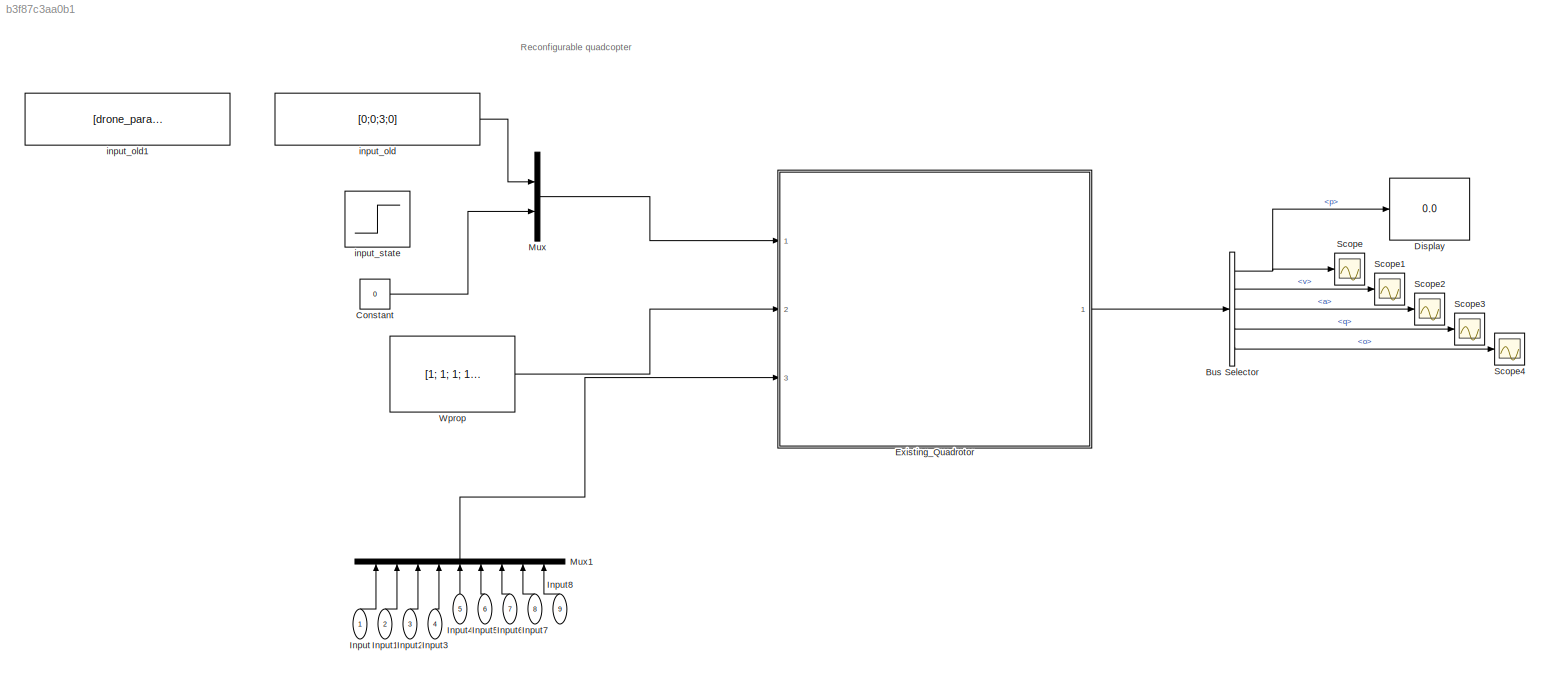
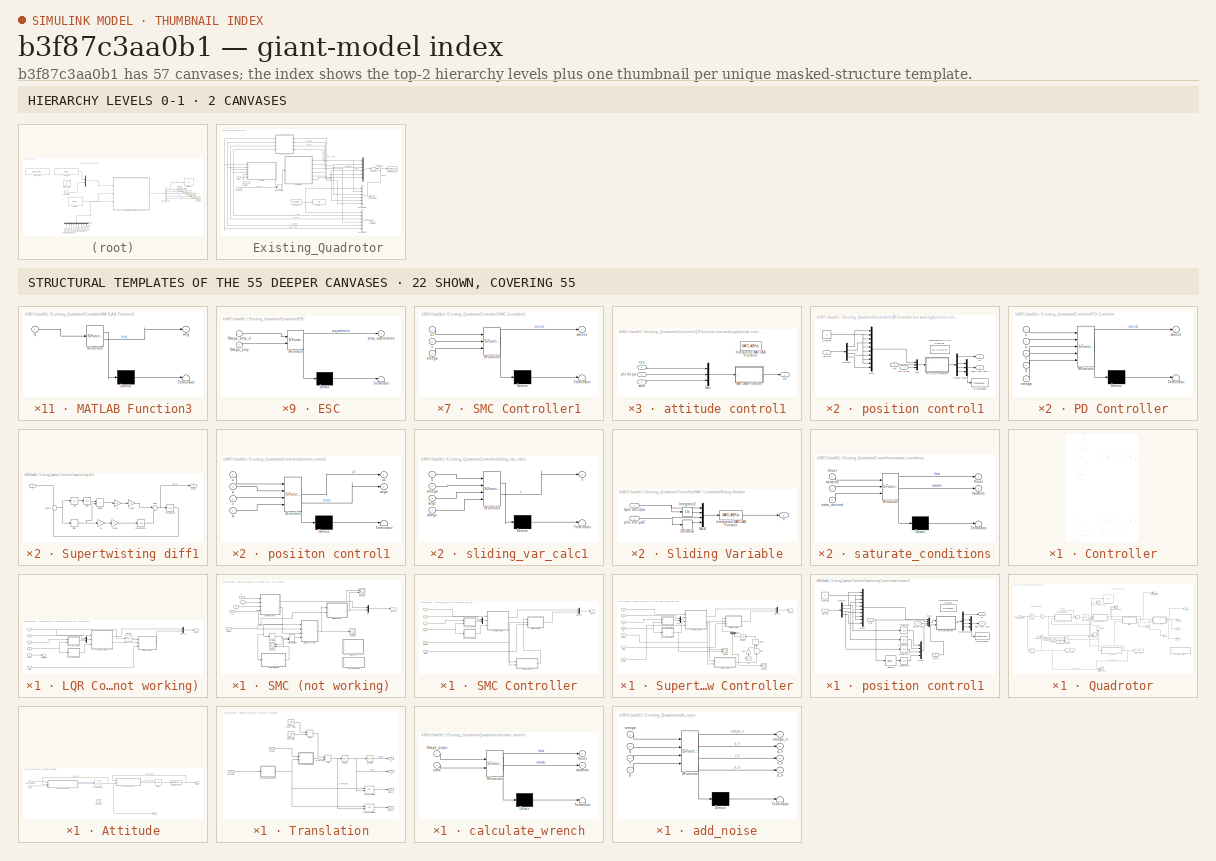
[diagram: thumbnail index - top-2 hierarchy levels (2 canvases) + 22 structural-template representatives of the remaining 55 canvases]
MODEL slx_b3f87c3aa0b1
KIND model
CONFIG AbsTol = auto
CONFIG EnableMultiTasking = off
CONFIG FixedStep = auto
CONFIG MaxStep = auto
CONFIG MinStep = auto
CONFIG RelTol = 1e-3
CONFIG SampleTimeConstraint = Unconstrained
CONFIG SolverName = VariableStepAuto
CONFIG StartTime = 0.0
CONFIG StopTime = tsim
BLOCK [SubSystem]   Existing_Quadrotor
  Ports = [3, 1]
  RequestExecContextInheritance = off
BLOCK [BusCreator]   Existing_Quadrotor/Bus Creator1
  DisplayOption = bar
  InheritFromInputs = off
  Inputs = 6
  OutDataTypeStr = Bus: DroneStateBus
  Ports = [6, 1]
BLOCK [BusCreator]   Existing_Quadrotor/Bus Creator4
  DisplayOption = bar
  InheritFromInputs = off
  Inputs = 6
  OutDataTypeStr = Bus: DroneStateBus
  Ports = [6, 1]
BLOCK [Constant]   Existing_Quadrotor/Constant
  Value = DroneID
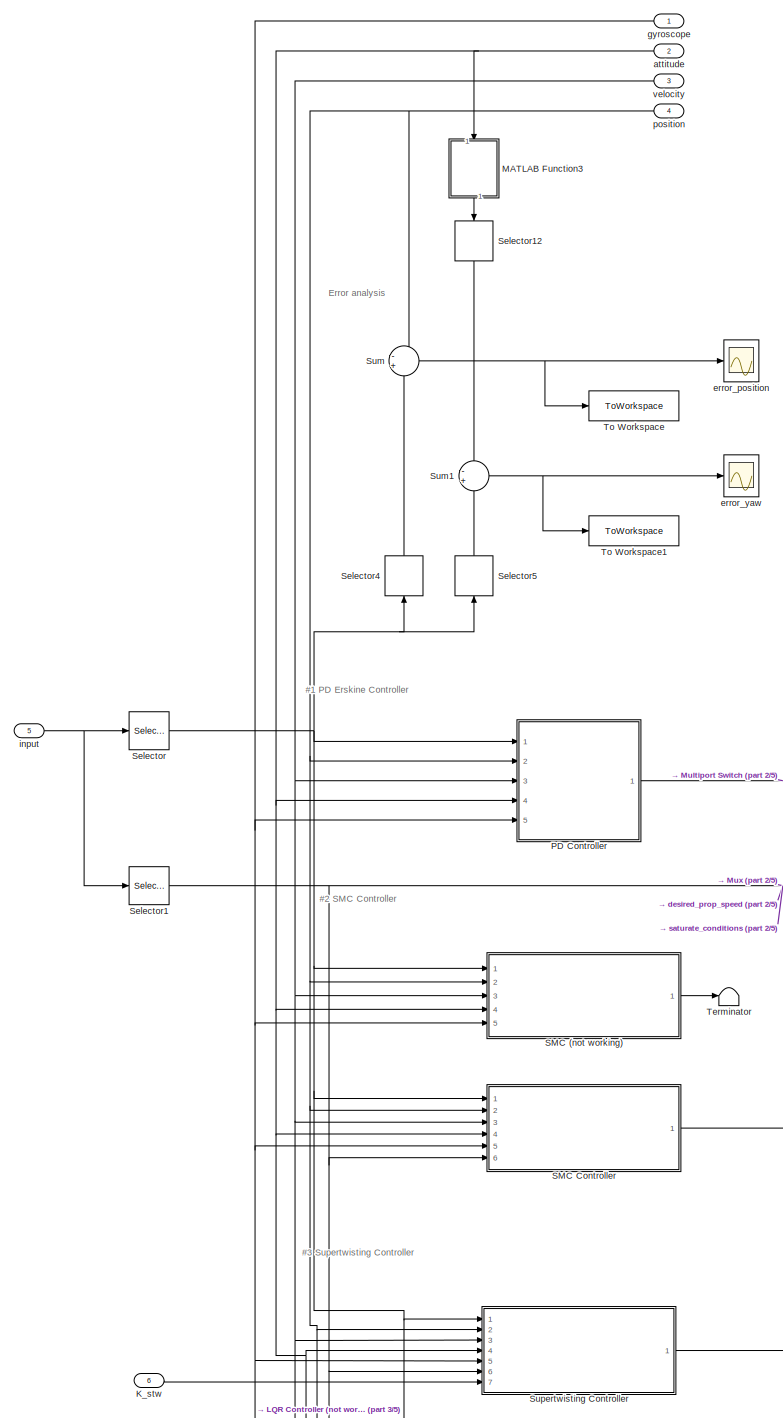
[diagram:   Existing_Quadrotor/Controller - part 1/5, top left region]
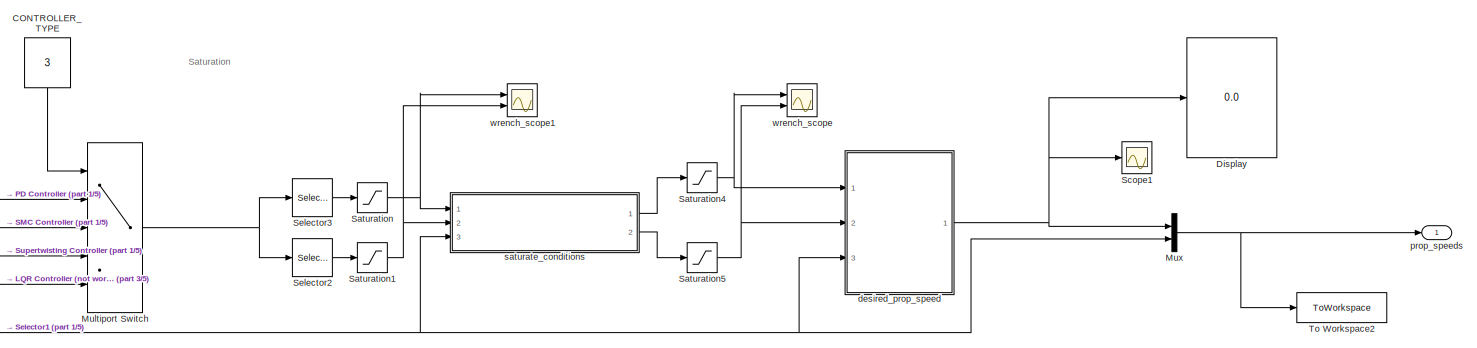
[diagram:   Existing_Quadrotor/Controller - part 2/5, top right region]
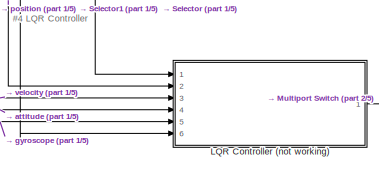
[diagram:   Existing_Quadrotor/Controller - part 3/5, middle left region]
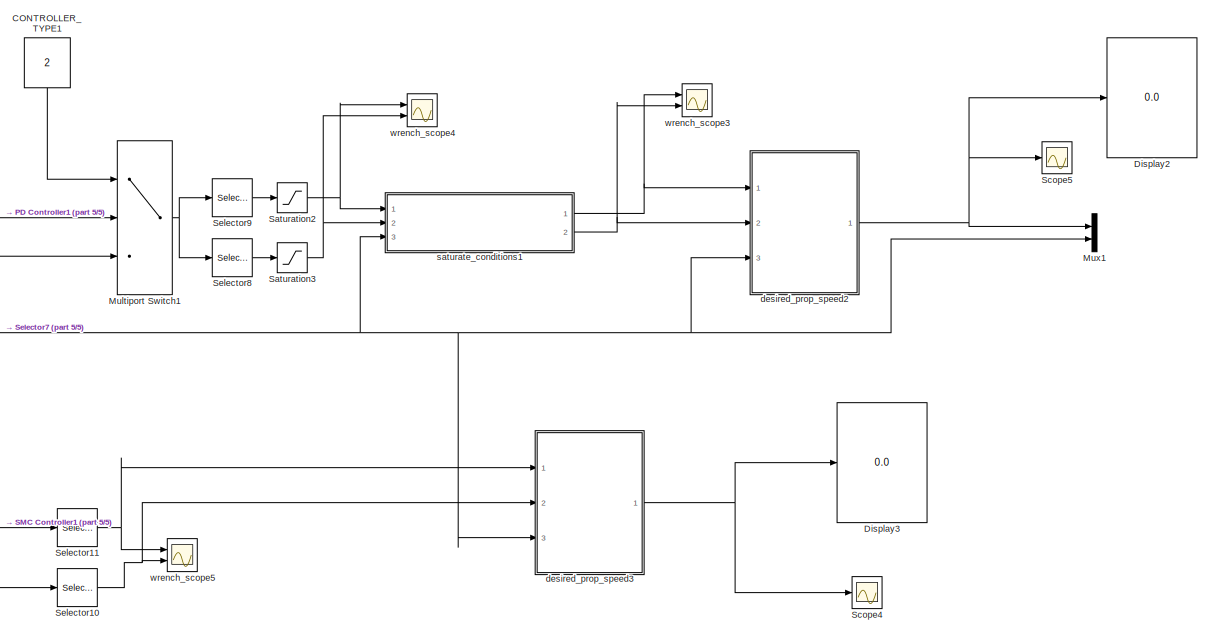
[diagram:   Existing_Quadrotor/Controller - part 4/5, bottom right region]
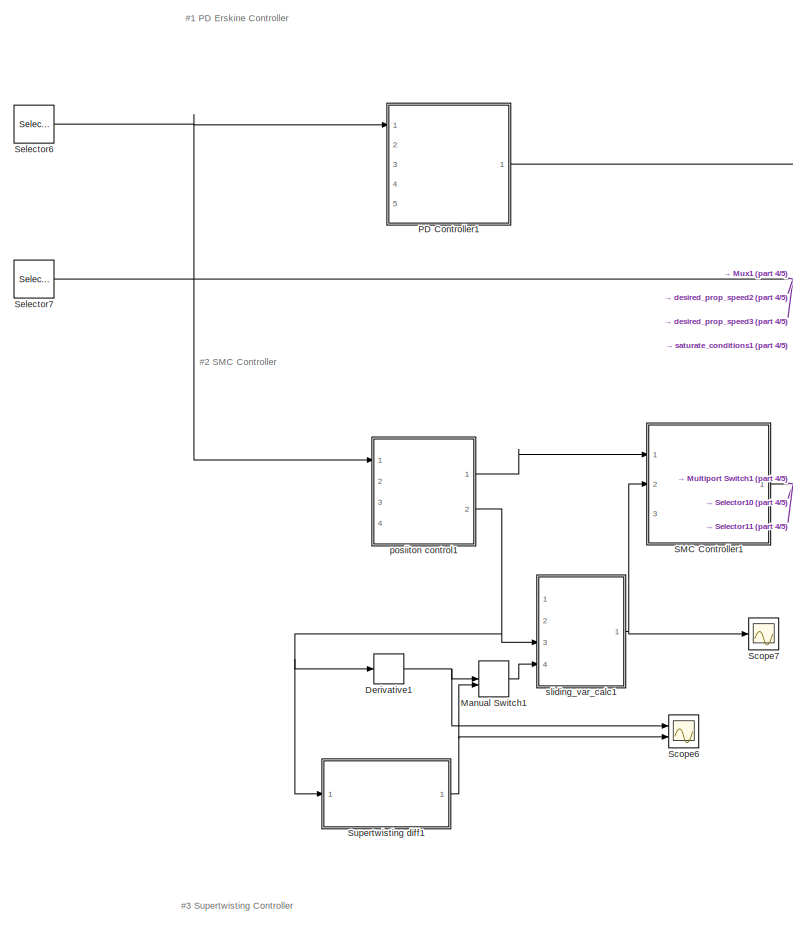
[diagram:   Existing_Quadrotor/Controller - part 5/5, bottom left region]
BLOCK [SubSystem]   Existing_Quadrotor/Controller
  Ports = [6, 1]
  RequestExecContextInheritance = off
BLOCK [Constant]   Existing_Quadrotor/Controller/CONTROLLER_TYPE
  NameLocation = left
  Value = 3
BLOCK [Constant]   Existing_Quadrotor/Controller/CONTROLLER_TYPE1
  Commented = on
  NameLocation = left
  Value = 2
BLOCK [Derivative]   Existing_Quadrotor/Controller/Derivative1
  CoefficientInTFapproximation = 1000
  Commented = on
BLOCK [Display]   Existing_Quadrotor/Controller/Display
  Decimation = 1
  Ports = [1]
BLOCK [Display]   Existing_Quadrotor/Controller/Display2
  Commented = on
  Decimation = 1
  Ports = [1]
BLOCK [Display]   Existing_Quadrotor/Controller/Display3
  Commented = on
  Decimation = 1
  Ports = [1]
BLOCK [Inport]   Existing_Quadrotor/Controller/K_stw
  Port = 6
BLOCK [SubSystem]   Existing_Quadrotor/Controller/LQR Controller (not working)
  Commented = on
  Ports = [6, 1]
  RequestExecContextInheritance = off
BLOCK [SubSystem]   Existing_Quadrotor/Controller/LQR Controller (not working)/MATLAB Function2
  ErrorFcn = Stateflow.Translate.translate
  PermitHierarchicalResolution = ExplicitOnly
  Ports = [2, 1]
  RequestExecContextInheritance = off
  SFBlockType = MATLAB Function
  TreatAsAtomicUnit = on
BLOCK [Demux]   Existing_Quadrotor/Controller/LQR Controller (not working)/MATLAB Function2/ Demux 
  Outputs = 1
  Ports = [1, 1]
BLOCK [S-Function]   Existing_Quadrotor/Controller/LQR Controller (not working)/MATLAB Function2/ SFunction 
  EnableBusSupport = on
  FunctionName = sf_sfun
  PortCounts = [2 2]
  Ports = [2, 2]
  SFcnIsStateOwnerBlock = off
  SFunctionDeploymentMode = off
  Tag = Stateflow S-Function 25
BLOCK [Terminator]   Existing_Quadrotor/Controller/LQR Controller (not working)/MATLAB Function2/ Terminator 
BLOCK [Inport]   Existing_Quadrotor/Controller/LQR Controller (not working)/MATLAB Function2/q
  Port = 2
BLOCK [Outport]   Existing_Quadrotor/Controller/LQR Controller (not working)/MATLAB Function2/v
BLOCK [Inport]   Existing_Quadrotor/Controller/LQR Controller (not working)/MATLAB Function2/v 
BLOCK [SubSystem]   Existing_Quadrotor/Controller/LQR Controller (not working)/MATLAB Function3
  ErrorFcn = Stateflow.Translate.translate
  PermitHierarchicalResolution = ExplicitOnly
  Ports = [1, 1]
  RequestExecContextInheritance = off
  SFBlockType = MATLAB Function
  TreatAsAtomicUnit = on
BLOCK [Demux]   Existing_Quadrotor/Controller/LQR Controller (not working)/MATLAB Function3/ Demux 
  Outputs = 1
  Ports = [1, 1]
BLOCK [S-Function]   Existing_Quadrotor/Controller/LQR Controller (not working)/MATLAB Function3/ SFunction 
  EnableBusSupport = on
  FunctionName = sf_sfun
  PortCounts = [1 2]
  Ports = [1, 2]
  SFcnIsStateOwnerBlock = off
  SFunctionDeploymentMode = off
  Tag = Stateflow S-Function 26
BLOCK [Terminator]   Existing_Quadrotor/Controller/LQR Controller (not working)/MATLAB Function3/ Terminator 
BLOCK [Outport]   Existing_Quadrotor/Controller/LQR Controller (not working)/MATLAB Function3/ang
BLOCK [Inport]   Existing_Quadrotor/Controller/LQR Controller (not working)/MATLAB Function3/q
BLOCK [Mux]   Existing_Quadrotor/Controller/LQR Controller (not working)/Mux2
  DisplayOption = bar
  Inputs = 2
  Ports = [2, 1]
BLOCK [Selector]   Existing_Quadrotor/Controller/LQR Controller (not working)/Selector
  IndexOptions = Index vector (dialog)
  Indices = [1 2 3]
  InputPortWidth = 4
  OutputSizes = 1
  Ports = [1, 1]
BLOCK [Terminator]   Existing_Quadrotor/Controller/LQR Controller (not working)/Terminator
BLOCK [SubSystem]   Existing_Quadrotor/Controller/LQR Controller (not working)/attitude control1
  Ports = [3, 1]
  RequestExecContextInheritance = off
BLOCK [MATLABFcn]   Existing_Quadrotor/Controller/LQR Controller (not working)/attitude control1/Interpreted MATLAB Function
  Commented = on
  MATLABFcn = Twisting_attitude_control(u)
  OutputDimensions = 3
  Ports = [1, 1]
BLOCK [SubSystem]   Existing_Quadrotor/Controller/LQR Controller (not working)/attitude control1/MATLAB Function
  ErrorFcn = Stateflow.Translate.translate
  PermitHierarchicalResolution = ExplicitOnly
  Ports = [1, 1]
  RequestExecContextInheritance = off
  SFBlockType = MATLAB Function
  TreatAsAtomicUnit = on
BLOCK [Demux]   Existing_Quadrotor/Controller/LQR Controller (not working)/attitude control1/MATLAB Function/ Demux 
  Outputs = 1
  Ports = [1, 1]
BLOCK [S-Function]   Existing_Quadrotor/Controller/LQR Controller (not working)/attitude control1/MATLAB Function/ SFunction 
  EnableBusSupport = on
  FunctionName = sf_sfun
  Parameters = DroneID,drone_params
  PortCounts = [1 2]
  Ports = [1, 2]
  SFcnIsStateOwnerBlock = off
  SFunctionDeploymentMode = off
  Tag = Stateflow S-Function 27
BLOCK [Terminator]   Existing_Quadrotor/Controller/LQR Controller (not working)/attitude control1/MATLAB Function/ Terminator 
BLOCK [Outport]   Existing_Quadrotor/Controller/LQR Controller (not working)/attitude control1/MATLAB Function/op
BLOCK [Inport]   Existing_Quadrotor/Controller/LQR Controller (not working)/attitude control1/MATLAB Function/u
BLOCK [Mux]   Existing_Quadrotor/Controller/LQR Controller (not working)/attitude control1/Mux
  DisplayOption = bar
  Inputs = 3
  Ports = [3, 1]
BLOCK [Inport]   Existing_Quadrotor/Controller/LQR Controller (not working)/attitude control1/phi tht psi
  Port = 2
BLOCK [Inport]   Existing_Quadrotor/Controller/LQR Controller (not working)/attitude control1/state
  Port = 3
BLOCK [Outport]   Existing_Quadrotor/Controller/LQR Controller (not working)/attitude control1/u2
BLOCK [Inport]   Existing_Quadrotor/Controller/LQR Controller (not working)/attitude control1/x y z
BLOCK [Inport]   Existing_Quadrotor/Controller/LQR Controller (not working)/omega
  Port = 5
BLOCK [Inport]   Existing_Quadrotor/Controller/LQR Controller (not working)/p
  Port = 2
BLOCK [SubSystem]   Existing_Quadrotor/Controller/LQR Controller (not working)/position control1
  Ports = [3, 2]
  RequestExecContextInheritance = off
BLOCK [Constant]   Existing_Quadrotor/Controller/LQR Controller (not working)/position control1/Constant
  Value = 0
BLOCK [Demux]   Existing_Quadrotor/Controller/LQR Controller (not working)/position control1/Demux
  Ports = [1, 4]
BLOCK [Demux]   Existing_Quadrotor/Controller/LQR Controller (not working)/position control1/Demux1
  Ports = [1, 4]
BLOCK [MATLABFcn]   Existing_Quadrotor/Controller/LQR Controller (not working)/position control1/Interpreted MATLAB Function
  Commented = on
  MATLABFcn = Twisting_position_control(u)
  OutputDimensions = 4
  Ports = [1, 1]
BLOCK [SubSystem]   Existing_Quadrotor/Controller/LQR Controller (not working)/position control1/MATLAB Function
  ErrorFcn = Stateflow.Translate.translate
  PermitHierarchicalResolution = ExplicitOnly
  Ports = [1, 1]
  RequestExecContextInheritance = off
  SFBlockType = MATLAB Function
  TreatAsAtomicUnit = on
BLOCK [Demux]   Existing_Quadrotor/Controller/LQR Controller (not working)/position control1/MATLAB Function/ Demux 
  Outputs = 1
  Ports = [1, 1]
BLOCK [S-Function]   Existing_Quadrotor/Controller/LQR Controller (not working)/position control1/MATLAB Function/ SFunction 
  EnableBusSupport = on
  FunctionName = sf_sfun
  Parameters = DroneID,drone_params,g
  PortCounts = [1 2]
  Ports = [1, 2]
  SFcnIsStateOwnerBlock = off
  SFunctionDeploymentMode = off
  Tag = Stateflow S-Function 28
BLOCK [Terminator]   Existing_Quadrotor/Controller/LQR Controller (not working)/position control1/MATLAB Function/ Terminator 
BLOCK [Outport]   Existing_Quadrotor/Controller/LQR Controller (not working)/position control1/MATLAB Function/op
BLOCK [Inport]   Existing_Quadrotor/Controller/LQR Controller (not working)/position control1/MATLAB Function/u
BLOCK [Mux]   Existing_Quadrotor/Controller/LQR Controller (not working)/position control1/Mux
  DisplayOption = bar
  Inputs = 3
  Ports = [3, 1]
BLOCK [Mux]   Existing_Quadrotor/Controller/LQR Controller (not working)/position control1/Mux1
  DisplayOption = bar
  Inputs = 3
  Ports = [3, 1]
BLOCK [Mux]   Existing_Quadrotor/Controller/LQR Controller (not working)/position control1/Mux2
  DisplayOption = bar
  Inputs = 10
  Ports = [10, 1]
BLOCK [ToWorkspace]   Existing_Quadrotor/Controller/LQR Controller (not working)/position control1/To Workspace
  Commented = on
  FixptAsFi = on
  MaxDataPoints = inf
  Ports = [1]
  SampleTime = -1
  VariableName = angc
BLOCK [Inport]   Existing_Quadrotor/Controller/LQR Controller (not working)/position control1/phi tht psi
  Port = 3
BLOCK [Outport]   Existing_Quadrotor/Controller/LQR Controller (not working)/position control1/phiC thtC psiC
  Port = 2
BLOCK [Inport]   Existing_Quadrotor/Controller/LQR Controller (not working)/position control1/refTraj
BLOCK [Outport]   Existing_Quadrotor/Controller/LQR Controller (not working)/position control1/u1
BLOCK [Inport]   Existing_Quadrotor/Controller/LQR Controller (not working)/position control1/x dx
  Port = 2
BLOCK [Inport]   Existing_Quadrotor/Controller/LQR Controller (not working)/q
  Port = 4
BLOCK [Inport]   Existing_Quadrotor/Controller/LQR Controller (not working)/state
  Port = 6
BLOCK [Inport]   Existing_Quadrotor/Controller/LQR Controller (not working)/u
BLOCK [Inport]   Existing_Quadrotor/Controller/LQR Controller (not working)/v 
  Port = 3
BLOCK [Outport]   Existing_Quadrotor/Controller/LQR Controller (not working)/wrench
BLOCK [Mux]   Existing_Quadrotor/Controller/LQR Controller (not working)/wrench1
  DisplayOption = bar
  Inputs = 2
  Ports = [2, 1]
BLOCK [SubSystem]   Existing_Quadrotor/Controller/MATLAB Function3
  ErrorFcn = Stateflow.Translate.translate
  NameLocation = left
  PermitHierarchicalResolution = ExplicitOnly
  Ports = [1, 1]
  RequestExecContextInheritance = off
  SFBlockType = MATLAB Function
  TreatAsAtomicUnit = on
BLOCK [Demux]   Existing_Quadrotor/Controller/MATLAB Function3/ Demux 
  Outputs = 1
  Ports = [1, 1]
BLOCK [S-Function]   Existing_Quadrotor/Controller/MATLAB Function3/ SFunction 
  EnableBusSupport = on
  FunctionName = sf_sfun
  PortCounts = [1 2]
  Ports = [1, 2]
  SFcnIsStateOwnerBlock = off
  SFunctionDeploymentMode = off
  Tag = Stateflow S-Function 24
BLOCK [Terminator]   Existing_Quadrotor/Controller/MATLAB Function3/ Terminator 
BLOCK [Outport]   Existing_Quadrotor/Controller/MATLAB Function3/ang
BLOCK [Inport]   Existing_Quadrotor/Controller/MATLAB Function3/q
BLOCK [ManualSwitch]   Existing_Quadrotor/Controller/Manual Switch1
  Commented = on
BLOCK [MultiPortSwitch]   Existing_Quadrotor/Controller/Multiport Switch
  InputSameDT = off
  Inputs = 4
  Ports = [5, 1]
  SaturateOnIntegerOverflow = off
BLOCK [MultiPortSwitch]   Existing_Quadrotor/Controller/Multiport Switch1
  Commented = on
  InputSameDT = off
  Inputs = 2
  Ports = [3, 1]
  SaturateOnIntegerOverflow = off
BLOCK [Mux]   Existing_Quadrotor/Controller/Mux
  DisplayOption = bar
  Inputs = 2
  Ports = [2, 1]
BLOCK [Mux]   Existing_Quadrotor/Controller/Mux1
  Commented = on
  DisplayOption = bar
  Inputs = 2
  Ports = [2, 1]
BLOCK [SubSystem]   Existing_Quadrotor/Controller/PD Controller
  Commented = on
  ErrorFcn = Stateflow.Translate.translate
  PermitHierarchicalResolution = ExplicitOnly
  Ports = [5, 1]
  RequestExecContextInheritance = off
  SFBlockType = MATLAB Function
  TreatAsAtomicUnit = on
BLOCK [Demux]   Existing_Quadrotor/Controller/PD Controller/ Demux 
  Outputs = 1
  Ports = [1, 1]
BLOCK [S-Function]   Existing_Quadrotor/Controller/PD Controller/ SFunction 
  EnableBusSupport = on
  FunctionName = sf_sfun
  Parameters = DroneID,control_type_param,drone_params,g
  PortCounts = [5 2]
  Ports = [5, 2]
  SFcnIsStateOwnerBlock = off
  SFunctionDeploymentMode = off
  Tag = Stateflow S-Function 77
BLOCK [Terminator]   Existing_Quadrotor/Controller/PD Controller/ Terminator 
BLOCK [Inport]   Existing_Quadrotor/Controller/PD Controller/omega
  Port = 5
BLOCK [Inport]   Existing_Quadrotor/Controller/PD Controller/p
  Port = 2
BLOCK [Inport]   Existing_Quadrotor/Controller/PD Controller/q
  Port = 4
BLOCK [Inport]   Existing_Quadrotor/Controller/PD Controller/u
BLOCK [Inport]   Existing_Quadrotor/Controller/PD Controller/v
  Port = 3
BLOCK [Outport]   Existing_Quadrotor/Controller/PD Controller/wrench
BLOCK [SubSystem]   Existing_Quadrotor/Controller/PD Controller1
  Commented = on
  ErrorFcn = Stateflow.Translate.translate
  PermitHierarchicalResolution = ExplicitOnly
  Ports = [5, 1]
  RequestExecContextInheritance = off
  SFBlockType = MATLAB Function
  TreatAsAtomicUnit = on
BLOCK [Demux]   Existing_Quadrotor/Controller/PD Controller1/ Demux 
  Outputs = 1
  Ports = [1, 1]
BLOCK [S-Function]   Existing_Quadrotor/Controller/PD Controller1/ SFunction 
  EnableBusSupport = on
  FunctionName = sf_sfun
  Parameters = DroneID,control_type_param,drone_params,g
  PortCounts = [5 2]
  Ports = [5, 2]
  SFcnIsStateOwnerBlock = off
  SFunctionDeploymentMode = off
  Tag = Stateflow S-Function 8
BLOCK [Terminator]   Existing_Quadrotor/Controller/PD Controller1/ Terminator 
BLOCK [Inport]   Existing_Quadrotor/Controller/PD Controller1/omega
  Port = 5
BLOCK [Inport]   Existing_Quadrotor/Controller/PD Controller1/p
  Port = 2
BLOCK [Inport]   Existing_Quadrotor/Controller/PD Controller1/q
  Port = 4
BLOCK [Inport]   Existing_Quadrotor/Controller/PD Controller1/u
BLOCK [Inport]   Existing_Quadrotor/Controller/PD Controller1/v
  Port = 3
BLOCK [Outport]   Existing_Quadrotor/Controller/PD Controller1/wrench
BLOCK [SubSystem]   Existing_Quadrotor/Controller/SMC (not working)
  Commented = on
  Ports = [5, 1]
  RequestExecContextInheritance = off
BLOCK [Derivative]   Existing_Quadrotor/Controller/SMC (not working)/Derivative
  CoefficientInTFapproximation = 1000
BLOCK [SubSystem]   Existing_Quadrotor/Controller/SMC (not working)/MATLAB Function
  Commented = on
  ErrorFcn = Stateflow.Translate.translate
  PermitHierarchicalResolution = ExplicitOnly
  Ports = [2, 1]
  RequestExecContextInheritance = off
  SFBlockType = MATLAB Function
  TreatAsAtomicUnit = on
BLOCK [Demux]   Existing_Quadrotor/Controller/SMC (not working)/MATLAB Function/ Demux 
  Outputs = 1
  Ports = [1, 1]
BLOCK [S-Function]   Existing_Quadrotor/Controller/SMC (not working)/MATLAB Function/ SFunction 
  EnableBusSupport = on
  FunctionName = sf_sfun
  PortCounts = [2 2]
  Ports = [2, 2]
  SFcnIsStateOwnerBlock = off
  SFunctionDeploymentMode = off
  Tag = Stateflow S-Function 16
BLOCK [Terminator]   Existing_Quadrotor/Controller/SMC (not working)/MATLAB Function/ Terminator 
BLOCK [Inport]   Existing_Quadrotor/Controller/SMC (not working)/MATLAB Function/omega
  Port = 2
BLOCK [Inport]   Existing_Quadrotor/Controller/SMC (not working)/MATLAB Function/q
BLOCK [Outport]   Existing_Quadrotor/Controller/SMC (not working)/MATLAB Function/qd
BLOCK [ManualSwitch]   Existing_Quadrotor/Controller/SMC (not working)/Manual Switch
BLOCK [Scope]   Existing_Quadrotor/Controller/SMC (not working)/Scope2
  Floating = off
  NumInputPorts = 2
  Ports = [2]
  ScopeSpecificationString = Simulink.scopes.TimeScopeBlockCfg('CurrentConfiguration', extmgr.ConfigurationSet(extmgr.Configuration('Core','General UI',true),extmgr.Configuration('Core','Source UI',true),extmgr.Configuration('Sources','WiredSimulink',true,'DataLoggingVariableName','ScopeData1'),extmgr.Configuration('Visuals','Time Domain',true,'SerializedDisplays',{struct('MinYLimReal','-125.65509','MaxYLimReal','114.34899','...<+1674ch>
BLOCK [Scope]   Existing_Quadrotor/Controller/SMC (not working)/Scope3
  Floating = off
  NumInputPorts = 1
  Ports = [1]
  ScopeSpecificationString = Simulink.scopes.TimeScopeBlockCfg('CurrentConfiguration', extmgr.ConfigurationSet(extmgr.Configuration('Core','General UI',true),extmgr.Configuration('Core','Source UI',true),extmgr.Configuration('Sources','WiredSimulink',true,'DataLoggingVariableName','ScopeData1'),extmgr.Configuration('Visuals','Time Domain',true,'SerializedDisplays',{struct('MinYLimReal','-79050676728791.21875','MaxYLimReal','3...<+1553ch>
BLOCK [Scope]   Existing_Quadrotor/Controller/SMC (not working)/Scope8
  Floating = off
  NumInputPorts = 2
  Ports = [2]
  ScopeSpecificationString = Simulink.scopes.TimeScopeBlockCfg('CurrentConfiguration', extmgr.ConfigurationSet(extmgr.Configuration('Core','General UI',true),extmgr.Configuration('Core','Source UI',true),extmgr.Configuration('Sources','WiredSimulink',true,'DataLoggingVariableName','ScopeData8'),extmgr.Configuration('Visuals','Time Domain',true,'SerializedDisplays',{struct('MinYLimReal','4.92117','MaxYLimReal','5.56365','YLabe...<+2093ch>
BLOCK [SubSystem]   Existing_Quadrotor/Controller/SMC (not working)/Supertwisting diff
  Ports = [1, 1]
  RequestExecContextInheritance = off
BLOCK [Abs]   Existing_Quadrotor/Controller/SMC (not working)/Supertwisting diff/Abs
  SaturateOnIntegerOverflow = off
BLOCK [Product]   Existing_Quadrotor/Controller/SMC (not working)/Supertwisting diff/Divide
  Ports = [2, 1]
BLOCK [Gain]   Existing_Quadrotor/Controller/SMC (not working)/Supertwisting diff/Gain1
  Gain = -1
BLOCK [Gain]   Existing_Quadrotor/Controller/SMC (not working)/Supertwisting diff/Gain2
  Gain = -1
BLOCK [Integrator]   Existing_Quadrotor/Controller/SMC (not working)/Supertwisting diff/Integrator
  InitialCondition = [0;0;0]
  Ports = [1, 1]
BLOCK [Integrator]   Existing_Quadrotor/Controller/SMC (not working)/Supertwisting diff/Integrator1
  InitialCondition = [0;0;0]
  Ports = [1, 1]
BLOCK [Gain]   Existing_Quadrotor/Controller/SMC (not working)/Supertwisting diff/K1
  Gain = 1.5
BLOCK [Gain]   Existing_Quadrotor/Controller/SMC (not working)/Supertwisting diff/K2
BLOCK [Signum]   Existing_Quadrotor/Controller/SMC (not working)/Supertwisting diff/Sign
BLOCK [Sqrt]   Existing_Quadrotor/Controller/SMC (not working)/Supertwisting diff/Sqrt
BLOCK [Sum]   Existing_Quadrotor/Controller/SMC (not working)/Supertwisting diff/Sum
  Inputs = |++
  Ports = [2, 1]
BLOCK [Sum]   Existing_Quadrotor/Controller/SMC (not working)/Supertwisting diff/Sum1
  Inputs = -+
  Ports = [2, 1]
BLOCK [Outport]   Existing_Quadrotor/Controller/SMC (not working)/Supertwisting diff/du//dt
BLOCK [Inport]   Existing_Quadrotor/Controller/SMC (not working)/Supertwisting diff/u
BLOCK [SubSystem]   Existing_Quadrotor/Controller/SMC (not working)/attitude control
  ErrorFcn = Stateflow.Translate.translate
  PermitHierarchicalResolution = ExplicitOnly
  Ports = [2, 1]
  RequestExecContextInheritance = off
  SFBlockType = MATLAB Function
  TreatAsAtomicUnit = on
BLOCK [Demux]   Existing_Quadrotor/Controller/SMC (not working)/attitude control/ Demux 
  Outputs = 1
  Ports = [1, 1]
BLOCK [S-Function]   Existing_Quadrotor/Controller/SMC (not working)/attitude control/ SFunction 
  EnableBusSupport = on
  FunctionName = sf_sfun
  Parameters = DroneID,drone_params
  PortCounts = [2 2]
  Ports = [2, 2]
  SFcnIsStateOwnerBlock = off
  SFunctionDeploymentMode = off
  Tag = Stateflow S-Function 3
BLOCK [Terminator]   Existing_Quadrotor/Controller/SMC (not working)/attitude control/ Terminator 
BLOCK [Inport]   Existing_Quadrotor/Controller/SMC (not working)/attitude control/omega
  Port = 2
BLOCK [Inport]   Existing_Quadrotor/Controller/SMC (not working)/attitude control/s
BLOCK [Outport]   Existing_Quadrotor/Controller/SMC (not working)/attitude control/u2
BLOCK [Mux]   Existing_Quadrotor/Controller/SMC (not working)/fm
  DisplayOption = bar
  Inputs = 2
  Ports = [2, 1]
BLOCK [Inport]   Existing_Quadrotor/Controller/SMC (not working)/omega
  Port = 5
BLOCK [Inport]   Existing_Quadrotor/Controller/SMC (not working)/p
  Port = 2
BLOCK [SubSystem]   Existing_Quadrotor/Controller/SMC (not working)/position control
  ErrorFcn = Stateflow.Translate.translate
  PermitHierarchicalResolution = ExplicitOnly
  Ports = [4, 2]
  RequestExecContextInheritance = off
  SFBlockType = MATLAB Function
  TreatAsAtomicUnit = on
BLOCK [Demux]   Existing_Quadrotor/Controller/SMC (not working)/position control/ Demux 
  Outputs = 1
  Ports = [1, 1]
BLOCK [S-Function]   Existing_Quadrotor/Controller/SMC (not working)/position control/ SFunction 
  EnableBusSupport = on
  FunctionName = sf_sfun
  Parameters = DroneID,drone_params,g
  PortCounts = [4 3]
  Ports = [4, 3]
  SFcnIsStateOwnerBlock = off
  SFunctionDeploymentMode = off
  Tag = Stateflow S-Function 4
BLOCK [Terminator]   Existing_Quadrotor/Controller/SMC (not working)/position control/ Terminator 
BLOCK [Outport]   Existing_Quadrotor/Controller/SMC (not working)/position control/angc
  Port = 2
BLOCK [Inport]   Existing_Quadrotor/Controller/SMC (not working)/position control/p
  Port = 2
BLOCK [Inport]   Existing_Quadrotor/Controller/SMC (not working)/position control/q
  Port = 4
BLOCK [Inport]   Existing_Quadrotor/Controller/SMC (not working)/position control/u
BLOCK [Outport]   Existing_Quadrotor/Controller/SMC (not working)/position control/u1
BLOCK [Inport]   Existing_Quadrotor/Controller/SMC (not working)/position control/v
  Port = 3
BLOCK [Inport]   Existing_Quadrotor/Controller/SMC (not working)/q
  Port = 4
BLOCK [SubSystem]   Existing_Quadrotor/Controller/SMC (not working)/sliding_var_calc
  ErrorFcn = Stateflow.Translate.translate
  PermitHierarchicalResolution = ExplicitOnly
  Ports = [4, 1]
  RequestExecContextInheritance = off
  SFBlockType = MATLAB Function
  TreatAsAtomicUnit = on
BLOCK [Demux]   Existing_Quadrotor/Controller/SMC (not working)/sliding_var_calc/ Demux 
  Outputs = 1
  Ports = [1, 1]
BLOCK [S-Function]   Existing_Quadrotor/Controller/SMC (not working)/sliding_var_calc/ SFunction 
  EnableBusSupport = on
  FunctionName = sf_sfun
  PortCounts = [4 2]
  Ports = [4, 2]
  SFcnIsStateOwnerBlock = off
  SFunctionDeploymentMode = off
  Tag = Stateflow S-Function 6
BLOCK [Terminator]   Existing_Quadrotor/Controller/SMC (not working)/sliding_var_calc/ Terminator 
BLOCK [Inport]   Existing_Quadrotor/Controller/SMC (not working)/sliding_var_calc/angc
  Port = 3
BLOCK [Inport]   Existing_Quadrotor/Controller/SMC (not working)/sliding_var_calc/dangc
  Port = 4
BLOCK [Inport]   Existing_Quadrotor/Controller/SMC (not working)/sliding_var_calc/omega
  Port = 2
BLOCK [Inport]   Existing_Quadrotor/Controller/SMC (not working)/sliding_var_calc/q
BLOCK [Outport]   Existing_Quadrotor/Controller/SMC (not working)/sliding_var_calc/s
BLOCK [SubSystem]   Existing_Quadrotor/Controller/SMC (not working)/to wrench
  Commented = on
  ErrorFcn = Stateflow.Translate.translate
  PermitHierarchicalResolution = ExplicitOnly
  Ports = [3, 1]
  RequestExecContextInheritance = off
  SFBlockType = MATLAB Function
  TreatAsAtomicUnit = on
BLOCK [Demux]   Existing_Quadrotor/Controller/SMC (not working)/to wrench/ Demux 
  Outputs = 1
  Ports = [1, 1]
BLOCK [S-Function]   Existing_Quadrotor/Controller/SMC (not working)/to wrench/ SFunction 
  EnableBusSupport = on
  FunctionName = sf_sfun
  Parameters = DroneID,drone_params
  PortCounts = [3 2]
  Ports = [3, 2]
  SFcnIsStateOwnerBlock = off
  SFunctionDeploymentMode = off
  Tag = Stateflow S-Function 15
BLOCK [Terminator]   Existing_Quadrotor/Controller/SMC (not working)/to wrench/ Terminator 
BLOCK [Inport]   Existing_Quadrotor/Controller/SMC (not working)/to wrench/state
  Port = 3
BLOCK [Inport]   Existing_Quadrotor/Controller/SMC (not working)/to wrench/u1
BLOCK [Inport]   Existing_Quadrotor/Controller/SMC (not working)/to wrench/u2
  Port = 2
BLOCK [Outport]   Existing_Quadrotor/Controller/SMC (not working)/to wrench/wrench
BLOCK [Inport]   Existing_Quadrotor/Controller/SMC (not working)/u
BLOCK [Inport]   Existing_Quadrotor/Controller/SMC (not working)/v
  Port = 3
BLOCK [Outport]   Existing_Quadrotor/Controller/SMC (not working)/wrench
BLOCK [SubSystem]   Existing_Quadrotor/Controller/SMC Controller
  Commented = on
  Ports = [6, 1]
  RequestExecContextInheritance = off
BLOCK [SubSystem]   Existing_Quadrotor/Controller/SMC Controller/MATLAB Function2
  ErrorFcn = Stateflow.Translate.translate
  PermitHierarchicalResolution = ExplicitOnly
  Ports = [2, 1]
  RequestExecContextInheritance = off
  SFBlockType = MATLAB Function
  TreatAsAtomicUnit = on
BLOCK [Demux]   Existing_Quadrotor/Controller/SMC Controller/MATLAB Function2/ Demux 
  Outputs = 1
  Ports = [1, 1]
BLOCK [S-Function]   Existing_Quadrotor/Controller/SMC Controller/MATLAB Function2/ SFunction 
  EnableBusSupport = on
  FunctionName = sf_sfun
  PortCounts = [2 2]
  Ports = [2, 2]
  SFcnIsStateOwnerBlock = off
  SFunctionDeploymentMode = off
  Tag = Stateflow S-Function 18
BLOCK [Terminator]   Existing_Quadrotor/Controller/SMC Controller/MATLAB Function2/ Terminator 
BLOCK [Inport]   Existing_Quadrotor/Controller/SMC Controller/MATLAB Function2/q
  Port = 2
BLOCK [Outport]   Existing_Quadrotor/Controller/SMC Controller/MATLAB Function2/v
BLOCK [Inport]   Existing_Quadrotor/Controller/SMC Controller/MATLAB Function2/v 
BLOCK [SubSystem]   Existing_Quadrotor/Controller/SMC Controller/MATLAB Function3
  ErrorFcn = Stateflow.Translate.translate
  PermitHierarchicalResolution = ExplicitOnly
  Ports = [1, 1]
  RequestExecContextInheritance = off
  SFBlockType = MATLAB Function
  TreatAsAtomicUnit = on
BLOCK [Demux]   Existing_Quadrotor/Controller/SMC Controller/MATLAB Function3/ Demux 
  Outputs = 1
  Ports = [1, 1]
BLOCK [S-Function]   Existing_Quadrotor/Controller/SMC Controller/MATLAB Function3/ SFunction 
  EnableBusSupport = on
  FunctionName = sf_sfun
  PortCounts = [1 2]
  Ports = [1, 2]
  SFcnIsStateOwnerBlock = off
  SFunctionDeploymentMode = off
  Tag = Stateflow S-Function 19
BLOCK [Terminator]   Existing_Quadrotor/Controller/SMC Controller/MATLAB Function3/ Terminator 
BLOCK [Outport]   Existing_Quadrotor/Controller/SMC Controller/MATLAB Function3/ang
BLOCK [Inport]   Existing_Quadrotor/Controller/SMC Controller/MATLAB Function3/q
BLOCK [Mux]   Existing_Quadrotor/Controller/SMC Controller/Mux2
  DisplayOption = bar
  Inputs = 2
  Ports = [2, 1]
BLOCK [SubSystem]   Existing_Quadrotor/Controller/SMC Controller/Sliding Variable
  Ports = [2, 1]
  RequestExecContextInheritance = off
BLOCK [Derivative]   Existing_Quadrotor/Controller/SMC Controller/Sliding Variable/Derivative
BLOCK [Integrator]   Existing_Quadrotor/Controller/SMC Controller/Sliding Variable/Integrator2
  NameLocation = top
  Ports = [1, 1]
BLOCK [MATLABFcn]   Existing_Quadrotor/Controller/SMC Controller/Sliding Variable/Interpreted MATLAB Function
  MATLABFcn = SMC_sliding_var(u)
  OutputDimensions = 3
  Ports = [1, 1]
BLOCK [Mux]   Existing_Quadrotor/Controller/SMC Controller/Sliding Variable/Mux2
  DisplayOption = bar
  Ports = [4, 1]
BLOCK [Inport]   Existing_Quadrotor/Controller/SMC Controller/Sliding Variable/dphi dtht dpsi
  Port = 2
BLOCK [Inport]   Existing_Quadrotor/Controller/SMC Controller/Sliding Variable/phiC thtC psiC
BLOCK [Outport]   Existing_Quadrotor/Controller/SMC Controller/Sliding Variable/s
BLOCK [SubSystem]   Existing_Quadrotor/Controller/SMC Controller/attitude control1
  Ports = [3, 1]
  RequestExecContextInheritance = off
BLOCK [MATLABFcn]   Existing_Quadrotor/Controller/SMC Controller/attitude control1/Interpreted MATLAB Function
  Commented = on
  MATLABFcn = SMC_attitude_control(u)
  OutputDimensions = 3
  Ports = [1, 1]
BLOCK [SubSystem]   Existing_Quadrotor/Controller/SMC Controller/attitude control1/MATLAB Function
  ErrorFcn = Stateflow.Translate.translate
  PermitHierarchicalResolution = ExplicitOnly
  Ports = [1, 1]
  RequestExecContextInheritance = off
  SFBlockType = MATLAB Function
  TreatAsAtomicUnit = on
BLOCK [Demux]   Existing_Quadrotor/Controller/SMC Controller/attitude control1/MATLAB Function/ Demux 
  Outputs = 1
  Ports = [1, 1]
BLOCK [S-Function]   Existing_Quadrotor/Controller/SMC Controller/attitude control1/MATLAB Function/ SFunction 
  EnableBusSupport = on
  FunctionName = sf_sfun
  Parameters = DroneID,drone_params
  PortCounts = [1 2]
  Ports = [1, 2]
  SFcnIsStateOwnerBlock = off
  SFunctionDeploymentMode = off
  Tag = Stateflow S-Function 21
BLOCK [Terminator]   Existing_Quadrotor/Controller/SMC Controller/attitude control1/MATLAB Function/ Terminator 
BLOCK [Outport]   Existing_Quadrotor/Controller/SMC Controller/attitude control1/MATLAB Function/op
BLOCK [Inport]   Existing_Quadrotor/Controller/SMC Controller/attitude control1/MATLAB Function/u
BLOCK [Mux]   Existing_Quadrotor/Controller/SMC Controller/attitude control1/Mux
  DisplayOption = bar
  Inputs = 3
  Ports = [3, 1]
BLOCK [Inport]   Existing_Quadrotor/Controller/SMC Controller/attitude control1/dphi dtht dpsi
  Port = 2
BLOCK [Inport]   Existing_Quadrotor/Controller/SMC Controller/attitude control1/s
BLOCK [Inport]   Existing_Quadrotor/Controller/SMC Controller/attitude control1/state
  Port = 3
BLOCK [Outport]   Existing_Quadrotor/Controller/SMC Controller/attitude control1/u2
BLOCK [Inport]   Existing_Quadrotor/Controller/SMC Controller/omega
  Port = 5
BLOCK [Inport]   Existing_Quadrotor/Controller/SMC Controller/p
  Port = 2
BLOCK [SubSystem]   Existing_Quadrotor/Controller/SMC Controller/position control1
  Ports = [3, 2]
  RequestExecContextInheritance = off
BLOCK [Constant]   Existing_Quadrotor/Controller/SMC Controller/position control1/Constant
  Value = 0
BLOCK [Demux]   Existing_Quadrotor/Controller/SMC Controller/position control1/Demux
  Ports = [1, 4]
BLOCK [Demux]   Existing_Quadrotor/Controller/SMC Controller/position control1/Demux1
  Ports = [1, 4]
BLOCK [MATLABFcn]   Existing_Quadrotor/Controller/SMC Controller/position control1/Interpreted MATLAB Function
  Commented = on
  MATLABFcn = SMC_position_control(u)
  OutputDimensions = 4
  Ports = [1, 1]
BLOCK [SubSystem]   Existing_Quadrotor/Controller/SMC Controller/position control1/MATLAB Function
  ErrorFcn = Stateflow.Translate.translate
  PermitHierarchicalResolution = ExplicitOnly
  Ports = [1, 1]
  RequestExecContextInheritance = off
  SFBlockType = MATLAB Function
  TreatAsAtomicUnit = on
BLOCK [Demux]   Existing_Quadrotor/Controller/SMC Controller/position control1/MATLAB Function/ Demux 
  Outputs = 1
  Ports = [1, 1]
BLOCK [S-Function]   Existing_Quadrotor/Controller/SMC Controller/position control1/MATLAB Function/ SFunction 
  EnableBusSupport = on
  FunctionName = sf_sfun
  Parameters = DroneID,drone_params,g
  PortCounts = [1 2]
  Ports = [1, 2]
  SFcnIsStateOwnerBlock = off
  SFunctionDeploymentMode = off
  Tag = Stateflow S-Function 20
BLOCK [Terminator]   Existing_Quadrotor/Controller/SMC Controller/position control1/MATLAB Function/ Terminator 
BLOCK [Outport]   Existing_Quadrotor/Controller/SMC Controller/position control1/MATLAB Function/op
BLOCK [Inport]   Existing_Quadrotor/Controller/SMC Controller/position control1/MATLAB Function/u
BLOCK [Mux]   Existing_Quadrotor/Controller/SMC Controller/position control1/Mux
  DisplayOption = bar
  Inputs = 3
  Ports = [3, 1]
BLOCK [Mux]   Existing_Quadrotor/Controller/SMC Controller/position control1/Mux1
  DisplayOption = bar
  Inputs = 3
  Ports = [3, 1]
BLOCK [Mux]   Existing_Quadrotor/Controller/SMC Controller/position control1/Mux2
  DisplayOption = bar
  Inputs = 10
  Ports = [10, 1]
BLOCK [ToWorkspace]   Existing_Quadrotor/Controller/SMC Controller/position control1/To Workspace
  Commented = on
  FixptAsFi = on
  MaxDataPoints = inf
  Ports = [1]
  SampleTime = -1
  VariableName = angc
BLOCK [Inport]   Existing_Quadrotor/Controller/SMC Controller/position control1/phi tht psi
  Port = 3
BLOCK [Outport]   Existing_Quadrotor/Controller/SMC Controller/position control1/phiC thtC psiC
  Port = 2
BLOCK [Inport]   Existing_Quadrotor/Controller/SMC Controller/position control1/refTraj
BLOCK [Outport]   Existing_Quadrotor/Controller/SMC Controller/position control1/u1
BLOCK [Inport]   Existing_Quadrotor/Controller/SMC Controller/position control1/x dx
  Port = 2
BLOCK [Inport]   Existing_Quadrotor/Controller/SMC Controller/q
  Port = 4
BLOCK [Inport]   Existing_Quadrotor/Controller/SMC Controller/state
  Port = 6
BLOCK [Inport]   Existing_Quadrotor/Controller/SMC Controller/u
BLOCK [Inport]   Existing_Quadrotor/Controller/SMC Controller/v 
  Port = 3
BLOCK [Outport]   Existing_Quadrotor/Controller/SMC Controller/wrench
BLOCK [Mux]   Existing_Quadrotor/Controller/SMC Controller/wrench1
  DisplayOption = bar
  Inputs = 2
  Ports = [2, 1]
BLOCK [SubSystem]   Existing_Quadrotor/Controller/SMC Controller1
  Commented = on
  ErrorFcn = Stateflow.Translate.translate
  PermitHierarchicalResolution = ExplicitOnly
  Ports = [3, 1]
  RequestExecContextInheritance = off
  SFBlockType = MATLAB Function
  TreatAsAtomicUnit = on
BLOCK [Demux]   Existing_Quadrotor/Controller/SMC Controller1/ Demux 
  Outputs = 1
  Ports = [1, 1]
BLOCK [S-Function]   Existing_Quadrotor/Controller/SMC Controller1/ SFunction 
  EnableBusSupport = on
  FunctionName = sf_sfun
  Parameters = DroneID,drone_params
  PortCounts = [3 2]
  Ports = [3, 2]
  SFcnIsStateOwnerBlock = off
  SFunctionDeploymentMode = off
  Tag = Stateflow S-Function 9
BLOCK [Terminator]   Existing_Quadrotor/Controller/SMC Controller1/ Terminator 
BLOCK [Inport]   Existing_Quadrotor/Controller/SMC Controller1/omega
  Port = 3
BLOCK [Inport]   Existing_Quadrotor/Controller/SMC Controller1/s
  Port = 2
BLOCK [Inport]   Existing_Quadrotor/Controller/SMC Controller1/u1
BLOCK [Outport]   Existing_Quadrotor/Controller/SMC Controller1/wrench
BLOCK [Saturate]   Existing_Quadrotor/Controller/Saturation
  Commented = through
  LowerLimit = 3
  UpperLimit = 16
BLOCK [Saturate]   Existing_Quadrotor/Controller/Saturation1
  Commented = through
  LowerLimit = -0.1
  UpperLimit = 0.1
BLOCK [Saturate]   Existing_Quadrotor/Controller/Saturation2
  Commented = on
  LowerLimit = 3
  UpperLimit = 16
BLOCK [Saturate]   Existing_Quadrotor/Controller/Saturation3
  Commented = on
  LowerLimit = -0.1
  UpperLimit = 0.1
BLOCK [Saturate]   Existing_Quadrotor/Controller/Saturation4
  LowerLimit = 3
  UpperLimit = 16
BLOCK [Saturate]   Existing_Quadrotor/Controller/Saturation5
  LowerLimit = -0.1
  UpperLimit = 0.1
BLOCK [Scope]   Existing_Quadrotor/Controller/Scope1
  Floating = off
  NumInputPorts = 1
  Ports = [1]
  ScopeSpecificationString = Simulink.scopes.TimeScopeBlockCfg('CurrentConfiguration', extmgr.ConfigurationSet(extmgr.Configuration('Core','General UI',true),extmgr.Configuration('Core','Source UI',true),extmgr.Configuration('Sources','WiredSimulink',true,'DataLoggingVariableName','ScopeData3'),extmgr.Configuration('Visuals','Time Domain',true,'SerializedDisplays',{struct('MinYLimReal','-172.422','MaxYLimReal','1551.79796','Y...<+1462ch>
BLOCK [Scope]   Existing_Quadrotor/Controller/Scope4
  Commented = on
  Floating = off
  NumInputPorts = 1
  Ports = [1]
  ScopeSpecificationString = Simulink.scopes.TimeScopeBlockCfg('CurrentConfiguration', extmgr.ConfigurationSet(extmgr.Configuration('Core','General UI',true),extmgr.Configuration('Core','Source UI',true),extmgr.Configuration('Sources','WiredSimulink',true,'DataLoggingVariableName','ScopeData1'),extmgr.Configuration('Visuals','Time Domain',true,'SerializedDisplays',{struct('MinYLimReal','-1519.56191','MaxYLimReal','13676.05719...<+1478ch>
BLOCK [Scope]   Existing_Quadrotor/Controller/Scope5
  Commented = on
  Floating = off
  NumInputPorts = 1
  Ports = [1]
  ScopeSpecificationString = Simulink.scopes.TimeScopeBlockCfg('CurrentConfiguration', extmgr.ConfigurationSet(extmgr.Configuration('Core','General UI',true),extmgr.Configuration('Core','Source UI',true),extmgr.Configuration('Sources','WiredSimulink',true,'DataLoggingVariableName','ScopeData2'),extmgr.Configuration('Visuals','Time Domain',true),extmgr.Configuration('Tools','Plot Navigation',true),extmgr.Configuration('Tools',...<+40ch>
BLOCK [Scope]   Existing_Quadrotor/Controller/Scope6
  Commented = on
  Floating = off
  NumInputPorts = 2
  Ports = [2]
  ScopeSpecificationString = Simulink.scopes.TimeScopeBlockCfg('CurrentConfiguration', extmgr.ConfigurationSet(extmgr.Configuration('Core','General UI',true),extmgr.Configuration('Core','Source UI',true),extmgr.Configuration('Sources','WiredSimulink',true,'DataLoggingVariableName','ScopeData3'),extmgr.Configuration('Visuals','Time Domain',true,'SerializedDisplays',{struct('MinYLimReal','-31.4709','MaxYLimReal','14.8552','YLab...<+1410ch>
BLOCK [Scope]   Existing_Quadrotor/Controller/Scope7
  Commented = on
  Floating = off
  NumInputPorts = 1
  Ports = [1]
  ScopeSpecificationString = Simulink.scopes.TimeScopeBlockCfg('CurrentConfiguration', extmgr.ConfigurationSet(extmgr.Configuration('Core','General UI',true),extmgr.Configuration('Core','Source UI',true),extmgr.Configuration('Sources','WiredSimulink',true,'DataLoggingVariableName','ScopeData4'),extmgr.Configuration('Visuals','Time Domain',true,'SerializedDisplays',{struct('MinYLimReal','-79050676728791.21875','MaxYLimReal','3...<+1553ch>
BLOCK [Selector]   Existing_Quadrotor/Controller/Selector
  IndexOptions = Index vector (dialog)
  Indices = [1 2 3 4]
  InputPortWidth = 5
  OutputSizes = 1
  Ports = [1, 1]
BLOCK [Selector]   Existing_Quadrotor/Controller/Selector1
  IndexOptions = Index vector (dialog)
  Indices = [5]
  InputPortWidth = 5
  OutputSizes = 1
  Ports = [1, 1]
BLOCK [Selector]   Existing_Quadrotor/Controller/Selector10
  Commented = on
  IndexOptions = Index vector (dialog)
  Indices = [2 3 4]
  InputPortWidth = 4
  OutputSizes = 1
  Ports = [1, 1]
BLOCK [Selector]   Existing_Quadrotor/Controller/Selector11
  Commented = on
  IndexOptions = Index vector (dialog)
  Indices = [1]
  InputPortWidth = 4
  OutputSizes = 1
  Ports = [1, 1]
BLOCK [Selector]   Existing_Quadrotor/Controller/Selector12
  IndexOptions = Index vector (dialog)
  Indices = [3]
  InputPortWidth = 3
  NameLocation = left
  OutputSizes = 1
  Ports = [1, 1]
BLOCK [Selector]   Existing_Quadrotor/Controller/Selector2
  IndexOptions = Index vector (dialog)
  Indices = [2 3 4]
  InputPortWidth = 4
  OutputSizes = 1
  Ports = [1, 1]
BLOCK [Selector]   Existing_Quadrotor/Controller/Selector3
  IndexOptions = Index vector (dialog)
  Indices = [1]
  InputPortWidth = 4
  OutputSizes = 1
  Ports = [1, 1]
BLOCK [Selector]   Existing_Quadrotor/Controller/Selector4
  IndexOptions = Index vector (dialog)
  Indices = [1 2 3]
  InputPortWidth = 4
  NameLocation = right
  OutputSizes = 1
  Ports = [1, 1]
BLOCK [Selector]   Existing_Quadrotor/Controller/Selector5
  IndexOptions = Index vector (dialog)
  Indices = [4]
  InputPortWidth = 4
  NameLocation = right
  OutputSizes = 1
  Ports = [1, 1]
BLOCK [Selector]   Existing_Quadrotor/Controller/Selector6
  Commented = on
  IndexOptions = Index vector (dialog)
  Indices = [1 2 3 4]
  InputPortWidth = 5
  OutputSizes = 1
  Ports = [1, 1]
BLOCK [Selector]   Existing_Quadrotor/Controller/Selector7
  Commented = on
  IndexOptions = Index vector (dialog)
  Indices = [5]
  InputPortWidth = 5
  OutputSizes = 1
  Ports = [1, 1]
BLOCK [Selector]   Existing_Quadrotor/Controller/Selector8
  Commented = on
  IndexOptions = Index vector (dialog)
  Indices = [2 3 4]
  InputPortWidth = 4
  OutputSizes = 1
  Ports = [1, 1]
BLOCK [Selector]   Existing_Quadrotor/Controller/Selector9
  Commented = on
  IndexOptions = Index vector (dialog)
  Indices = [1]
  InputPortWidth = 4
  OutputSizes = 1
  Ports = [1, 1]
BLOCK [Sum]   Existing_Quadrotor/Controller/Sum
  Inputs = -+
  Ports = [2, 1]
BLOCK [Sum]   Existing_Quadrotor/Controller/Sum1
  Inputs = -+
  Ports = [2, 1]
BLOCK [SubSystem]   Existing_Quadrotor/Controller/Supertwisting Controller
  Ports = [7, 1]
  RequestExecContextInheritance = off
BLOCK [Product]   Existing_Quadrotor/Controller/Supertwisting Controller/Divide
  Multiplication = Matrix(*)
  NameLocation = right
  Ports = [2, 1]
BLOCK [Gain]   Existing_Quadrotor/Controller/Supertwisting Controller/Gain
  Gain = -1
  NameLocation = right
BLOCK [Integrator]   Existing_Quadrotor/Controller/Supertwisting Controller/Integrator
  Ports = [1, 1]
BLOCK [Constant]   Existing_Quadrotor/Controller/Supertwisting Controller/K2
  NameLocation = left
  Value = diag([k21_attitude_stw k22_attitude_stw k23_attitude_stw])
BLOCK [Inport]   Existing_Quadrotor/Controller/Supertwisting Controller/K_stw
  Port = 7
BLOCK [SubSystem]   Existing_Quadrotor/Controller/Supertwisting Controller/MATLAB Function2
  ErrorFcn = Stateflow.Translate.translate
  PermitHierarchicalResolution = ExplicitOnly
  Ports = [2, 1]
  RequestExecContextInheritance = off
  SFBlockType = MATLAB Function
  TreatAsAtomicUnit = on
BLOCK [Demux]   Existing_Quadrotor/Controller/Supertwisting Controller/MATLAB Function2/ Demux 
  Outputs = 1
  Ports = [1, 1]
BLOCK [S-Function]   Existing_Quadrotor/Controller/Supertwisting Controller/MATLAB Function2/ SFunction 
  EnableBusSupport = on
  FunctionName = sf_sfun
  PortCounts = [2 2]
  Ports = [2, 2]
  SFcnIsStateOwnerBlock = off
  SFunctionDeploymentMode = off
  Tag = Stateflow S-Function 7
BLOCK [Terminator]   Existing_Quadrotor/Controller/Supertwisting Controller/MATLAB Function2/ Terminator 
BLOCK [Inport]   Existing_Quadrotor/Controller/Supertwisting Controller/MATLAB Function2/q
  Port = 2
BLOCK [Outport]   Existing_Quadrotor/Controller/Supertwisting Controller/MATLAB Function2/v
BLOCK [Inport]   Existing_Quadrotor/Controller/Supertwisting Controller/MATLAB Function2/v 
BLOCK [SubSystem]   Existing_Quadrotor/Controller/Supertwisting Controller/MATLAB Function3
  ErrorFcn = Stateflow.Translate.translate
  PermitHierarchicalResolution = ExplicitOnly
  Ports = [1, 1]
  RequestExecContextInheritance = off
  SFBlockType = MATLAB Function
  TreatAsAtomicUnit = on
BLOCK [Demux]   Existing_Quadrotor/Controller/Supertwisting Controller/MATLAB Function3/ Demux 
  Outputs = 1
  Ports = [1, 1]
BLOCK [S-Function]   Existing_Quadrotor/Controller/Supertwisting Controller/MATLAB Function3/ SFunction 
  EnableBusSupport = on
  FunctionName = sf_sfun
  PortCounts = [1 2]
  Ports = [1, 2]
  SFcnIsStateOwnerBlock = off
  SFunctionDeploymentMode = off
  Tag = Stateflow S-Function 17
BLOCK [Terminator]   Existing_Quadrotor/Controller/Supertwisting Controller/MATLAB Function3/ Terminator 
BLOCK [Outport]   Existing_Quadrotor/Controller/Supertwisting Controller/MATLAB Function3/ang
BLOCK [Inport]   Existing_Quadrotor/Controller/Supertwisting Controller/MATLAB Function3/q
BLOCK [Mux]   Existing_Quadrotor/Controller/Supertwisting Controller/Mux
  DisplayOption = bar
  Inputs = 2
  NameLocation = right
  Ports = [2, 1]
BLOCK [Mux]   Existing_Quadrotor/Controller/Supertwisting Controller/Mux2
  DisplayOption = bar
  Inputs = 2
  Ports = [2, 1]
BLOCK [Scope]   Existing_Quadrotor/Controller/Supertwisting Controller/Scope
  Floating = off
  NumInputPorts = 2
  Ports = [2]
  ScopeSpecificationString = Simulink.scopes.TimeScopeBlockCfg('CurrentConfiguration', extmgr.ConfigurationSet(extmgr.Configuration('Core','General UI',true),extmgr.Configuration('Core','Source UI',true),extmgr.Configuration('Sources','WiredSimulink',true,'DataLoggingVariableName','ScopeData1'),extmgr.Configuration('Visuals','Time Domain',true,'SerializedDisplays',{struct('MinYLimReal','-1.67187','MaxYLimReal','2.00636','YLab...<+1564ch>
BLOCK [Scope]   Existing_Quadrotor/Controller/Supertwisting Controller/Scope1
  Floating = off
  NumInputPorts = 1
  Ports = [1]
  ScopeSpecificationString = Simulink.scopes.TimeScopeBlockCfg('CurrentConfiguration', extmgr.ConfigurationSet(extmgr.Configuration('Core','General UI',true),extmgr.Configuration('Core','Source UI',true),extmgr.Configuration('Sources','WiredSimulink',true,'DataLoggingVariableName','ScopeData2'),extmgr.Configuration('Visuals','Time Domain',true,'SerializedDisplays',{struct('MinYLimReal','-686153233637.48987','MaxYLimReal','617...<+1652ch>
BLOCK [Signum]   Existing_Quadrotor/Controller/Supertwisting Controller/Sign
  NameLocation = right
BLOCK [SubSystem]   Existing_Quadrotor/Controller/Supertwisting Controller/Sliding Variable
  Ports = [2, 1]
  RequestExecContextInheritance = off
BLOCK [Derivative]   Existing_Quadrotor/Controller/Supertwisting Controller/Sliding Variable/Derivative
BLOCK [Integrator]   Existing_Quadrotor/Controller/Supertwisting Controller/Sliding Variable/Integrator2
  NameLocation = top
  Ports = [1, 1]
BLOCK [MATLABFcn]   Existing_Quadrotor/Controller/Supertwisting Controller/Sliding Variable/Interpreted MATLAB Function
  MATLABFcn = Twisting_sliding_var(u)
  OutputDimensions = 3
  Ports = [1, 1]
BLOCK [Mux]   Existing_Quadrotor/Controller/Supertwisting Controller/Sliding Variable/Mux2
  DisplayOption = bar
  Ports = [4, 1]
BLOCK [Inport]   Existing_Quadrotor/Controller/Supertwisting Controller/Sliding Variable/dphi dtht dpsi
  Port = 2
BLOCK [Inport]   Existing_Quadrotor/Controller/Supertwisting Controller/Sliding Variable/phiC thtC psiC
BLOCK [Outport]   Existing_Quadrotor/Controller/Supertwisting Controller/Sliding Variable/s
BLOCK [SubSystem]   Existing_Quadrotor/Controller/Supertwisting Controller/attitude control1
  Ports = [3, 1]
  RequestExecContextInheritance = off
BLOCK [MATLABFcn]   Existing_Quadrotor/Controller/Supertwisting Controller/attitude control1/Interpreted MATLAB Function
  Commented = on
  MATLABFcn = Twisting_attitude_control(u)
  OutputDimensions = 3
  Ports = [1, 1]
BLOCK [SubSystem]   Existing_Quadrotor/Controller/Supertwisting Controller/attitude control1/MATLAB Function
  ErrorFcn = Stateflow.Translate.translate
  PermitHierarchicalResolution = ExplicitOnly
  Ports = [1, 1]
  RequestExecContextInheritance = off
  SFBlockType = MATLAB Function
  TreatAsAtomicUnit = on
BLOCK [Demux]   Existing_Quadrotor/Controller/Supertwisting Controller/attitude control1/MATLAB Function/ Demux 
  Outputs = 1
  Ports = [1, 1]
BLOCK [S-Function]   Existing_Quadrotor/Controller/Supertwisting Controller/attitude control1/MATLAB Function/ SFunction 
  EnableBusSupport = on
  FunctionName = sf_sfun
  Parameters = DroneID,drone_params
  PortCounts = [1 2]
  Ports = [1, 2]
  SFcnIsStateOwnerBlock = off
  SFunctionDeploymentMode = off
  Tag = Stateflow S-Function 23
BLOCK [Terminator]   Existing_Quadrotor/Controller/Supertwisting Controller/attitude control1/MATLAB Function/ Terminator 
BLOCK [Outport]   Existing_Quadrotor/Controller/Supertwisting Controller/attitude control1/MATLAB Function/op
BLOCK [Inport]   Existing_Quadrotor/Controller/Supertwisting Controller/attitude control1/MATLAB Function/u
BLOCK [Mux]   Existing_Quadrotor/Controller/Supertwisting Controller/attitude control1/Mux
  DisplayOption = bar
  Inputs = 3
  Ports = [3, 1]
BLOCK [Inport]   Existing_Quadrotor/Controller/Supertwisting Controller/attitude control1/dphi dtht dpsi
  Port = 2
BLOCK [Inport]   Existing_Quadrotor/Controller/Supertwisting Controller/attitude control1/state
  Port = 3
BLOCK [Inport]   Existing_Quadrotor/Controller/Supertwisting Controller/attitude control1/sv
BLOCK [Outport]   Existing_Quadrotor/Controller/Supertwisting Controller/attitude control1/u2
BLOCK [Inport]   Existing_Quadrotor/Controller/Supertwisting Controller/omega
  Port = 5
BLOCK [Inport]   Existing_Quadrotor/Controller/Supertwisting Controller/p
  Port = 2
BLOCK [SubSystem]   Existing_Quadrotor/Controller/Supertwisting Controller/position control1
  Ports = [4, 2]
  RequestExecContextInheritance = off
BLOCK [Constant]   Existing_Quadrotor/Controller/Supertwisting Controller/position control1/Constant
  Value = 0
BLOCK [Demux]   Existing_Quadrotor/Controller/Supertwisting Controller/position control1/Demux
  Ports = [1, 4]
BLOCK [Demux]   Existing_Quadrotor/Controller/Supertwisting Controller/position control1/Demux1
  Ports = [1, 4]
BLOCK [Integrator]   Existing_Quadrotor/Controller/Supertwisting Controller/position control1/Integrator
  Ports = [1, 1]
BLOCK [Integrator]   Existing_Quadrotor/Controller/Supertwisting Controller/position control1/Integrator1
  Ports = [1, 1]
BLOCK [Integrator]   Existing_Quadrotor/Controller/Supertwisting Controller/position control1/Integrator2
  Ports = [1, 1]
BLOCK [Integrator]   Existing_Quadrotor/Controller/Supertwisting Controller/position control1/Integrator3
  Ports = [1, 1]
BLOCK [MATLABFcn]   Existing_Quadrotor/Controller/Supertwisting Controller/position control1/Interpreted MATLAB Function
  Commented = on
  MATLABFcn = Twisting_position_control(u)
  OutputDimensions = 4
  Ports = [1, 1]
BLOCK [Inport]   Existing_Quadrotor/Controller/Supertwisting Controller/position control1/K_stw
  Port = 4
BLOCK [SubSystem]   Existing_Quadrotor/Controller/Supertwisting Controller/position control1/MATLAB Function
  ErrorFcn = Stateflow.Translate.translate
  PermitHierarchicalResolution = ExplicitOnly
  Ports = [2, 1]
  RequestExecContextInheritance = off
  SFBlockType = MATLAB Function
  TreatAsAtomicUnit = on
BLOCK [Demux]   Existing_Quadrotor/Controller/Supertwisting Controller/position control1/MATLAB Function/ Demux 
  Outputs = 1
  Ports = [1, 1]
BLOCK [S-Function]   Existing_Quadrotor/Controller/Supertwisting Controller/position control1/MATLAB Function/ SFunction 
  EnableBusSupport = on
  FunctionName = sf_sfun
  Parameters = DroneID,drone_params,g
  PortCounts = [2 2]
  Ports = [2, 2]
  SFcnIsStateOwnerBlock = off
  SFunctionDeploymentMode = off
  Tag = Stateflow S-Function 22
BLOCK [Terminator]   Existing_Quadrotor/Controller/Supertwisting Controller/position control1/MATLAB Function/ Terminator 
BLOCK [Inport]   Existing_Quadrotor/Controller/Supertwisting Controller/position control1/MATLAB Function/K_stw
  Port = 2
BLOCK [Outport]   Existing_Quadrotor/Controller/Supertwisting Controller/position control1/MATLAB Function/op
BLOCK [Inport]   Existing_Quadrotor/Controller/Supertwisting Controller/position control1/MATLAB Function/u
BLOCK [Mux]   Existing_Quadrotor/Controller/Supertwisting Controller/position control1/Mux
  DisplayOption = bar
  Ports = [4, 1]
BLOCK [Mux]   Existing_Quadrotor/Controller/Supertwisting Controller/position control1/Mux1
  DisplayOption = bar
  Inputs = 3
  Ports = [3, 1]
BLOCK [Mux]   Existing_Quadrotor/Controller/Supertwisting Controller/position control1/Mux2
  DisplayOption = bar
  Inputs = 10
  Ports = [10, 1]
BLOCK [Mux]   Existing_Quadrotor/Controller/Supertwisting Controller/position control1/Mux3
  DisplayOption = bar
  Ports = [4, 1]
BLOCK [Selector]   Existing_Quadrotor/Controller/Supertwisting Controller/position control1/Selector
  IndexOptions = Index vector (dialog)
  Indices = [1 2 3]
  InputPortWidth = 6
  OutputSizes = 1
  Ports = [1, 1]
BLOCK [ToWorkspace]   Existing_Quadrotor/Controller/Supertwisting Controller/position control1/To Workspace
  Commented = on
  FixptAsFi = on
  MaxDataPoints = inf
  Ports = [1]
  SampleTime = -1
  VariableName = angc
BLOCK [Inport]   Existing_Quadrotor/Controller/Supertwisting Controller/position control1/phi tht psi
  Port = 3
BLOCK [Outport]   Existing_Quadrotor/Controller/Supertwisting Controller/position control1/phiC thtC psiC
  Port = 2
BLOCK [Inport]   Existing_Quadrotor/Controller/Supertwisting Controller/position control1/refTraj
BLOCK [Outport]   Existing_Quadrotor/Controller/Supertwisting Controller/position control1/u1
BLOCK [Inport]   Existing_Quadrotor/Controller/Supertwisting Controller/position control1/x dx
  Port = 2
BLOCK [Inport]   Existing_Quadrotor/Controller/Supertwisting Controller/q
  Port = 4
BLOCK [Inport]   Existing_Quadrotor/Controller/Supertwisting Controller/state
  Port = 6
BLOCK [Inport]   Existing_Quadrotor/Controller/Supertwisting Controller/u
BLOCK [Inport]   Existing_Quadrotor/Controller/Supertwisting Controller/v 
  Port = 3
BLOCK [Outport]   Existing_Quadrotor/Controller/Supertwisting Controller/wrench
BLOCK [Mux]   Existing_Quadrotor/Controller/Supertwisting Controller/wrench1
  DisplayOption = bar
  Inputs = 2
  Ports = [2, 1]
BLOCK [SubSystem]   Existing_Quadrotor/Controller/Supertwisting diff1
  Commented = on
  Ports = [1, 1]
  RequestExecContextInheritance = off
BLOCK [Abs]   Existing_Quadrotor/Controller/Supertwisting diff1/Abs
  SaturateOnIntegerOverflow = off
BLOCK [Product]   Existing_Quadrotor/Controller/Supertwisting diff1/Divide
  Ports = [2, 1]
BLOCK [Gain]   Existing_Quadrotor/Controller/Supertwisting diff1/Gain1
  Gain = -1
BLOCK [Gain]   Existing_Quadrotor/Controller/Supertwisting diff1/Gain2
  Gain = -1
BLOCK [Integrator]   Existing_Quadrotor/Controller/Supertwisting diff1/Integrator
  InitialCondition = [0;0;0]
  Ports = [1, 1]
BLOCK [Integrator]   Existing_Quadrotor/Controller/Supertwisting diff1/Integrator1
  InitialCondition = [0;0;0]
  Ports = [1, 1]
BLOCK [Gain]   Existing_Quadrotor/Controller/Supertwisting diff1/K1
  Gain = 1.5
BLOCK [Gain]   Existing_Quadrotor/Controller/Supertwisting diff1/K2
BLOCK [Signum]   Existing_Quadrotor/Controller/Supertwisting diff1/Sign
BLOCK [Sqrt]   Existing_Quadrotor/Controller/Supertwisting diff1/Sqrt
BLOCK [Sum]   Existing_Quadrotor/Controller/Supertwisting diff1/Sum
  Inputs = |++
  Ports = [2, 1]
BLOCK [Sum]   Existing_Quadrotor/Controller/Supertwisting diff1/Sum1
  Inputs = -+
  Ports = [2, 1]
BLOCK [Outport]   Existing_Quadrotor/Controller/Supertwisting diff1/du//dt
BLOCK [Inport]   Existing_Quadrotor/Controller/Supertwisting diff1/u
BLOCK [Terminator]   Existing_Quadrotor/Controller/Terminator
  Commented = on
BLOCK [ToWorkspace]   Existing_Quadrotor/Controller/To Workspace
  FixptAsFi = on
  MaxDataPoints = inf
  Ports = [1]
  SampleTime = -1
  Save2DSignal = 2-D array (concatenate along first dimension)
  VariableName = err_position
BLOCK [ToWorkspace]   Existing_Quadrotor/Controller/To Workspace1
  FixptAsFi = on
  MaxDataPoints = inf
  Ports = [1]
  SampleTime = -1
  Save2DSignal = 2-D array (concatenate along first dimension)
  VariableName = err_yaw
BLOCK [ToWorkspace]   Existing_Quadrotor/Controller/To Workspace2
  FixptAsFi = on
  MaxDataPoints = inf
  Ports = [1]
  SampleTime = -1
  Save2DSignal = 2-D array (concatenate along first dimension)
  VariableName = prop_com
BLOCK [Inport]   Existing_Quadrotor/Controller/attitude
  Port = 2
BLOCK [SubSystem]   Existing_Quadrotor/Controller/desired_prop_speed
  ErrorFcn = Stateflow.Translate.translate
  PermitHierarchicalResolution = ExplicitOnly
  Ports = [3, 1]
  RequestExecContextInheritance = off
  SFBlockType = MATLAB Function
  TreatAsAtomicUnit = on
BLOCK [Demux]   Existing_Quadrotor/Controller/desired_prop_speed/ Demux 
  Outputs = 1
  Ports = [1, 1]
BLOCK [S-Function]   Existing_Quadrotor/Controller/desired_prop_speed/ SFunction 
  EnableBusSupport = on
  FunctionName = sf_sfun
  Parameters = DroneID,drone_params
  PortCounts = [3 2]
  Ports = [3, 2]
  SFcnIsStateOwnerBlock = off
  SFunctionDeploymentMode = off
  Tag = Stateflow S-Function 78
BLOCK [Terminator]   Existing_Quadrotor/Controller/desired_prop_speed/ Terminator 
BLOCK [Outport]   Existing_Quadrotor/Controller/desired_prop_speed/Omega_props
BLOCK [Inport]   Existing_Quadrotor/Controller/desired_prop_speed/moment
  Port = 2
BLOCK [Inport]   Existing_Quadrotor/Controller/desired_prop_speed/state_desired
  Port = 3
BLOCK [Inport]   Existing_Quadrotor/Controller/desired_prop_speed/thrust
BLOCK [SubSystem]   Existing_Quadrotor/Controller/desired_prop_speed2
  Commented = on
  ErrorFcn = Stateflow.Translate.translate
  PermitHierarchicalResolution = ExplicitOnly
  Ports = [3, 1]
  RequestExecContextInheritance = off
  SFBlockType = MATLAB Function
  TreatAsAtomicUnit = on
BLOCK [Demux]   Existing_Quadrotor/Controller/desired_prop_speed2/ Demux 
  Outputs = 1
  Ports = [1, 1]
BLOCK [S-Function]   Existing_Quadrotor/Controller/desired_prop_speed2/ SFunction 
  EnableBusSupport = on
  FunctionName = sf_sfun
  Parameters = DroneID,drone_params
  PortCounts = [3 2]
  Ports = [3, 2]
  SFcnIsStateOwnerBlock = off
  SFunctionDeploymentMode = off
  Tag = Stateflow S-Function 10
BLOCK [Terminator]   Existing_Quadrotor/Controller/desired_prop_speed2/ Terminator 
BLOCK [Outport]   Existing_Quadrotor/Controller/desired_prop_speed2/Omega_props
BLOCK [Inport]   Existing_Quadrotor/Controller/desired_prop_speed2/moment
  Port = 2
BLOCK [Inport]   Existing_Quadrotor/Controller/desired_prop_speed2/state_desired
  Port = 3
BLOCK [Inport]   Existing_Quadrotor/Controller/desired_prop_speed2/thrust
BLOCK [SubSystem]   Existing_Quadrotor/Controller/desired_prop_speed3
  Commented = on
  ErrorFcn = Stateflow.Translate.translate
  PermitHierarchicalResolution = ExplicitOnly
  Ports = [3, 1]
  RequestExecContextInheritance = off
  SFBlockType = MATLAB Function
  TreatAsAtomicUnit = on
BLOCK [Demux]   Existing_Quadrotor/Controller/desired_prop_speed3/ Demux 
  Outputs = 1
  Ports = [1, 1]
BLOCK [S-Function]   Existing_Quadrotor/Controller/desired_prop_speed3/ SFunction 
  EnableBusSupport = on
  FunctionName = sf_sfun
  Parameters = DroneID,drone_params
  PortCounts = [3 2]
  Ports = [3, 2]
  SFcnIsStateOwnerBlock = off
  SFunctionDeploymentMode = off
  Tag = Stateflow S-Function 11
BLOCK [Terminator]   Existing_Quadrotor/Controller/desired_prop_speed3/ Terminator 
BLOCK [Outport]   Existing_Quadrotor/Controller/desired_prop_speed3/Omega_props
BLOCK [Inport]   Existing_Quadrotor/Controller/desired_prop_speed3/moment
  Port = 2
BLOCK [Inport]   Existing_Quadrotor/Controller/desired_prop_speed3/state_desired
  Port = 3
BLOCK [Inport]   Existing_Quadrotor/Controller/desired_prop_speed3/thrust
BLOCK [Scope]   Existing_Quadrotor/Controller/error_position
  Floating = off
  NumInputPorts = 1
  Ports = [1]
  ScopeSpecificationString = Simulink.scopes.TimeScopeBlockCfg('CurrentConfiguration', extmgr.ConfigurationSet(extmgr.Configuration('Core','General UI',true),extmgr.Configuration('Core','Source UI',true),extmgr.Configuration('Sources','WiredSimulink',true,'DataLoggingVariableName','ScopeData1'),extmgr.Configuration('Visuals','Time Domain',true,'SerializedDisplays',{struct('MinYLimReal','-0.44957','MaxYLimReal','1.17943','YLab...<+1411ch>
BLOCK [Scope]   Existing_Quadrotor/Controller/error_yaw
  Floating = off
  NumInputPorts = 1
  Ports = [1]
  ScopeSpecificationString = Simulink.scopes.TimeScopeBlockCfg('CurrentConfiguration', extmgr.ConfigurationSet(extmgr.Configuration('Core','General UI',true),extmgr.Configuration('Core','Source UI',true),extmgr.Configuration('Sources','WiredSimulink',true,'DataLoggingVariableName','ScopeData2'),extmgr.Configuration('Visuals','Time Domain',true,'SerializedDisplays',{struct('MinYLimReal','-3.9122','MaxYLimReal','3.92222','YLabe...<+1361ch>
BLOCK [Inport]   Existing_Quadrotor/Controller/gyroscope
BLOCK [Inport]   Existing_Quadrotor/Controller/input
  Port = 5
BLOCK [SubSystem]   Existing_Quadrotor/Controller/posiiton control1
  Commented = on
  ErrorFcn = Stateflow.Translate.translate
  PermitHierarchicalResolution = ExplicitOnly
  Ports = [4, 2]
  RequestExecContextInheritance = off
  SFBlockType = MATLAB Function
  TreatAsAtomicUnit = on
BLOCK [Demux]   Existing_Quadrotor/Controller/posiiton control1/ Demux 
  Outputs = 1
  Ports = [1, 1]
BLOCK [S-Function]   Existing_Quadrotor/Controller/posiiton control1/ SFunction 
  EnableBusSupport = on
  FunctionName = sf_sfun
  Parameters = DroneID,drone_params,g
  PortCounts = [4 3]
  Ports = [4, 3]
  SFcnIsStateOwnerBlock = off
  SFunctionDeploymentMode = off
  Tag = Stateflow S-Function 12
BLOCK [Terminator]   Existing_Quadrotor/Controller/posiiton control1/ Terminator 
BLOCK [Outport]   Existing_Quadrotor/Controller/posiiton control1/angc
  Port = 2
BLOCK [Inport]   Existing_Quadrotor/Controller/posiiton control1/p
  Port = 2
BLOCK [Inport]   Existing_Quadrotor/Controller/posiiton control1/q
  Port = 4
BLOCK [Inport]   Existing_Quadrotor/Controller/posiiton control1/u
BLOCK [Outport]   Existing_Quadrotor/Controller/posiiton control1/u1
BLOCK [Inport]   Existing_Quadrotor/Controller/posiiton control1/v
  Port = 3
BLOCK [Inport]   Existing_Quadrotor/Controller/position
  Port = 4
BLOCK [Outport]   Existing_Quadrotor/Controller/prop_speeds
BLOCK [SubSystem]   Existing_Quadrotor/Controller/saturate_conditions
  ErrorFcn = Stateflow.Translate.translate
  PermitHierarchicalResolution = ExplicitOnly
  Ports = [3, 2]
  RequestExecContextInheritance = off
  SFBlockType = MATLAB Function
  TreatAsAtomicUnit = on
BLOCK [Demux]   Existing_Quadrotor/Controller/saturate_conditions/ Demux 
  Outputs = 1
  Ports = [1, 1]
BLOCK [S-Function]   Existing_Quadrotor/Controller/saturate_conditions/ SFunction 
  EnableBusSupport = on
  FunctionName = sf_sfun
  Parameters = DroneID,drone_params
  PortCounts = [3 3]
  Ports = [3, 3]
  SFcnIsStateOwnerBlock = off
  SFunctionDeploymentMode = off
  Tag = Stateflow S-Function 1
BLOCK [Terminator]   Existing_Quadrotor/Controller/saturate_conditions/ Terminator 
BLOCK [Outport]   Existing_Quadrotor/Controller/saturate_conditions/moments
  Port = 2
BLOCK [Inport]   Existing_Quadrotor/Controller/saturate_conditions/moments 
  Port = 2
BLOCK [Inport]   Existing_Quadrotor/Controller/saturate_conditions/state_desired
  Port = 3
BLOCK [Outport]   Existing_Quadrotor/Controller/saturate_conditions/thrust
BLOCK [Inport]   Existing_Quadrotor/Controller/saturate_conditions/thrust 
BLOCK [SubSystem]   Existing_Quadrotor/Controller/saturate_conditions1
  Commented = on
  ErrorFcn = Stateflow.Translate.translate
  PermitHierarchicalResolution = ExplicitOnly
  Ports = [3, 2]
  RequestExecContextInheritance = off
  SFBlockType = MATLAB Function
  TreatAsAtomicUnit = on
BLOCK [Demux]   Existing_Quadrotor/Controller/saturate_conditions1/ Demux 
  Outputs = 1
  Ports = [1, 1]
BLOCK [S-Function]   Existing_Quadrotor/Controller/saturate_conditions1/ SFunction 
  EnableBusSupport = on
  FunctionName = sf_sfun
  Parameters = DroneID,drone_params
  PortCounts = [3 3]
  Ports = [3, 3]
  SFcnIsStateOwnerBlock = off
  SFunctionDeploymentMode = off
  Tag = Stateflow S-Function 13
BLOCK [Terminator]   Existing_Quadrotor/Controller/saturate_conditions1/ Terminator 
BLOCK [Outport]   Existing_Quadrotor/Controller/saturate_conditions1/moments
  Port = 2
BLOCK [Inport]   Existing_Quadrotor/Controller/saturate_conditions1/moments 
  Port = 2
BLOCK [Inport]   Existing_Quadrotor/Controller/saturate_conditions1/state_desired
  Port = 3
BLOCK [Outport]   Existing_Quadrotor/Controller/saturate_conditions1/thrust
BLOCK [Inport]   Existing_Quadrotor/Controller/saturate_conditions1/thrust 
BLOCK [SubSystem]   Existing_Quadrotor/Controller/sliding_var_calc1
  Commented = on
  ErrorFcn = Stateflow.Translate.translate
  PermitHierarchicalResolution = ExplicitOnly
  Ports = [4, 1]
  RequestExecContextInheritance = off
  SFBlockType = MATLAB Function
  TreatAsAtomicUnit = on
BLOCK [Demux]   Existing_Quadrotor/Controller/sliding_var_calc1/ Demux 
  Outputs = 1
  Ports = [1, 1]
BLOCK [S-Function]   Existing_Quadrotor/Controller/sliding_var_calc1/ SFunction 
  EnableBusSupport = on
  FunctionName = sf_sfun
  PortCounts = [4 2]
  Ports = [4, 2]
  SFcnIsStateOwnerBlock = off
  SFunctionDeploymentMode = off
  Tag = Stateflow S-Function 14
BLOCK [Terminator]   Existing_Quadrotor/Controller/sliding_var_calc1/ Terminator 
BLOCK [Inport]   Existing_Quadrotor/Controller/sliding_var_calc1/angc
  Port = 3
BLOCK [Inport]   Existing_Quadrotor/Controller/sliding_var_calc1/dangc
  Port = 4
BLOCK [Inport]   Existing_Quadrotor/Controller/sliding_var_calc1/omega
  Port = 2
BLOCK [Inport]   Existing_Quadrotor/Controller/sliding_var_calc1/q
BLOCK [Outport]   Existing_Quadrotor/Controller/sliding_var_calc1/s
BLOCK [Inport]   Existing_Quadrotor/Controller/velocity
  Port = 3
BLOCK [Scope]   Existing_Quadrotor/Controller/wrench_scope
  Floating = off
  NumInputPorts = 2
  Ports = [2]
  ScopeSpecificationString = Simulink.scopes.TimeScopeBlockCfg('CurrentConfiguration', extmgr.ConfigurationSet(extmgr.Configuration('Core','General UI',true),extmgr.Configuration('Core','Source UI',true),extmgr.Configuration('Sources','WiredSimulink',true,'DataLoggingVariableName','ScopeData1'),extmgr.Configuration('Visuals','Time Domain',true,'SerializedDisplays',{struct('MinYLimReal','-13.31512','MaxYLimReal','25.44824','YL...<+2175ch>
BLOCK [Scope]   Existing_Quadrotor/Controller/wrench_scope1
  Floating = off
  NumInputPorts = 2
  Ports = [2]
  ScopeSpecificationString = Simulink.scopes.TimeScopeBlockCfg('CurrentConfiguration', extmgr.ConfigurationSet(extmgr.Configuration('Core','General UI',true),extmgr.Configuration('Core','Source UI',true),extmgr.Configuration('Sources','WiredSimulink',true,'DataLoggingVariableName','ScopeData1'),extmgr.Configuration('Visuals','Time Domain',true,'SerializedDisplays',{struct('MinYLimReal','1.375','MaxYLimReal','17.625','YLabelRe...<+2095ch>
BLOCK [Scope]   Existing_Quadrotor/Controller/wrench_scope3
  Commented = on
  Floating = off
  NumInputPorts = 2
  Ports = [2]
  ScopeSpecificationString = Simulink.scopes.TimeScopeBlockCfg('CurrentConfiguration', extmgr.ConfigurationSet(extmgr.Configuration('Core','General UI',true),extmgr.Configuration('Core','Source UI',true),extmgr.Configuration('Sources','WiredSimulink',true,'DataLoggingVariableName','ScopeData5'),extmgr.Configuration('Visuals','Time Domain',true,'SerializedDisplays',{struct('MinYLimReal','-13.31512','MaxYLimReal','25.44824','YL...<+2175ch>
BLOCK [Scope]   Existing_Quadrotor/Controller/wrench_scope4
  Commented = on
  Floating = off
  NumInputPorts = 2
  Ports = [2]
  ScopeSpecificationString = Simulink.scopes.TimeScopeBlockCfg('CurrentConfiguration', extmgr.ConfigurationSet(extmgr.Configuration('Core','General UI',true),extmgr.Configuration('Core','Source UI',true),extmgr.Configuration('Sources','WiredSimulink',true,'DataLoggingVariableName','ScopeData6'),extmgr.Configuration('Visuals','Time Domain',true,'SerializedDisplays',{struct('MinYLimReal','1.375','MaxYLimReal','17.625','YLabelRe...<+2095ch>
BLOCK [Scope]   Existing_Quadrotor/Controller/wrench_scope5
  Commented = on
  Floating = off
  NumInputPorts = 2
  Ports = [2]
  ScopeSpecificationString = Simulink.scopes.TimeScopeBlockCfg('CurrentConfiguration', extmgr.ConfigurationSet(extmgr.Configuration('Core','General UI',true),extmgr.Configuration('Core','Source UI',true),extmgr.Configuration('Sources','WiredSimulink',true,'DataLoggingVariableName','ScopeData7'),extmgr.Configuration('Visuals','Time Domain',true,'SerializedDisplays',{struct('MinYLimReal','1.18325','MaxYLimReal','14.7824','YLabe...<+2099ch>
BLOCK [Display]   Existing_Quadrotor/Display1
  Decimation = 1
  Ports = [1]
BLOCK [Outport]   Existing_Quadrotor/Gound Truth
BLOCK [Inport]   Existing_Quadrotor/K_stw
  Port = 3
BLOCK [ManualSwitch]   Existing_Quadrotor/Manual Switch
BLOCK [Mux]   Existing_Quadrotor/Mux
  DisplayOption = bar
  Inputs = 6
  Ports = [6, 1]
BLOCK [Inport]   Existing_Quadrotor/Open loop
  Port = 2
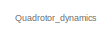
[diagram:   Existing_Quadrotor/Quadrotor - part 1/3, top center region]
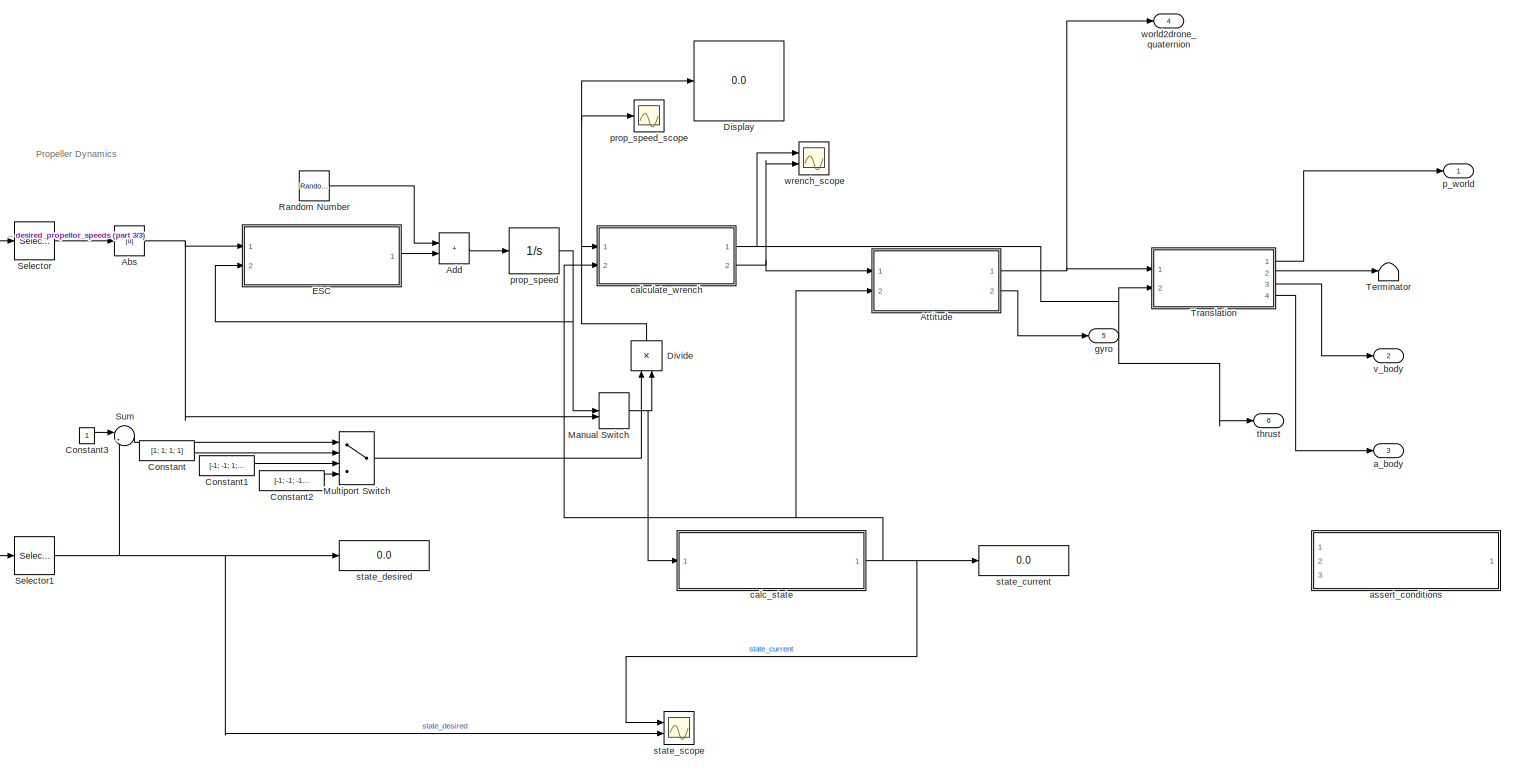
[diagram:   Existing_Quadrotor/Quadrotor - part 2/3, most of the canvas]
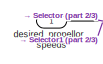
[diagram:   Existing_Quadrotor/Quadrotor - part 3/3, middle left region]
BLOCK [SubSystem]   Existing_Quadrotor/Quadrotor
  Ports = [1, 6]
  RequestExecContextInheritance = off
BLOCK [Abs]   Existing_Quadrotor/Quadrotor/Abs
  SaturateOnIntegerOverflow = off
  ZeroCross = off
BLOCK [Sum]   Existing_Quadrotor/Quadrotor/Add
  IconShape = rectangular
  Ports = [2, 1]
BLOCK [SubSystem]   Existing_Quadrotor/Quadrotor/Attitude
  Ports = [2, 2]
  RequestExecContextInheritance = off
BLOCK [Integrator]   Existing_Quadrotor/Quadrotor/Attitude/Attitude
  InitialCondition = q0(:,DroneID)
  Ports = [1, 1]
BLOCK [SubSystem]   Existing_Quadrotor/Quadrotor/Attitude/MATLAB Function
  ErrorFcn = Stateflow.Translate.translate
  PermitHierarchicalResolution = ExplicitOnly
  Ports = [2, 1]
  RequestExecContextInheritance = off
  SFBlockType = MATLAB Function
  TreatAsAtomicUnit = on
BLOCK [Demux]   Existing_Quadrotor/Quadrotor/Attitude/MATLAB Function/ Demux 
  Outputs = 1
  Ports = [1, 1]
BLOCK [S-Function]   Existing_Quadrotor/Quadrotor/Attitude/MATLAB Function/ SFunction 
  EnableBusSupport = on
  FunctionName = sf_sfun
  PortCounts = [2 2]
  Ports = [2, 2]
  SFcnIsStateOwnerBlock = off
  SFunctionDeploymentMode = off
  Tag = Stateflow S-Function 79
BLOCK [Terminator]   Existing_Quadrotor/Quadrotor/Attitude/MATLAB Function/ Terminator 
BLOCK [Inport]   Existing_Quadrotor/Quadrotor/Attitude/MATLAB Function/omega
  Port = 2
BLOCK [Inport]   Existing_Quadrotor/Quadrotor/Attitude/MATLAB Function/q
BLOCK [Outport]   Existing_Quadrotor/Quadrotor/Attitude/MATLAB Function/qd
BLOCK [SubSystem]   Existing_Quadrotor/Quadrotor/Attitude/MATLAB Function1
  ErrorFcn = Stateflow.Translate.translate
  PermitHierarchicalResolution = ExplicitOnly
  Ports = [3, 1]
  RequestExecContextInheritance = off
  SFBlockType = MATLAB Function
  TreatAsAtomicUnit = on
BLOCK [Demux]   Existing_Quadrotor/Quadrotor/Attitude/MATLAB Function1/ Demux 
  Outputs = 1
  Ports = [1, 1]
BLOCK [S-Function]   Existing_Quadrotor/Quadrotor/Attitude/MATLAB Function1/ SFunction 
  EnableBusSupport = on
  FunctionName = sf_sfun
  Parameters = DroneID,drone_params
  PortCounts = [3 2]
  Ports = [3, 2]
  SFcnIsStateOwnerBlock = off
  SFunctionDeploymentMode = off
  Tag = Stateflow S-Function 80
BLOCK [Terminator]   Existing_Quadrotor/Quadrotor/Attitude/MATLAB Function1/ Terminator 
BLOCK [Outport]   Existing_Quadrotor/Quadrotor/Attitude/MATLAB Function1/a
BLOCK [Inport]   Existing_Quadrotor/Quadrotor/Attitude/MATLAB Function1/m
BLOCK [Inport]   Existing_Quadrotor/Quadrotor/Attitude/MATLAB Function1/omega
  Port = 2
BLOCK [Inport]   Existing_Quadrotor/Quadrotor/Attitude/MATLAB Function1/state
  Port = 3
BLOCK [Reference]   Existing_Quadrotor/Quadrotor/Attitude/Normalize Vector  REF=vrlib/Utilities/Normalize Vector
  Ports = [1, 1]
  SourceBlock = vrlib/Utilities/Normalize Vector
  SourceProductBaseCode = SL
  SourceType = Normalize Vector
BLOCK [Sin]   Existing_Quadrotor/Quadrotor/Attitude/Sine Wave
  Amplitude = [0.5;0.5;0.5]
  Commented = on
  Frequency = [1;0.3;0.6]
  Ports = [0, 1]
  SampleTime = 0
BLOCK [Integrator]   Existing_Quadrotor/Quadrotor/Attitude/angular velocity
  InitialCondition = omega0(:,DroneID)
  Ports = [1, 1]
BLOCK [Outport]   Existing_Quadrotor/Quadrotor/Attitude/attitude
BLOCK [Inport]   Existing_Quadrotor/Quadrotor/Attitude/body moments
BLOCK [Outport]   Existing_Quadrotor/Quadrotor/Attitude/gyro
  Port = 2
BLOCK [Inport]   Existing_Quadrotor/Quadrotor/Attitude/state
  Port = 2
BLOCK [Constant]   Existing_Quadrotor/Quadrotor/Constant
  Value = [1; 1; 1; 1]
BLOCK [Constant]   Existing_Quadrotor/Quadrotor/Constant1
  Value = [-1; -1; 1; 1]
BLOCK [Constant]   Existing_Quadrotor/Quadrotor/Constant2
  Value = [-1; -1; -1; -1]
BLOCK [Constant]   Existing_Quadrotor/Quadrotor/Constant3
BLOCK [Display]   Existing_Quadrotor/Quadrotor/Display
  Decimation = 1
  Ports = [1]
BLOCK [Product]   Existing_Quadrotor/Quadrotor/Divide
  NameLocation = right
  Ports = [2, 1]
BLOCK [SubSystem]   Existing_Quadrotor/Quadrotor/ESC
  ErrorFcn = Stateflow.Translate.translate
  PermitHierarchicalResolution = ExplicitOnly
  Ports = [2, 1]
  RequestExecContextInheritance = off
  SFBlockType = MATLAB Function
  TreatAsAtomicUnit = on
BLOCK [Demux]   Existing_Quadrotor/Quadrotor/ESC/ Demux 
  Outputs = 1
  Ports = [1, 1]
BLOCK [S-Function]   Existing_Quadrotor/Quadrotor/ESC/ SFunction 
  EnableBusSupport = on
  FunctionName = sf_sfun
  Parameters = DroneID,drone_params
  PortCounts = [2 2]
  Ports = [2, 2]
  SFcnIsStateOwnerBlock = off
  SFunctionDeploymentMode = off
  Tag = Stateflow S-Function 81
BLOCK [Terminator]   Existing_Quadrotor/Quadrotor/ESC/ Terminator 
BLOCK [Inport]   Existing_Quadrotor/Quadrotor/ESC/Omega_prop
  Port = 2
BLOCK [Inport]   Existing_Quadrotor/Quadrotor/ESC/Omega_prop_d
BLOCK [Outport]   Existing_Quadrotor/Quadrotor/ESC/prop_acceleration
BLOCK [ManualSwitch]   Existing_Quadrotor/Quadrotor/Manual Switch
  CurrentSetting = 0
BLOCK [MultiPortSwitch]   Existing_Quadrotor/Quadrotor/Multiport Switch
  InputSameDT = off
  Ports = [4, 1]
  SaturateOnIntegerOverflow = off
BLOCK [RandomNumber]   Existing_Quadrotor/Quadrotor/Random Number
  Mean = [0;0;0;0]
  SampleTime = dt
  Seed = [1;2;3;4]
  Variance = [5000;5000;5000;5000]
BLOCK [Selector]   Existing_Quadrotor/Quadrotor/Selector
  IndexOptions = Index vector (dialog)
  Indices = [1 2 3 4]
  InputPortWidth = 5
  OutputSizes = 1
  Ports = [1, 1]
BLOCK [Selector]   Existing_Quadrotor/Quadrotor/Selector1
  IndexOptions = Index vector (dialog)
  Indices = [5]
  InputPortWidth = 5
  OutputSizes = 1
  Ports = [1, 1]
BLOCK [Sum]   Existing_Quadrotor/Quadrotor/Sum
  Inputs = |++
  Ports = [2, 1]
BLOCK [Terminator]   Existing_Quadrotor/Quadrotor/Terminator
BLOCK [SubSystem]   Existing_Quadrotor/Quadrotor/Translation
  Ports = [2, 4]
  RequestExecContextInheritance = off
BLOCK [Sum]   Existing_Quadrotor/Quadrotor/Translation/Add
  IconShape = rectangular
  Ports = [2, 1]
BLOCK [Sum]   Existing_Quadrotor/Quadrotor/Translation/Add1
  IconShape = rectangular
  Ports = [2, 1]
BLOCK [Step]   Existing_Quadrotor/Quadrotor/Translation/End Gust
  After = -1*gust_force/drone_params(DroneID).mechanical.m
  Before = [0;0;0]
  SampleTime = 0
  Time = gust_start + gust_duration
BLOCK [SubSystem]   Existing_Quadrotor/Quadrotor/Translation/MATLAB Function
  ErrorFcn = Stateflow.Translate.translate
  PermitHierarchicalResolution = ExplicitOnly
  Ports = [2, 1]
  RequestExecContextInheritance = off
  SFBlockType = MATLAB Function
  TreatAsAtomicUnit = on
BLOCK [Demux]   Existing_Quadrotor/Quadrotor/Translation/MATLAB Function/ Demux 
  Outputs = 1
  Ports = [1, 1]
BLOCK [S-Function]   Existing_Quadrotor/Quadrotor/Translation/MATLAB Function/ SFunction 
  EnableBusSupport = on
  FunctionName = sf_sfun
  Parameters = DroneID,drone_params,g
  PortCounts = [2 2]
  Ports = [2, 2]
  SFcnIsStateOwnerBlock = off
  SFunctionDeploymentMode = off
  Tag = Stateflow S-Function 82
BLOCK [Terminator]   Existing_Quadrotor/Quadrotor/Translation/MATLAB Function/ Terminator 
BLOCK [Inport]   Existing_Quadrotor/Quadrotor/Translation/MATLAB Function/R
  Port = 2
BLOCK [Outport]   Existing_Quadrotor/Quadrotor/Translation/MATLAB Function/a
BLOCK [Inport]   Existing_Quadrotor/Quadrotor/Translation/MATLAB Function/f
BLOCK [SubSystem]   Existing_Quadrotor/Quadrotor/Translation/MATLAB Function1
  ErrorFcn = Stateflow.Translate.translate
  PermitHierarchicalResolution = ExplicitOnly
  Ports = [1, 1]
  RequestExecContextInheritance = off
  SFBlockType = MATLAB Function
  TreatAsAtomicUnit = on
BLOCK [Demux]   Existing_Quadrotor/Quadrotor/Translation/MATLAB Function1/ Demux 
  Outputs = 1
  Ports = [1, 1]
BLOCK [S-Function]   Existing_Quadrotor/Quadrotor/Translation/MATLAB Function1/ SFunction 
  EnableBusSupport = on
  FunctionName = sf_sfun
  PortCounts = [1 2]
  Ports = [1, 2]
  SFcnIsStateOwnerBlock = off
  SFunctionDeploymentMode = off
  Tag = Stateflow S-Function 83
BLOCK [Terminator]   Existing_Quadrotor/Quadrotor/Translation/MATLAB Function1/ Terminator 
BLOCK [Outport]   Existing_Quadrotor/Quadrotor/Translation/MATLAB Function1/R
BLOCK [Inport]   Existing_Quadrotor/Quadrotor/Translation/MATLAB Function1/q
BLOCK [Product]   Existing_Quadrotor/Quadrotor/Translation/Matrix Divide
  Inputs = /*
  Multiplication = Matrix(*)
  Ports = [2, 1]
BLOCK [Product]   Existing_Quadrotor/Quadrotor/Translation/Matrix Divide1
  Inputs = /*
  Multiplication = Matrix(*)
  Ports = [2, 1]
BLOCK [Step]   Existing_Quadrotor/Quadrotor/Translation/Start Gust
  After = gust_force/drone_params(DroneID).mechanical.m
  Before = [0;0;0]
  SampleTime = 0
  Time = gust_start
BLOCK [Inport]   Existing_Quadrotor/Quadrotor/Translation/attitude
BLOCK [Outport]   Existing_Quadrotor/Quadrotor/Translation/body_a
  Port = 4
BLOCK [Outport]   Existing_Quadrotor/Quadrotor/Translation/body_v
  Port = 3
BLOCK [Outport]   Existing_Quadrotor/Quadrotor/Translation/p
BLOCK [Integrator]   Existing_Quadrotor/Quadrotor/Translation/position
  InitialCondition = p0(:,DroneID)
  Ports = [1, 1]
BLOCK [Inport]   Existing_Quadrotor/Quadrotor/Translation/thrust
  Port = 2
BLOCK [Outport]   Existing_Quadrotor/Quadrotor/Translation/v
  Port = 2
BLOCK [Integrator]   Existing_Quadrotor/Quadrotor/Translation/velocity
  InitialCondition = v0(:,DroneID)
  Ports = [1, 1]
BLOCK [Outport]   Existing_Quadrotor/Quadrotor/a_body
  Port = 3
BLOCK [SubSystem]   Existing_Quadrotor/Quadrotor/assert_conditions
  Commented = on
  ErrorFcn = Stateflow.Translate.translate
  PermitHierarchicalResolution = ExplicitOnly
  Ports = [3, 1]
  RequestExecContextInheritance = off
  SFBlockType = MATLAB Function
  TreatAsAtomicUnit = on
BLOCK [Demux]   Existing_Quadrotor/Quadrotor/assert_conditions/ Demux 
  Outputs = 1
  Ports = [1, 1]
BLOCK [S-Function]   Existing_Quadrotor/Quadrotor/assert_conditions/ SFunction 
  EnableBusSupport = on
  FunctionName = sf_sfun
  Parameters = DroneID,drone_params
  PortCounts = [3 2]
  Ports = [3, 2]
  SFcnIsStateOwnerBlock = off
  SFunctionDeploymentMode = off
  Tag = Stateflow S-Function 5
BLOCK [Terminator]   Existing_Quadrotor/Quadrotor/assert_conditions/ Terminator 
BLOCK [Inport]   Existing_Quadrotor/Quadrotor/assert_conditions/moments
  Port = 2
BLOCK [Outport]   Existing_Quadrotor/Quadrotor/assert_conditions/state
BLOCK [Inport]   Existing_Quadrotor/Quadrotor/assert_conditions/state 
  Port = 3
BLOCK [Inport]   Existing_Quadrotor/Quadrotor/assert_conditions/thrust
BLOCK [SubSystem]   Existing_Quadrotor/Quadrotor/calc_state
  ErrorFcn = Stateflow.Translate.translate
  PermitHierarchicalResolution = ExplicitOnly
  Ports = [1, 1]
  RequestExecContextInheritance = off
  SFBlockType = MATLAB Function
  TreatAsAtomicUnit = on
BLOCK [Demux]   Existing_Quadrotor/Quadrotor/calc_state/ Demux 
  Outputs = 1
  Ports = [1, 1]
BLOCK [S-Function]   Existing_Quadrotor/Quadrotor/calc_state/ SFunction 
  EnableBusSupport = on
  FunctionName = sf_sfun
  Parameters = DroneID,drone_params
  PortCounts = [1 2]
  Ports = [1, 2]
  SFcnIsStateOwnerBlock = off
  SFunctionDeploymentMode = off
  Tag = Stateflow S-Function 2
BLOCK [Terminator]   Existing_Quadrotor/Quadrotor/calc_state/ Terminator 
BLOCK [Inport]   Existing_Quadrotor/Quadrotor/calc_state/omega_props
BLOCK [Outport]   Existing_Quadrotor/Quadrotor/calc_state/state
BLOCK [SubSystem]   Existing_Quadrotor/Quadrotor/calculate_wrench
  ErrorFcn = Stateflow.Translate.translate
  PermitHierarchicalResolution = ExplicitOnly
  Ports = [2, 2]
  RequestExecContextInheritance = off
  SFBlockType = MATLAB Function
  TreatAsAtomicUnit = on
BLOCK [Demux]   Existing_Quadrotor/Quadrotor/calculate_wrench/ Demux 
  Outputs = 1
  Ports = [1, 1]
BLOCK [S-Function]   Existing_Quadrotor/Quadrotor/calculate_wrench/ SFunction 
  EnableBusSupport = on
  FunctionName = sf_sfun
  Parameters = DroneID,drone_params
  PortCounts = [2 3]
  Ports = [2, 3]
  SFcnIsStateOwnerBlock = off
  SFunctionDeploymentMode = off
  Tag = Stateflow S-Function 84
BLOCK [Terminator]   Existing_Quadrotor/Quadrotor/calculate_wrench/ Terminator 
BLOCK [Inport]   Existing_Quadrotor/Quadrotor/calculate_wrench/Omega_props
BLOCK [Outport]   Existing_Quadrotor/Quadrotor/calculate_wrench/moments
  Port = 2
BLOCK [Inport]   Existing_Quadrotor/Quadrotor/calculate_wrench/state
  Port = 2
BLOCK [Outport]   Existing_Quadrotor/Quadrotor/calculate_wrench/thrust
BLOCK [Inport]   Existing_Quadrotor/Quadrotor/desired_propellor_speeds
BLOCK [Outport]   Existing_Quadrotor/Quadrotor/gyro
  Port = 5
BLOCK [Outport]   Existing_Quadrotor/Quadrotor/p_world
BLOCK [Integrator]   Existing_Quadrotor/Quadrotor/prop_speed
  InitialCondition = drone_params(DroneID).motors.omega0
  LimitOutput = on
  LowerSaturationLimit = drone_params(DroneID).motors.omega_min
  Ports = [1, 1]
  UpperSaturationLimit = drone_params(DroneID).motors.omega_max
BLOCK [Scope]   Existing_Quadrotor/Quadrotor/prop_speed_scope
  Floating = off
  NumInputPorts = 1
  Ports = [1]
  ScopeSpecificationString = Simulink.scopes.TimeScopeBlockCfg('CurrentConfiguration', extmgr.ConfigurationSet(extmgr.Configuration('Core','General UI',true),extmgr.Configuration('Core','Source UI',true),extmgr.Configuration('Sources','WiredSimulink',true,'DataLoggingVariableName','ScopeData3'),extmgr.Configuration('Visuals','Time Domain',true,'SerializedDisplays',{struct('MinYLimReal','-759.13115','MaxYLimReal','1475.24531',...<+1617ch>
BLOCK [Display]   Existing_Quadrotor/Quadrotor/state_current
  Decimation = 1
  Ports = [1]
BLOCK [Display]   Existing_Quadrotor/Quadrotor/state_desired
  Decimation = 1
  Ports = [1]
BLOCK [Scope]   Existing_Quadrotor/Quadrotor/state_scope
  Floating = off
  NumInputPorts = 2
  Ports = [2]
  ScopeSpecificationString = Simulink.scopes.TimeScopeBlockCfg('CurrentConfiguration', extmgr.ConfigurationSet(extmgr.Configuration('Core','General UI',true),extmgr.Configuration('Core','Source UI',true),extmgr.Configuration('Sources','WiredSimulink',true,'DataLoggingVariableName','ScopeData2'),extmgr.Configuration('Visuals','Time Domain',true),extmgr.Configuration('Tools','Plot Navigation',true),extmgr.Configuration('Tools',...<+40ch>
BLOCK [Outport]   Existing_Quadrotor/Quadrotor/thrust
  Port = 6
BLOCK [Outport]   Existing_Quadrotor/Quadrotor/v_body
  Port = 2
BLOCK [Outport]   Existing_Quadrotor/Quadrotor/world2drone_quaternion
  Port = 4
BLOCK [Scope]   Existing_Quadrotor/Quadrotor/wrench_scope
  Floating = off
  NumInputPorts = 2
  Ports = [2]
  ScopeSpecificationString = Simulink.scopes.TimeScopeBlockCfg('CurrentConfiguration', extmgr.ConfigurationSet(extmgr.Configuration('Core','General UI',true),extmgr.Configuration('Core','Source UI',true),extmgr.Configuration('Sources','WiredSimulink',true,'DataLoggingVariableName','ScopeData4'),extmgr.Configuration('Visuals','Time Domain',true,'SerializedDisplays',{struct('MinYLimReal','1.99221','MaxYLimReal','12.07008','YLab...<+2155ch>
BLOCK [Reshape]   Existing_Quadrotor/Reshape
  Ports = [1, 1]
BLOCK [Terminator]   Existing_Quadrotor/Terminator
BLOCK [Terminator]   Existing_Quadrotor/Terminator1
BLOCK [ToWorkspace]   Existing_Quadrotor/To Workspace
  FixptAsFi = on
  MaxDataPoints = inf
  Ports = [1]
  SampleTime = -1
  SaveFormat = Timeseries
  VariableName = Drone1
BLOCK [SubSystem]   Existing_Quadrotor/add_noise
  ErrorFcn = Stateflow.Translate.translate
  PermitHierarchicalResolution = ExplicitOnly
  Ports = [4, 4]
  RequestExecContextInheritance = off
  SFBlockType = MATLAB Function
  TreatAsAtomicUnit = on
BLOCK [Demux]   Existing_Quadrotor/add_noise/ Demux 
  Outputs = 1
  Ports = [1, 1]
BLOCK [S-Function]   Existing_Quadrotor/add_noise/ SFunction 
  EnableBusSupport = on
  FunctionName = sf_sfun
  Parameters = DroneID,drone_params
  PortCounts = [4 5]
  Ports = [4, 5]
  SFcnIsStateOwnerBlock = off
  SFunctionDeploymentMode = off
  Tag = Stateflow S-Function 85
BLOCK [Terminator]   Existing_Quadrotor/add_noise/ Terminator 
BLOCK [Inport]   Existing_Quadrotor/add_noise/omega
BLOCK [Outport]   Existing_Quadrotor/add_noise/omega_n
BLOCK [Inport]   Existing_Quadrotor/add_noise/p
  Port = 4
BLOCK [Outport]   Existing_Quadrotor/add_noise/p_n
  Port = 4
BLOCK [Inport]   Existing_Quadrotor/add_noise/q
  Port = 2
BLOCK [Outport]   Existing_Quadrotor/add_noise/q_n
  Port = 2
BLOCK [Inport]   Existing_Quadrotor/add_noise/v
  Port = 3
BLOCK [Outport]   Existing_Quadrotor/add_noise/v_n
  Port = 3
BLOCK [Inport]   Existing_Quadrotor/input
BLOCK [BusSelector] Bus Selector
  OutputSignals = p,v,a,q,o
  Ports = [1, 5]
BLOCK [Constant] Constant
  Value = 0
BLOCK [Display] Display
  Decimation = 1
  Ports = [1]
BLOCK [Inport] Input
  NameLocation = right
BLOCK [Inport] Input1
  NameLocation = right
  Port = 2
BLOCK [Inport] Input2
  NameLocation = right
  Port = 3
BLOCK [Inport] Input3
  NameLocation = right
  Port = 4
BLOCK [Inport] Input4
  NameLocation = right
  Port = 5
BLOCK [Inport] Input5
  NameLocation = right
  Port = 6
BLOCK [Inport] Input6
  NameLocation = right
  Port = 7
BLOCK [Inport] Input7
  NameLocation = right
  Port = 8
BLOCK [Inport] Input8
  NameLocation = right
  Port = 9
BLOCK [Mux] Mux
  DisplayOption = bar
  Inputs = 2
  Ports = [2, 1]
BLOCK [Mux] Mux1
  DisplayOption = bar
  Inputs = 9
  NameLocation = right
  Ports = [9, 1]
BLOCK [Scope] Scope
  Floating = off
  NumInputPorts = 1
  Ports = [1]
  ScopeSpecificationString = Simulink.scopes.TimeScopeBlockCfg('CurrentConfiguration', extmgr.ConfigurationSet(extmgr.Configuration('Core','General UI',true),extmgr.Configuration('Core','Source UI',true),extmgr.Configuration('Sources','WiredSimulink',true,'DataLoggingVariableName','ScopeData1'),extmgr.Configuration('Visuals','Time Domain',true,'SerializedDisplays',{struct('MinYLimReal','-0.44965','MaxYLimReal','3.98177','YLab...<+1545ch>
BLOCK [Scope] Scope1
  Floating = off
  NumInputPorts = 1
  Ports = [1]
  ScopeSpecificationString = Simulink.scopes.TimeScopeBlockCfg('CurrentConfiguration', extmgr.ConfigurationSet(extmgr.Configuration('Core','General UI',true),extmgr.Configuration('Core','Source UI',true),extmgr.Configuration('Sources','WiredSimulink',true,'DataLoggingVariableName','ScopeData2'),extmgr.Configuration('Visuals','Time Domain',true,'SerializedDisplays',{struct('MinYLimReal','-0.29836','MaxYLimReal','1.39505','YLab...<+1415ch>
BLOCK [Scope] Scope2
  Floating = off
  NumInputPorts = 1
  Ports = [1]
  ScopeSpecificationString = Simulink.scopes.TimeScopeBlockCfg('CurrentConfiguration', extmgr.ConfigurationSet(extmgr.Configuration('Core','General UI',true),extmgr.Configuration('Core','Source UI',true),extmgr.Configuration('Sources','WiredSimulink',true,'DataLoggingVariableName','ScopeData3'),extmgr.Configuration('Visuals','Time Domain',true,'SerializedDisplays',{struct('MinYLimReal','-7.69274','MaxYLimReal','8.31051','YLab...<+1409ch>
BLOCK [Scope] Scope3
  Floating = off
  NumInputPorts = 1
  Ports = [1]
  ScopeSpecificationString = Simulink.scopes.TimeScopeBlockCfg('CurrentConfiguration', extmgr.ConfigurationSet(extmgr.Configuration('Core','General UI',true),extmgr.Configuration('Core','Source UI',true),extmgr.Configuration('Sources','WiredSimulink',true,'DataLoggingVariableName','ScopeData4'),extmgr.Configuration('Visuals','Time Domain',true,'SerializedDisplays',{struct('MinYLimReal','-0.165','MaxYLimReal','1.12944','YLabel...<+1409ch>
BLOCK [Scope] Scope4
  Floating = off
  NumInputPorts = 1
  Ports = [1]
  ScopeSpecificationString = Simulink.scopes.TimeScopeBlockCfg('CurrentConfiguration', extmgr.ConfigurationSet(extmgr.Configuration('Core','General UI',true),extmgr.Configuration('Core','Source UI',true),extmgr.Configuration('Sources','WiredSimulink',true,'DataLoggingVariableName','ScopeData5'),extmgr.Configuration('Visuals','Time Domain',true,'SerializedDisplays',{struct('MinYLimReal','-2.73242','MaxYLimReal','2.01795','YLab...<+1409ch>
BLOCK [Constant] Wprop
  Value = [1; 1; 1; 1; 0]*1000
BLOCK [Constant] input_old
  Value = [0;0;3;0]
BLOCK [Constant] input_old1
  Commented = on
  Value = [drone_params(1).mechanical.m*g;4;3;-1]
BLOCK [Step] input_state
  After = drone_params(1).control.state_enum.folded2
  Before = drone_params(1).control.state
  Commented = on
  SampleTime = 0
  Time = tsim/2
ANNOTATION (root): Reconfigurable quadcopter
ANNOTATION   Existing_Quadrotor/Controller: #1 PD Erskine Controller
ANNOTATION   Existing_Quadrotor/Controller: #2 SMC Controller
ANNOTATION   Existing_Quadrotor/Controller: #3 Supertwisting Controller
ANNOTATION   Existing_Quadrotor/Controller: #4 LQR Controller
ANNOTATION   Existing_Quadrotor/Controller: Error analysis
ANNOTATION   Existing_Quadrotor/Controller: Saturation
ANNOTATION   Existing_Quadrotor/Quadrotor: Propeller Dynamics
ANNOTATION   Existing_Quadrotor/Quadrotor: Quadrotor_dynamics
LINE   Existing_Quadrotor/Bus Creator1:1 ->   Existing_Quadrotor/Terminator:1
NET   Existing_Quadrotor/Bus Creator4:1 ->   Existing_Quadrotor/Gound Truth:1,   Existing_Quadrotor/To Workspace:1
NET   Existing_Quadrotor/Constant:1 ->   Existing_Quadrotor/Bus Creator1:1,   Existing_Quadrotor/Bus Creator4:1,   Existing_Quadrotor/Display1:1
LINE   Existing_Quadrotor/Controller/CONTROLLER_TYPE1:1 ->   Existing_Quadrotor/Controller/Multiport Switch1:1
LINE   Existing_Quadrotor/Controller/CONTROLLER_TYPE:1 ->   Existing_Quadrotor/Controller/Multiport Switch:1
NET   Existing_Quadrotor/Controller/Derivative1:1 ->   Existing_Quadrotor/Controller/Manual Switch1:1,   Existing_Quadrotor/Controller/Scope6:1
LINE   Existing_Quadrotor/Controller/K_stw:1 ->   Existing_Quadrotor/Controller/Supertwisting Controller:7
LINE   Existing_Quadrotor/Controller/LQR Controller (not working)/MATLAB Function2:1 ->   Existing_Quadrotor/Controller/LQR Controller (not working)/Mux2:2
LINE   Existing_Quadrotor/Controller/LQR Controller (not working)/MATLAB Function3:1 ->   Existing_Quadrotor/Controller/LQR Controller (not working)/position control1:3
LINE   Existing_Quadrotor/Controller/LQR Controller (not working)/Mux2:1 ->   Existing_Quadrotor/Controller/LQR Controller (not working)/position control1:2
LINE   Existing_Quadrotor/Controller/LQR Controller (not working)/Selector:1 ->   Existing_Quadrotor/Controller/LQR Controller (not working)/attitude control1:1
LINE   Existing_Quadrotor/Controller/LQR Controller (not working)/attitude control1/MATLAB Function:1 ->   Existing_Quadrotor/Controller/LQR Controller (not working)/attitude control1/u2:1
LINE   Existing_Quadrotor/Controller/LQR Controller (not working)/attitude control1/Mux:1 ->   Existing_Quadrotor/Controller/LQR Controller (not working)/attitude control1/MATLAB Function:1
LINE   Existing_Quadrotor/Controller/LQR Controller (not working)/attitude control1/phi tht psi:1 ->   Existing_Quadrotor/Controller/LQR Controller (not working)/attitude control1/Mux:2
LINE   Existing_Quadrotor/Controller/LQR Controller (not working)/attitude control1/state:1 ->   Existing_Quadrotor/Controller/LQR Controller (not working)/attitude control1/Mux:3
LINE   Existing_Quadrotor/Controller/LQR Controller (not working)/attitude control1/x y z:1 ->   Existing_Quadrotor/Controller/LQR Controller (not working)/attitude control1/Mux:1
LINE   Existing_Quadrotor/Controller/LQR Controller (not working)/attitude control1:1 ->   Existing_Quadrotor/Controller/LQR Controller (not working)/wrench1:2
LINE   Existing_Quadrotor/Controller/LQR Controller (not working)/omega:1 ->   Existing_Quadrotor/Controller/LQR Controller (not working)/Terminator:1
LINE   Existing_Quadrotor/Controller/LQR Controller (not working)/p:1 ->   Existing_Quadrotor/Controller/LQR Controller (not working)/Mux2:1
NET   Existing_Quadrotor/Controller/LQR Controller (not working)/position control1/Constant:1 ->   Existing_Quadrotor/Controller/LQR Controller (not working)/position control1/Mux2:2,   Existing_Quadrotor/Controller/LQR Controller (not working)/position control1/Mux2:3,   Existing_Quadrotor/Controller/LQR Controller (not working)/position control1/Mux2:5,   Existing_Quadrotor/Controller/LQR Controller (not working)/position control1/Mux2:6,   Existing_Quadrotor/Controller/LQR Controller (not working)/position control1/Mux2:8,   Existing_Quadrotor/Controller/LQR Controller (not working)/position control1/Mux2:9
LINE   Existing_Quadrotor/Controller/LQR Controller (not working)/position control1/Demux1:1 ->   Existing_Quadrotor/Controller/LQR Controller (not working)/position control1/Mux2:1
LINE   Existing_Quadrotor/Controller/LQR Controller (not working)/position control1/Demux1:2 ->   Existing_Quadrotor/Controller/LQR Controller (not working)/position control1/Mux2:4
LINE   Existing_Quadrotor/Controller/LQR Controller (not working)/position control1/Demux1:3 ->   Existing_Quadrotor/Controller/LQR Controller (not working)/position control1/Mux2:7
LINE   Existing_Quadrotor/Controller/LQR Controller (not working)/position control1/Demux1:4 ->   Existing_Quadrotor/Controller/LQR Controller (not working)/position control1/Mux2:10
LINE   Existing_Quadrotor/Controller/LQR Controller (not working)/position control1/Demux:1 ->   Existing_Quadrotor/Controller/LQR Controller (not working)/position control1/u1:1
LINE   Existing_Quadrotor/Controller/LQR Controller (not working)/position control1/Demux:2 ->   Existing_Quadrotor/Controller/LQR Controller (not working)/position control1/Mux1:1
LINE   Existing_Quadrotor/Controller/LQR Controller (not working)/position control1/Demux:3 ->   Existing_Quadrotor/Controller/LQR Controller (not working)/position control1/Mux1:2
LINE   Existing_Quadrotor/Controller/LQR Controller (not working)/position control1/Demux:4 ->   Existing_Quadrotor/Controller/LQR Controller (not working)/position control1/Mux1:3
LINE   Existing_Quadrotor/Controller/LQR Controller (not working)/position control1/MATLAB Function:1 ->   Existing_Quadrotor/Controller/LQR Controller (not working)/position control1/Demux:1
NET   Existing_Quadrotor/Controller/LQR Controller (not working)/position control1/Mux1:1 ->   Existing_Quadrotor/Controller/LQR Controller (not working)/position control1/To Workspace:1,   Existing_Quadrotor/Controller/LQR Controller (not working)/position control1/phiC thtC psiC:1
LINE   Existing_Quadrotor/Controller/LQR Controller (not working)/position control1/Mux2:1 ->   Existing_Quadrotor/Controller/LQR Controller (not working)/position control1/Mux:1
LINE   Existing_Quadrotor/Controller/LQR Controller (not working)/position control1/Mux:1 ->   Existing_Quadrotor/Controller/LQR Controller (not working)/position control1/MATLAB Function:1
LINE   Existing_Quadrotor/Controller/LQR Controller (not working)/position control1/phi tht psi:1 ->   Existing_Quadrotor/Controller/LQR Controller (not working)/position control1/Mux:3
LINE   Existing_Quadrotor/Controller/LQR Controller (not working)/position control1/refTraj:1 ->   Existing_Quadrotor/Controller/LQR Controller (not working)/position control1/Demux1:1
LINE   Existing_Quadrotor/Controller/LQR Controller (not working)/position control1/x dx:1 ->   Existing_Quadrotor/Controller/LQR Controller (not working)/position control1/Mux:2
LINE   Existing_Quadrotor/Controller/LQR Controller (not working)/position control1:1 ->   Existing_Quadrotor/Controller/LQR Controller (not working)/wrench1:1
LINE   Existing_Quadrotor/Controller/LQR Controller (not working)/position control1:2 ->   Existing_Quadrotor/Controller/LQR Controller (not working)/attitude control1:2
NET   Existing_Quadrotor/Controller/LQR Controller (not working)/q:1 ->   Existing_Quadrotor/Controller/LQR Controller (not working)/MATLAB Function2:2,   Existing_Quadrotor/Controller/LQR Controller (not working)/MATLAB Function3:1
LINE   Existing_Quadrotor/Controller/LQR Controller (not working)/state:1 ->   Existing_Quadrotor/Controller/LQR Controller (not working)/attitude control1:3
NET   Existing_Quadrotor/Controller/LQR Controller (not working)/u:1 ->   Existing_Quadrotor/Controller/LQR Controller (not working)/Selector:1,   Existing_Quadrotor/Controller/LQR Controller (not working)/position control1:1
LINE   Existing_Quadrotor/Controller/LQR Controller (not working)/v :1 ->   Existing_Quadrotor/Controller/LQR Controller (not working)/MATLAB Function2:1
LINE   Existing_Quadrotor/Controller/LQR Controller (not working)/wrench1:1 ->   Existing_Quadrotor/Controller/LQR Controller (not working)/wrench:1
LINE   Existing_Quadrotor/Controller/LQR Controller (not working):1 ->   Existing_Quadrotor/Controller/Multiport Switch:5
LINE   Existing_Quadrotor/Controller/MATLAB Function3:1 ->   Existing_Quadrotor/Controller/Selector12:1
LINE   Existing_Quadrotor/Controller/Manual Switch1:1 ->   Existing_Quadrotor/Controller/sliding_var_calc1:4
NET   Existing_Quadrotor/Controller/Multiport Switch1:1 ->   Existing_Quadrotor/Controller/Selector8:1,   Existing_Quadrotor/Controller/Selector9:1
NET   Existing_Quadrotor/Controller/Multiport Switch:1 ->   Existing_Quadrotor/Controller/Selector2:1,   Existing_Quadrotor/Controller/Selector3:1
NET   Existing_Quadrotor/Controller/Mux:1 ->   Existing_Quadrotor/Controller/To Workspace2:1,   Existing_Quadrotor/Controller/prop_speeds:1
LINE   Existing_Quadrotor/Controller/PD Controller1:1 ->   Existing_Quadrotor/Controller/Multiport Switch1:2
LINE   Existing_Quadrotor/Controller/PD Controller:1 ->   Existing_Quadrotor/Controller/Multiport Switch:2
NET   Existing_Quadrotor/Controller/SMC (not working)/Derivative:1 ->   Existing_Quadrotor/Controller/SMC (not working)/Manual Switch:1,   Existing_Quadrotor/Controller/SMC (not working)/Scope2:1
LINE   Existing_Quadrotor/Controller/SMC (not working)/Manual Switch:1 ->   Existing_Quadrotor/Controller/SMC (not working)/sliding_var_calc:4
LINE   Existing_Quadrotor/Controller/SMC (not working)/Supertwisting diff/Abs:1 ->   Existing_Quadrotor/Controller/SMC (not working)/Supertwisting diff/Sqrt:1
LINE   Existing_Quadrotor/Controller/SMC (not working)/Supertwisting diff/Divide:1 ->   Existing_Quadrotor/Controller/SMC (not working)/Supertwisting diff/K1:1
LINE   Existing_Quadrotor/Controller/SMC (not working)/Supertwisting diff/Gain1:1 ->   Existing_Quadrotor/Controller/SMC (not working)/Supertwisting diff/Integrator1:1
LINE   Existing_Quadrotor/Controller/SMC (not working)/Supertwisting diff/Gain2:1 ->   Existing_Quadrotor/Controller/SMC (not working)/Supertwisting diff/Sum:1
LINE   Existing_Quadrotor/Controller/SMC (not working)/Supertwisting diff/Integrator1:1 ->   Existing_Quadrotor/Controller/SMC (not working)/Supertwisting diff/Sum:2
LINE   Existing_Quadrotor/Controller/SMC (not working)/Supertwisting diff/Integrator:1 ->   Existing_Quadrotor/Controller/SMC (not working)/Supertwisting diff/Sum1:2
LINE   Existing_Quadrotor/Controller/SMC (not working)/Supertwisting diff/K1:1 ->   Existing_Quadrotor/Controller/SMC (not working)/Supertwisting diff/Gain2:1
LINE   Existing_Quadrotor/Controller/SMC (not working)/Supertwisting diff/K2:1 ->   Existing_Quadrotor/Controller/SMC (not working)/Supertwisting diff/Gain1:1
NET   Existing_Quadrotor/Controller/SMC (not working)/Supertwisting diff/Sign:1 ->   Existing_Quadrotor/Controller/SMC (not working)/Supertwisting diff/Divide:2,   Existing_Quadrotor/Controller/SMC (not working)/Supertwisting diff/K2:1
LINE   Existing_Quadrotor/Controller/SMC (not working)/Supertwisting diff/Sqrt:1 ->   Existing_Quadrotor/Controller/SMC (not working)/Supertwisting diff/Divide:1
NET   Existing_Quadrotor/Controller/SMC (not working)/Supertwisting diff/Sum1:1 ->   Existing_Quadrotor/Controller/SMC (not working)/Supertwisting diff/Abs:1,   Existing_Quadrotor/Controller/SMC (not working)/Supertwisting diff/Sign:1
NET   Existing_Quadrotor/Controller/SMC (not working)/Supertwisting diff/Sum:1 ->   Existing_Quadrotor/Controller/SMC (not working)/Supertwisting diff/Integrator:1,   Existing_Quadrotor/Controller/SMC (not working)/Supertwisting diff/du//dt:1
LINE   Existing_Quadrotor/Controller/SMC (not working)/Supertwisting diff/u:1 ->   Existing_Quadrotor/Controller/SMC (not working)/Supertwisting diff/Sum1:1
NET   Existing_Quadrotor/Controller/SMC (not working)/Supertwisting diff:1 ->   Existing_Quadrotor/Controller/SMC (not working)/Manual Switch:2,   Existing_Quadrotor/Controller/SMC (not working)/Scope2:2
NET   Existing_Quadrotor/Controller/SMC (not working)/attitude control:1 ->   Existing_Quadrotor/Controller/SMC (not working)/Scope8:2,   Existing_Quadrotor/Controller/SMC (not working)/fm:2
LINE   Existing_Quadrotor/Controller/SMC (not working)/fm:1 ->   Existing_Quadrotor/Controller/SMC (not working)/wrench:1
NET   Existing_Quadrotor/Controller/SMC (not working)/omega:1 ->   Existing_Quadrotor/Controller/SMC (not working)/attitude control:2,   Existing_Quadrotor/Controller/SMC (not working)/sliding_var_calc:2
LINE   Existing_Quadrotor/Controller/SMC (not working)/p:1 ->   Existing_Quadrotor/Controller/SMC (not working)/position control:2
NET   Existing_Quadrotor/Controller/SMC (not working)/position control:1 ->   Existing_Quadrotor/Controller/SMC (not working)/Scope8:1,   Existing_Quadrotor/Controller/SMC (not working)/fm:1
NET   Existing_Quadrotor/Controller/SMC (not working)/position control:2 ->   Existing_Quadrotor/Controller/SMC (not working)/Derivative:1,   Existing_Quadrotor/Controller/SMC (not working)/Supertwisting diff:1,   Existing_Quadrotor/Controller/SMC (not working)/sliding_var_calc:3
NET   Existing_Quadrotor/Controller/SMC (not working)/q:1 ->   Existing_Quadrotor/Controller/SMC (not working)/position control:4,   Existing_Quadrotor/Controller/SMC (not working)/sliding_var_calc:1
NET   Existing_Quadrotor/Controller/SMC (not working)/sliding_var_calc:1 ->   Existing_Quadrotor/Controller/SMC (not working)/Scope3:1,   Existing_Quadrotor/Controller/SMC (not working)/attitude control:1
LINE   Existing_Quadrotor/Controller/SMC (not working)/u:1 ->   Existing_Quadrotor/Controller/SMC (not working)/position control:1
LINE   Existing_Quadrotor/Controller/SMC (not working)/v:1 ->   Existing_Quadrotor/Controller/SMC (not working)/position control:3
LINE   Existing_Quadrotor/Controller/SMC (not working):1 ->   Existing_Quadrotor/Controller/Terminator:1
LINE   Existing_Quadrotor/Controller/SMC Controller/MATLAB Function2:1 ->   Existing_Quadrotor/Controller/SMC Controller/Mux2:2
LINE   Existing_Quadrotor/Controller/SMC Controller/MATLAB Function3:1 ->   Existing_Quadrotor/Controller/SMC Controller/position control1:3
LINE   Existing_Quadrotor/Controller/SMC Controller/Mux2:1 ->   Existing_Quadrotor/Controller/SMC Controller/position control1:2
LINE   Existing_Quadrotor/Controller/SMC Controller/Sliding Variable/Derivative:1 ->   Existing_Quadrotor/Controller/SMC Controller/Sliding Variable/Mux2:4
LINE   Existing_Quadrotor/Controller/SMC Controller/Sliding Variable/Integrator2:1 ->   Existing_Quadrotor/Controller/SMC Controller/Sliding Variable/Mux2:2
LINE   Existing_Quadrotor/Controller/SMC Controller/Sliding Variable/Interpreted MATLAB Function:1 ->   Existing_Quadrotor/Controller/SMC Controller/Sliding Variable/s:1
LINE   Existing_Quadrotor/Controller/SMC Controller/Sliding Variable/Mux2:1 ->   Existing_Quadrotor/Controller/SMC Controller/Sliding Variable/Interpreted MATLAB Function:1
NET   Existing_Quadrotor/Controller/SMC Controller/Sliding Variable/dphi dtht dpsi:1 ->   Existing_Quadrotor/Controller/SMC Controller/Sliding Variable/Integrator2:1,   Existing_Quadrotor/Controller/SMC Controller/Sliding Variable/Mux2:1
NET   Existing_Quadrotor/Controller/SMC Controller/Sliding Variable/phiC thtC psiC:1 ->   Existing_Quadrotor/Controller/SMC Controller/Sliding Variable/Derivative:1,   Existing_Quadrotor/Controller/SMC Controller/Sliding Variable/Mux2:3
LINE   Existing_Quadrotor/Controller/SMC Controller/Sliding Variable:1 ->   Existing_Quadrotor/Controller/SMC Controller/attitude control1:1
LINE   Existing_Quadrotor/Controller/SMC Controller/attitude control1/MATLAB Function:1 ->   Existing_Quadrotor/Controller/SMC Controller/attitude control1/u2:1
LINE   Existing_Quadrotor/Controller/SMC Controller/attitude control1/Mux:1 ->   Existing_Quadrotor/Controller/SMC Controller/attitude control1/MATLAB Function:1
LINE   Existing_Quadrotor/Controller/SMC Controller/attitude control1/dphi dtht dpsi:1 ->   Existing_Quadrotor/Controller/SMC Controller/attitude control1/Mux:1
LINE   Existing_Quadrotor/Controller/SMC Controller/attitude control1/s:1 ->   Existing_Quadrotor/Controller/SMC Controller/attitude control1/Mux:2
LINE   Existing_Quadrotor/Controller/SMC Controller/attitude control1/state:1 ->   Existing_Quadrotor/Controller/SMC Controller/attitude control1/Mux:3
LINE   Existing_Quadrotor/Controller/SMC Controller/attitude control1:1 ->   Existing_Quadrotor/Controller/SMC Controller/wrench1:2
NET   Existing_Quadrotor/Controller/SMC Controller/omega:1 ->   Existing_Quadrotor/Controller/SMC Controller/Sliding Variable:2,   Existing_Quadrotor/Controller/SMC Controller/attitude control1:2
LINE   Existing_Quadrotor/Controller/SMC Controller/p:1 ->   Existing_Quadrotor/Controller/SMC Controller/Mux2:1
NET   Existing_Quadrotor/Controller/SMC Controller/position control1/Constant:1 ->   Existing_Quadrotor/Controller/SMC Controller/position control1/Mux2:2,   Existing_Quadrotor/Controller/SMC Controller/position control1/Mux2:3,   Existing_Quadrotor/Controller/SMC Controller/position control1/Mux2:5,   Existing_Quadrotor/Controller/SMC Controller/position control1/Mux2:6,   Existing_Quadrotor/Controller/SMC Controller/position control1/Mux2:8,   Existing_Quadrotor/Controller/SMC Controller/position control1/Mux2:9
LINE   Existing_Quadrotor/Controller/SMC Controller/position control1/Demux1:1 ->   Existing_Quadrotor/Controller/SMC Controller/position control1/Mux2:1
LINE   Existing_Quadrotor/Controller/SMC Controller/position control1/Demux1:2 ->   Existing_Quadrotor/Controller/SMC Controller/position control1/Mux2:4
LINE   Existing_Quadrotor/Controller/SMC Controller/position control1/Demux1:3 ->   Existing_Quadrotor/Controller/SMC Controller/position control1/Mux2:7
LINE   Existing_Quadrotor/Controller/SMC Controller/position control1/Demux1:4 ->   Existing_Quadrotor/Controller/SMC Controller/position control1/Mux2:10
LINE   Existing_Quadrotor/Controller/SMC Controller/position control1/Demux:1 ->   Existing_Quadrotor/Controller/SMC Controller/position control1/u1:1
LINE   Existing_Quadrotor/Controller/SMC Controller/position control1/Demux:2 ->   Existing_Quadrotor/Controller/SMC Controller/position control1/Mux1:1
LINE   Existing_Quadrotor/Controller/SMC Controller/position control1/Demux:3 ->   Existing_Quadrotor/Controller/SMC Controller/position control1/Mux1:2
LINE   Existing_Quadrotor/Controller/SMC Controller/position control1/Demux:4 ->   Existing_Quadrotor/Controller/SMC Controller/position control1/Mux1:3
LINE   Existing_Quadrotor/Controller/SMC Controller/position control1/MATLAB Function:1 ->   Existing_Quadrotor/Controller/SMC Controller/position control1/Demux:1
NET   Existing_Quadrotor/Controller/SMC Controller/position control1/Mux1:1 ->   Existing_Quadrotor/Controller/SMC Controller/position control1/To Workspace:1,   Existing_Quadrotor/Controller/SMC Controller/position control1/phiC thtC psiC:1
LINE   Existing_Quadrotor/Controller/SMC Controller/position control1/Mux2:1 ->   Existing_Quadrotor/Controller/SMC Controller/position control1/Mux:1
LINE   Existing_Quadrotor/Controller/SMC Controller/position control1/Mux:1 ->   Existing_Quadrotor/Controller/SMC Controller/position control1/MATLAB Function:1
LINE   Existing_Quadrotor/Controller/SMC Controller/position control1/phi tht psi:1 ->   Existing_Quadrotor/Controller/SMC Controller/position control1/Mux:3
LINE   Existing_Quadrotor/Controller/SMC Controller/position control1/refTraj:1 ->   Existing_Quadrotor/Controller/SMC Controller/position control1/Demux1:1
LINE   Existing_Quadrotor/Controller/SMC Controller/position control1/x dx:1 ->   Existing_Quadrotor/Controller/SMC Controller/position control1/Mux:2
LINE   Existing_Quadrotor/Controller/SMC Controller/position control1:1 ->   Existing_Quadrotor/Controller/SMC Controller/wrench1:1
LINE   Existing_Quadrotor/Controller/SMC Controller/position control1:2 ->   Existing_Quadrotor/Controller/SMC Controller/Sliding Variable:1
NET   Existing_Quadrotor/Controller/SMC Controller/q:1 ->   Existing_Quadrotor/Controller/SMC Controller/MATLAB Function2:2,   Existing_Quadrotor/Controller/SMC Controller/MATLAB Function3:1
LINE   Existing_Quadrotor/Controller/SMC Controller/state:1 ->   Existing_Quadrotor/Controller/SMC Controller/attitude control1:3
LINE   Existing_Quadrotor/Controller/SMC Controller/u:1 ->   Existing_Quadrotor/Controller/SMC Controller/position control1:1
LINE   Existing_Quadrotor/Controller/SMC Controller/v :1 ->   Existing_Quadrotor/Controller/SMC Controller/MATLAB Function2:1
LINE   Existing_Quadrotor/Controller/SMC Controller/wrench1:1 ->   Existing_Quadrotor/Controller/SMC Controller/wrench:1
NET   Existing_Quadrotor/Controller/SMC Controller1:1 ->   Existing_Quadrotor/Controller/Multiport Switch1:3,   Existing_Quadrotor/Controller/Selector10:1,   Existing_Quadrotor/Controller/Selector11:1
LINE   Existing_Quadrotor/Controller/SMC Controller:1 ->   Existing_Quadrotor/Controller/Multiport Switch:3
NET   Existing_Quadrotor/Controller/Saturation1:1 ->   Existing_Quadrotor/Controller/saturate_conditions:2,   Existing_Quadrotor/Controller/wrench_scope1:2
NET   Existing_Quadrotor/Controller/Saturation2:1 ->   Existing_Quadrotor/Controller/saturate_conditions1:1,   Existing_Quadrotor/Controller/wrench_scope4:1
NET   Existing_Quadrotor/Controller/Saturation3:1 ->   Existing_Quadrotor/Controller/saturate_conditions1:2,   Existing_Quadrotor/Controller/wrench_scope4:2
NET   Existing_Quadrotor/Controller/Saturation4:1 ->   Existing_Quadrotor/Controller/desired_prop_speed:1,   Existing_Quadrotor/Controller/wrench_scope:1
NET   Existing_Quadrotor/Controller/Saturation5:1 ->   Existing_Quadrotor/Controller/desired_prop_speed:2,   Existing_Quadrotor/Controller/wrench_scope:2
NET   Existing_Quadrotor/Controller/Saturation:1 ->   Existing_Quadrotor/Controller/saturate_conditions:1,   Existing_Quadrotor/Controller/wrench_scope1:1
NET   Existing_Quadrotor/Controller/Selector10:1 ->   Existing_Quadrotor/Controller/desired_prop_speed3:2,   Existing_Quadrotor/Controller/wrench_scope5:2
NET   Existing_Quadrotor/Controller/Selector11:1 ->   Existing_Quadrotor/Controller/desired_prop_speed3:1,   Existing_Quadrotor/Controller/wrench_scope5:1
LINE   Existing_Quadrotor/Controller/Selector12:1 ->   Existing_Quadrotor/Controller/Sum1:1
NET   Existing_Quadrotor/Controller/Selector1:1 ->   Existing_Quadrotor/Controller/LQR Controller (not working):6,   Existing_Quadrotor/Controller/Mux:2,   Existing_Quadrotor/Controller/SMC Controller:6,   Existing_Quadrotor/Controller/Supertwisting Controller:6,   Existing_Quadrotor/Controller/desired_prop_speed:3,   Existing_Quadrotor/Controller/saturate_conditions:3
LINE   Existing_Quadrotor/Controller/Selector2:1 ->   Existing_Quadrotor/Controller/Saturation1:1
LINE   Existing_Quadrotor/Controller/Selector3:1 ->   Existing_Quadrotor/Controller/Saturation:1
LINE   Existing_Quadrotor/Controller/Selector4:1 ->   Existing_Quadrotor/Controller/Sum:2
LINE   Existing_Quadrotor/Controller/Selector5:1 ->   Existing_Quadrotor/Controller/Sum1:2
NET   Existing_Quadrotor/Controller/Selector6:1 ->   Existing_Quadrotor/Controller/PD Controller1:1,   Existing_Quadrotor/Controller/posiiton control1:1
NET   Existing_Quadrotor/Controller/Selector7:1 ->   Existing_Quadrotor/Controller/Mux1:2,   Existing_Quadrotor/Controller/desired_prop_speed2:3,   Existing_Quadrotor/Controller/desired_prop_speed3:3,   Existing_Quadrotor/Controller/saturate_conditions1:3
LINE   Existing_Quadrotor/Controller/Selector8:1 ->   Existing_Quadrotor/Controller/Saturation3:1
LINE   Existing_Quadrotor/Controller/Selector9:1 ->   Existing_Quadrotor/Controller/Saturation2:1
NET   Existing_Quadrotor/Controller/Selector:1 ->   Existing_Quadrotor/Controller/LQR Controller (not working):1,   Existing_Quadrotor/Controller/PD Controller:1,   Existing_Quadrotor/Controller/SMC (not working):1,   Existing_Quadrotor/Controller/SMC Controller:1,   Existing_Quadrotor/Controller/Selector4:1,   Existing_Quadrotor/Controller/Selector5:1,   Existing_Quadrotor/Controller/Supertwisting Controller:1
NET   Existing_Quadrotor/Controller/Sum1:1 ->   Existing_Quadrotor/Controller/To Workspace1:1,   Existing_Quadrotor/Controller/error_yaw:1
NET   Existing_Quadrotor/Controller/Sum:1 ->   Existing_Quadrotor/Controller/To Workspace:1,   Existing_Quadrotor/Controller/error_position:1
LINE   Existing_Quadrotor/Controller/Supertwisting Controller/Divide:1 ->   Existing_Quadrotor/Controller/Supertwisting Controller/Integrator:1
LINE   Existing_Quadrotor/Controller/Supertwisting Controller/Gain:1 ->   Existing_Quadrotor/Controller/Supertwisting Controller/Divide:1
LINE   Existing_Quadrotor/Controller/Supertwisting Controller/Integrator:1 ->   Existing_Quadrotor/Controller/Supertwisting Controller/Mux:2
LINE   Existing_Quadrotor/Controller/Supertwisting Controller/K2:1 ->   Existing_Quadrotor/Controller/Supertwisting Controller/Gain:1
LINE   Existing_Quadrotor/Controller/Supertwisting Controller/K_stw:1 ->   Existing_Quadrotor/Controller/Supertwisting Controller/position control1:4
LINE   Existing_Quadrotor/Controller/Supertwisting Controller/MATLAB Function2:1 ->   Existing_Quadrotor/Controller/Supertwisting Controller/Mux2:2
NET   Existing_Quadrotor/Controller/Supertwisting Controller/MATLAB Function3:1 ->   Existing_Quadrotor/Controller/Supertwisting Controller/Scope:2,   Existing_Quadrotor/Controller/Supertwisting Controller/position control1:3
LINE   Existing_Quadrotor/Controller/Supertwisting Controller/Mux2:1 ->   Existing_Quadrotor/Controller/Supertwisting Controller/position control1:2
LINE   Existing_Quadrotor/Controller/Supertwisting Controller/Mux:1 ->   Existing_Quadrotor/Controller/Supertwisting Controller/attitude control1:1
LINE   Existing_Quadrotor/Controller/Supertwisting Controller/Sign:1 ->   Existing_Quadrotor/Controller/Supertwisting Controller/Divide:2
LINE   Existing_Quadrotor/Controller/Supertwisting Controller/Sliding Variable/Derivative:1 ->   Existing_Quadrotor/Controller/Supertwisting Controller/Sliding Variable/Mux2:4
LINE   Existing_Quadrotor/Controller/Supertwisting Controller/Sliding Variable/Integrator2:1 ->   Existing_Quadrotor/Controller/Supertwisting Controller/Sliding Variable/Mux2:2
LINE   Existing_Quadrotor/Controller/Supertwisting Controller/Sliding Variable/Interpreted MATLAB Function:1 ->   Existing_Quadrotor/Controller/Supertwisting Controller/Sliding Variable/s:1
LINE   Existing_Quadrotor/Controller/Supertwisting Controller/Sliding Variable/Mux2:1 ->   Existing_Quadrotor/Controller/Supertwisting Controller/Sliding Variable/Interpreted MATLAB Function:1
NET   Existing_Quadrotor/Controller/Supertwisting Controller/Sliding Variable/dphi dtht dpsi:1 ->   Existing_Quadrotor/Controller/Supertwisting Controller/Sliding Variable/Integrator2:1,   Existing_Quadrotor/Controller/Supertwisting Controller/Sliding Variable/Mux2:1
NET   Existing_Quadrotor/Controller/Supertwisting Controller/Sliding Variable/phiC thtC psiC:1 ->   Existing_Quadrotor/Controller/Supertwisting Controller/Sliding Variable/Derivative:1,   Existing_Quadrotor/Controller/Supertwisting Controller/Sliding Variable/Mux2:3
NET   Existing_Quadrotor/Controller/Supertwisting Controller/Sliding Variable:1 ->   Existing_Quadrotor/Controller/Supertwisting Controller/Mux:1,   Existing_Quadrotor/Controller/Supertwisting Controller/Scope1:1,   Existing_Quadrotor/Controller/Supertwisting Controller/Sign:1
LINE   Existing_Quadrotor/Controller/Supertwisting Controller/attitude control1/MATLAB Function:1 ->   Existing_Quadrotor/Controller/Supertwisting Controller/attitude control1/u2:1
LINE   Existing_Quadrotor/Controller/Supertwisting Controller/attitude control1/Mux:1 ->   Existing_Quadrotor/Controller/Supertwisting Controller/attitude control1/MATLAB Function:1
LINE   Existing_Quadrotor/Controller/Supertwisting Controller/attitude control1/dphi dtht dpsi:1 ->   Existing_Quadrotor/Controller/Supertwisting Controller/attitude control1/Mux:1
LINE   Existing_Quadrotor/Controller/Supertwisting Controller/attitude control1/state:1 ->   Existing_Quadrotor/Controller/Supertwisting Controller/attitude control1/Mux:3
LINE   Existing_Quadrotor/Controller/Supertwisting Controller/attitude control1/sv:1 ->   Existing_Quadrotor/Controller/Supertwisting Controller/attitude control1/Mux:2
LINE   Existing_Quadrotor/Controller/Supertwisting Controller/attitude control1:1 ->   Existing_Quadrotor/Controller/Supertwisting Controller/wrench1:2
NET   Existing_Quadrotor/Controller/Supertwisting Controller/omega:1 ->   Existing_Quadrotor/Controller/Supertwisting Controller/Sliding Variable:2,   Existing_Quadrotor/Controller/Supertwisting Controller/attitude control1:2
LINE   Existing_Quadrotor/Controller/Supertwisting Controller/p:1 ->   Existing_Quadrotor/Controller/Supertwisting Controller/Mux2:1
NET   Existing_Quadrotor/Controller/Supertwisting Controller/position control1/Constant:1 ->   Existing_Quadrotor/Controller/Supertwisting Controller/position control1/Mux2:2,   Existing_Quadrotor/Controller/Supertwisting Controller/position control1/Mux2:3,   Existing_Quadrotor/Controller/Supertwisting Controller/position control1/Mux2:5,   Existing_Quadrotor/Controller/Supertwisting Controller/position control1/Mux2:6,   Existing_Quadrotor/Controller/Supertwisting Controller/position control1/Mux2:8,   Existing_Quadrotor/Controller/Supertwisting Controller/position control1/Mux2:9
NET   Existing_Quadrotor/Controller/Supertwisting Controller/position control1/Demux1:1 ->   Existing_Quadrotor/Controller/Supertwisting Controller/position control1/Integrator:1,   Existing_Quadrotor/Controller/Supertwisting Controller/position control1/Mux2:1
NET   Existing_Quadrotor/Controller/Supertwisting Controller/position control1/Demux1:2 ->   Existing_Quadrotor/Controller/Supertwisting Controller/position control1/Integrator1:1,   Existing_Quadrotor/Controller/Supertwisting Controller/position control1/Mux2:4
NET   Existing_Quadrotor/Controller/Supertwisting Controller/position control1/Demux1:3 ->   Existing_Quadrotor/Controller/Supertwisting Controller/position control1/Integrator2:1,   Existing_Quadrotor/Controller/Supertwisting Controller/position control1/Mux2:7
LINE   Existing_Quadrotor/Controller/Supertwisting Controller/position control1/Demux1:4 ->   Existing_Quadrotor/Controller/Supertwisting Controller/position control1/Mux2:10
LINE   Existing_Quadrotor/Controller/Supertwisting Controller/position control1/Demux:1 ->   Existing_Quadrotor/Controller/Supertwisting Controller/position control1/u1:1
LINE   Existing_Quadrotor/Controller/Supertwisting Controller/position control1/Demux:2 ->   Existing_Quadrotor/Controller/Supertwisting Controller/position control1/Mux1:1
LINE   Existing_Quadrotor/Controller/Supertwisting Controller/position control1/Demux:3 ->   Existing_Quadrotor/Controller/Supertwisting Controller/position control1/Mux1:2
LINE   Existing_Quadrotor/Controller/Supertwisting Controller/position control1/Demux:4 ->   Existing_Quadrotor/Controller/Supertwisting Controller/position control1/Mux1:3
LINE   Existing_Quadrotor/Controller/Supertwisting Controller/position control1/Integrator1:1 ->   Existing_Quadrotor/Controller/Supertwisting Controller/position control1/Mux3:2
LINE   Existing_Quadrotor/Controller/Supertwisting Controller/position control1/Integrator2:1 ->   Existing_Quadrotor/Controller/Supertwisting Controller/position control1/Mux3:3
LINE   Existing_Quadrotor/Controller/Supertwisting Controller/position control1/Integrator3:1 ->   Existing_Quadrotor/Controller/Supertwisting Controller/position control1/Mux3:4
LINE   Existing_Quadrotor/Controller/Supertwisting Controller/position control1/Integrator:1 ->   Existing_Quadrotor/Controller/Supertwisting Controller/position control1/Mux3:1
LINE   Existing_Quadrotor/Controller/Supertwisting Controller/position control1/K_stw:1 ->   Existing_Quadrotor/Controller/Supertwisting Controller/position control1/MATLAB Function:2
LINE   Existing_Quadrotor/Controller/Supertwisting Controller/position control1/MATLAB Function:1 ->   Existing_Quadrotor/Controller/Supertwisting Controller/position control1/Demux:1
NET   Existing_Quadrotor/Controller/Supertwisting Controller/position control1/Mux1:1 ->   Existing_Quadrotor/Controller/Supertwisting Controller/position control1/To Workspace:1,   Existing_Quadrotor/Controller/Supertwisting Controller/position control1/phiC thtC psiC:1
LINE   Existing_Quadrotor/Controller/Supertwisting Controller/position control1/Mux2:1 ->   Existing_Quadrotor/Controller/Supertwisting Controller/position control1/Mux:1
LINE   Existing_Quadrotor/Controller/Supertwisting Controller/position control1/Mux3:1 ->   Existing_Quadrotor/Controller/Supertwisting Controller/position control1/Mux:4
LINE   Existing_Quadrotor/Controller/Supertwisting Controller/position control1/Mux:1 ->   Existing_Quadrotor/Controller/Supertwisting Controller/position control1/MATLAB Function:1
LINE   Existing_Quadrotor/Controller/Supertwisting Controller/position control1/Selector:1 ->   Existing_Quadrotor/Controller/Supertwisting Controller/position control1/Integrator3:1
LINE   Existing_Quadrotor/Controller/Supertwisting Controller/position control1/phi tht psi:1 ->   Existing_Quadrotor/Controller/Supertwisting Controller/position control1/Mux:3
LINE   Existing_Quadrotor/Controller/Supertwisting Controller/position control1/refTraj:1 ->   Existing_Quadrotor/Controller/Supertwisting Controller/position control1/Demux1:1
NET   Existing_Quadrotor/Controller/Supertwisting Controller/position control1/x dx:1 ->   Existing_Quadrotor/Controller/Supertwisting Controller/position control1/Mux:2,   Existing_Quadrotor/Controller/Supertwisting Controller/position control1/Selector:1
LINE   Existing_Quadrotor/Controller/Supertwisting Controller/position control1:1 ->   Existing_Quadrotor/Controller/Supertwisting Controller/wrench1:1
NET   Existing_Quadrotor/Controller/Supertwisting Controller/position control1:2 ->   Existing_Quadrotor/Controller/Supertwisting Controller/Scope:1,   Existing_Quadrotor/Controller/Supertwisting Controller/Sliding Variable:1
NET   Existing_Quadrotor/Controller/Supertwisting Controller/q:1 ->   Existing_Quadrotor/Controller/Supertwisting Controller/MATLAB Function2:2,   Existing_Quadrotor/Controller/Supertwisting Controller/MATLAB Function3:1
LINE   Existing_Quadrotor/Controller/Supertwisting Controller/state:1 ->   Existing_Quadrotor/Controller/Supertwisting Controller/attitude control1:3
LINE   Existing_Quadrotor/Controller/Supertwisting Controller/u:1 ->   Existing_Quadrotor/Controller/Supertwisting Controller/position control1:1
LINE   Existing_Quadrotor/Controller/Supertwisting Controller/v :1 ->   Existing_Quadrotor/Controller/Supertwisting Controller/MATLAB Function2:1
LINE   Existing_Quadrotor/Controller/Supertwisting Controller/wrench1:1 ->   Existing_Quadrotor/Controller/Supertwisting Controller/wrench:1
LINE   Existing_Quadrotor/Controller/Supertwisting Controller:1 ->   Existing_Quadrotor/Controller/Multiport Switch:4
LINE   Existing_Quadrotor/Controller/Supertwisting diff1/Abs:1 ->   Existing_Quadrotor/Controller/Supertwisting diff1/Sqrt:1
LINE   Existing_Quadrotor/Controller/Supertwisting diff1/Divide:1 ->   Existing_Quadrotor/Controller/Supertwisting diff1/K1:1
LINE   Existing_Quadrotor/Controller/Supertwisting diff1/Gain1:1 ->   Existing_Quadrotor/Controller/Supertwisting diff1/Integrator1:1
LINE   Existing_Quadrotor/Controller/Supertwisting diff1/Gain2:1 ->   Existing_Quadrotor/Controller/Supertwisting diff1/Sum:1
LINE   Existing_Quadrotor/Controller/Supertwisting diff1/Integrator1:1 ->   Existing_Quadrotor/Controller/Supertwisting diff1/Sum:2
LINE   Existing_Quadrotor/Controller/Supertwisting diff1/Integrator:1 ->   Existing_Quadrotor/Controller/Supertwisting diff1/Sum1:2
LINE   Existing_Quadrotor/Controller/Supertwisting diff1/K1:1 ->   Existing_Quadrotor/Controller/Supertwisting diff1/Gain2:1
LINE   Existing_Quadrotor/Controller/Supertwisting diff1/K2:1 ->   Existing_Quadrotor/Controller/Supertwisting diff1/Gain1:1
NET   Existing_Quadrotor/Controller/Supertwisting diff1/Sign:1 ->   Existing_Quadrotor/Controller/Supertwisting diff1/Divide:2,   Existing_Quadrotor/Controller/Supertwisting diff1/K2:1
LINE   Existing_Quadrotor/Controller/Supertwisting diff1/Sqrt:1 ->   Existing_Quadrotor/Controller/Supertwisting diff1/Divide:1
NET   Existing_Quadrotor/Controller/Supertwisting diff1/Sum1:1 ->   Existing_Quadrotor/Controller/Supertwisting diff1/Abs:1,   Existing_Quadrotor/Controller/Supertwisting diff1/Sign:1
NET   Existing_Quadrotor/Controller/Supertwisting diff1/Sum:1 ->   Existing_Quadrotor/Controller/Supertwisting diff1/Integrator:1,   Existing_Quadrotor/Controller/Supertwisting diff1/du//dt:1
LINE   Existing_Quadrotor/Controller/Supertwisting diff1/u:1 ->   Existing_Quadrotor/Controller/Supertwisting diff1/Sum1:1
NET   Existing_Quadrotor/Controller/Supertwisting diff1:1 ->   Existing_Quadrotor/Controller/Manual Switch1:2,   Existing_Quadrotor/Controller/Scope6:2
NET   Existing_Quadrotor/Controller/attitude:1 ->   Existing_Quadrotor/Controller/LQR Controller (not working):4,   Existing_Quadrotor/Controller/MATLAB Function3:1,   Existing_Quadrotor/Controller/PD Controller:4,   Existing_Quadrotor/Controller/SMC (not working):4,   Existing_Quadrotor/Controller/SMC Controller:4,   Existing_Quadrotor/Controller/Supertwisting Controller:4
NET   Existing_Quadrotor/Controller/desired_prop_speed2:1 ->   Existing_Quadrotor/Controller/Display2:1,   Existing_Quadrotor/Controller/Mux1:1,   Existing_Quadrotor/Controller/Scope5:1
NET   Existing_Quadrotor/Controller/desired_prop_speed3:1 ->   Existing_Quadrotor/Controller/Display3:1,   Existing_Quadrotor/Controller/Scope4:1
NET   Existing_Quadrotor/Controller/desired_prop_speed:1 ->   Existing_Quadrotor/Controller/Display:1,   Existing_Quadrotor/Controller/Mux:1,   Existing_Quadrotor/Controller/Scope1:1
NET   Existing_Quadrotor/Controller/gyroscope:1 ->   Existing_Quadrotor/Controller/LQR Controller (not working):5,   Existing_Quadrotor/Controller/PD Controller:5,   Existing_Quadrotor/Controller/SMC (not working):5,   Existing_Quadrotor/Controller/SMC Controller:5,   Existing_Quadrotor/Controller/Supertwisting Controller:5
NET   Existing_Quadrotor/Controller/input:1 ->   Existing_Quadrotor/Controller/Selector1:1,   Existing_Quadrotor/Controller/Selector:1
LINE   Existing_Quadrotor/Controller/posiiton control1:1 ->   Existing_Quadrotor/Controller/SMC Controller1:1
NET   Existing_Quadrotor/Controller/posiiton control1:2 ->   Existing_Quadrotor/Controller/Derivative1:1,   Existing_Quadrotor/Controller/Supertwisting diff1:1,   Existing_Quadrotor/Controller/sliding_var_calc1:3
NET   Existing_Quadrotor/Controller/position:1 ->   Existing_Quadrotor/Controller/LQR Controller (not working):2,   Existing_Quadrotor/Controller/PD Controller:2,   Existing_Quadrotor/Controller/SMC (not working):2,   Existing_Quadrotor/Controller/SMC Controller:2,   Existing_Quadrotor/Controller/Sum:1,   Existing_Quadrotor/Controller/Supertwisting Controller:2
NET   Existing_Quadrotor/Controller/saturate_conditions1:1 ->   Existing_Quadrotor/Controller/desired_prop_speed2:1,   Existing_Quadrotor/Controller/wrench_scope3:1
NET   Existing_Quadrotor/Controller/saturate_conditions1:2 ->   Existing_Quadrotor/Controller/desired_prop_speed2:2,   Existing_Quadrotor/Controller/wrench_scope3:2
LINE   Existing_Quadrotor/Controller/saturate_conditions:1 ->   Existing_Quadrotor/Controller/Saturation4:1
LINE   Existing_Quadrotor/Controller/saturate_conditions:2 ->   Existing_Quadrotor/Controller/Saturation5:1
NET   Existing_Quadrotor/Controller/sliding_var_calc1:1 ->   Existing_Quadrotor/Controller/SMC Controller1:2,   Existing_Quadrotor/Controller/Scope7:1
NET   Existing_Quadrotor/Controller/velocity:1 ->   Existing_Quadrotor/Controller/LQR Controller (not working):3,   Existing_Quadrotor/Controller/PD Controller:3,   Existing_Quadrotor/Controller/SMC (not working):3,   Existing_Quadrotor/Controller/SMC Controller:3,   Existing_Quadrotor/Controller/Supertwisting Controller:3
LINE   Existing_Quadrotor/Controller:1 ->   Existing_Quadrotor/Manual Switch:1
LINE   Existing_Quadrotor/K_stw:1 ->   Existing_Quadrotor/Controller:6
LINE   Existing_Quadrotor/Manual Switch:1 ->   Existing_Quadrotor/Quadrotor:1
LINE   Existing_Quadrotor/Mux:1 ->   Existing_Quadrotor/Reshape:1
LINE   Existing_Quadrotor/Open loop:1 ->   Existing_Quadrotor/Manual Switch:2
NET   Existing_Quadrotor/Quadrotor/Abs:1 ->   Existing_Quadrotor/Quadrotor/ESC:1,   Existing_Quadrotor/Quadrotor/Manual Switch:2
LINE   Existing_Quadrotor/Quadrotor/Add:1 ->   Existing_Quadrotor/Quadrotor/prop_speed:1
LINE   Existing_Quadrotor/Quadrotor/Attitude/Attitude:1 ->   Existing_Quadrotor/Quadrotor/Attitude/Normalize Vector:1
LINE   Existing_Quadrotor/Quadrotor/Attitude/MATLAB Function1:1 ->   Existing_Quadrotor/Quadrotor/Attitude/angular velocity:1
LINE   Existing_Quadrotor/Quadrotor/Attitude/MATLAB Function:1 ->   Existing_Quadrotor/Quadrotor/Attitude/Attitude:1
NET   Existing_Quadrotor/Quadrotor/Attitude/Normalize Vector:1 ->   Existing_Quadrotor/Quadrotor/Attitude/MATLAB Function:1,   Existing_Quadrotor/Quadrotor/Attitude/attitude:1
NET   Existing_Quadrotor/Quadrotor/Attitude/angular velocity:1 ->   Existing_Quadrotor/Quadrotor/Attitude/MATLAB Function1:2,   Existing_Quadrotor/Quadrotor/Attitude/MATLAB Function:2,   Existing_Quadrotor/Quadrotor/Attitude/gyro:1
LINE   Existing_Quadrotor/Quadrotor/Attitude/body moments:1 ->   Existing_Quadrotor/Quadrotor/Attitude/MATLAB Function1:1
LINE   Existing_Quadrotor/Quadrotor/Attitude/state:1 ->   Existing_Quadrotor/Quadrotor/Attitude/MATLAB Function1:3
NET   Existing_Quadrotor/Quadrotor/Attitude:1 ->   Existing_Quadrotor/Quadrotor/Translation:1,   Existing_Quadrotor/Quadrotor/world2drone_quaternion:1
LINE   Existing_Quadrotor/Quadrotor/Attitude:2 ->   Existing_Quadrotor/Quadrotor/gyro:1
LINE   Existing_Quadrotor/Quadrotor/Constant1:1 ->   Existing_Quadrotor/Quadrotor/Multiport Switch:3
LINE   Existing_Quadrotor/Quadrotor/Constant2:1 ->   Existing_Quadrotor/Quadrotor/Multiport Switch:4
LINE   Existing_Quadrotor/Quadrotor/Constant3:1 ->   Existing_Quadrotor/Quadrotor/Sum:1
LINE   Existing_Quadrotor/Quadrotor/Constant:1 ->   Existing_Quadrotor/Quadrotor/Multiport Switch:2
NET   Existing_Quadrotor/Quadrotor/Divide:1 ->   Existing_Quadrotor/Quadrotor/Display:1,   Existing_Quadrotor/Quadrotor/calculate_wrench:1,   Existing_Quadrotor/Quadrotor/prop_speed_scope:1
LINE   Existing_Quadrotor/Quadrotor/ESC:1 ->   Existing_Quadrotor/Quadrotor/Add:2
NET   Existing_Quadrotor/Quadrotor/Manual Switch:1 ->   Existing_Quadrotor/Quadrotor/Divide:2,   Existing_Quadrotor/Quadrotor/calc_state:1
LINE   Existing_Quadrotor/Quadrotor/Multiport Switch:1 ->   Existing_Quadrotor/Quadrotor/Divide:1
LINE   Existing_Quadrotor/Quadrotor/Random Number:1 ->   Existing_Quadrotor/Quadrotor/Add:1
NET   Existing_Quadrotor/Quadrotor/Selector1:1 ->   Existing_Quadrotor/Quadrotor/Sum:2,   Existing_Quadrotor/Quadrotor/state_desired:1,   Existing_Quadrotor/Quadrotor/state_scope:2
LINE   Existing_Quadrotor/Quadrotor/Selector:1 ->   Existing_Quadrotor/Quadrotor/Abs:1
LINE   Existing_Quadrotor/Quadrotor/Sum:1 ->   Existing_Quadrotor/Quadrotor/Multiport Switch:1
LINE   Existing_Quadrotor/Quadrotor/Translation/Add1:1 ->   Existing_Quadrotor/Quadrotor/Translation/Add:1
NET   Existing_Quadrotor/Quadrotor/Translation/Add:1 ->   Existing_Quadrotor/Quadrotor/Translation/Matrix Divide1:2,   Existing_Quadrotor/Quadrotor/Translation/velocity:1
LINE   Existing_Quadrotor/Quadrotor/Translation/End Gust:1 ->   Existing_Quadrotor/Quadrotor/Translation/Add1:2
NET   Existing_Quadrotor/Quadrotor/Translation/MATLAB Function1:1 ->   Existing_Quadrotor/Quadrotor/Translation/MATLAB Function:2,   Existing_Quadrotor/Quadrotor/Translation/Matrix Divide1:1,   Existing_Quadrotor/Quadrotor/Translation/Matrix Divide:1
LINE   Existing_Quadrotor/Quadrotor/Translation/MATLAB Function:1 ->   Existing_Quadrotor/Quadrotor/Translation/Add:2
LINE   Existing_Quadrotor/Quadrotor/Translation/Matrix Divide1:1 ->   Existing_Quadrotor/Quadrotor/Translation/body_a:1
LINE   Existing_Quadrotor/Quadrotor/Translation/Matrix Divide:1 ->   Existing_Quadrotor/Quadrotor/Translation/body_v:1
LINE   Existing_Quadrotor/Quadrotor/Translation/Start Gust:1 ->   Existing_Quadrotor/Quadrotor/Translation/Add1:1
LINE   Existing_Quadrotor/Quadrotor/Translation/attitude:1 ->   Existing_Quadrotor/Quadrotor/Translation/MATLAB Function1:1
LINE   Existing_Quadrotor/Quadrotor/Translation/position:1 ->   Existing_Quadrotor/Quadrotor/Translation/p:1
LINE   Existing_Quadrotor/Quadrotor/Translation/thrust:1 ->   Existing_Quadrotor/Quadrotor/Translation/MATLAB Function:1
NET   Existing_Quadrotor/Quadrotor/Translation/velocity:1 ->   Existing_Quadrotor/Quadrotor/Translation/Matrix Divide:2,   Existing_Quadrotor/Quadrotor/Translation/position:1,   Existing_Quadrotor/Quadrotor/Translation/v:1
LINE   Existing_Quadrotor/Quadrotor/Translation:1 ->   Existing_Quadrotor/Quadrotor/p_world:1
LINE   Existing_Quadrotor/Quadrotor/Translation:2 ->   Existing_Quadrotor/Quadrotor/Terminator:1
LINE   Existing_Quadrotor/Quadrotor/Translation:3 ->   Existing_Quadrotor/Quadrotor/v_body:1
LINE   Existing_Quadrotor/Quadrotor/Translation:4 ->   Existing_Quadrotor/Quadrotor/a_body:1
NET   Existing_Quadrotor/Quadrotor/calc_state:1 ->   Existing_Quadrotor/Quadrotor/Attitude:2,   Existing_Quadrotor/Quadrotor/calculate_wrench:2,   Existing_Quadrotor/Quadrotor/state_current:1,   Existing_Quadrotor/Quadrotor/state_scope:1
NET   Existing_Quadrotor/Quadrotor/calculate_wrench:1 ->   Existing_Quadrotor/Quadrotor/Translation:2,   Existing_Quadrotor/Quadrotor/thrust:1,   Existing_Quadrotor/Quadrotor/wrench_scope:1
NET   Existing_Quadrotor/Quadrotor/calculate_wrench:2 ->   Existing_Quadrotor/Quadrotor/Attitude:1,   Existing_Quadrotor/Quadrotor/wrench_scope:2
NET   Existing_Quadrotor/Quadrotor/desired_propellor_speeds:1 ->   Existing_Quadrotor/Quadrotor/Selector1:1,   Existing_Quadrotor/Quadrotor/Selector:1
NET   Existing_Quadrotor/Quadrotor/prop_speed:1 ->   Existing_Quadrotor/Quadrotor/ESC:2,   Existing_Quadrotor/Quadrotor/Manual Switch:1
NET   Existing_Quadrotor/Quadrotor:1 ->   Existing_Quadrotor/Bus Creator4:2,   Existing_Quadrotor/Mux:1,   Existing_Quadrotor/add_noise:4
NET   Existing_Quadrotor/Quadrotor:2 ->   Existing_Quadrotor/Bus Creator4:3,   Existing_Quadrotor/Mux:2,   Existing_Quadrotor/add_noise:3
NET   Existing_Quadrotor/Quadrotor:3 ->   Existing_Quadrotor/Bus Creator1:4,   Existing_Quadrotor/Bus Creator4:4,   Existing_Quadrotor/Mux:3
NET   Existing_Quadrotor/Quadrotor:4 ->   Existing_Quadrotor/Bus Creator4:5,   Existing_Quadrotor/Mux:4,   Existing_Quadrotor/add_noise:2
NET   Existing_Quadrotor/Quadrotor:5 ->   Existing_Quadrotor/Bus Creator4:6,   Existing_Quadrotor/Mux:5,   Existing_Quadrotor/add_noise:1
LINE   Existing_Quadrotor/Quadrotor:6 ->   Existing_Quadrotor/Mux:6
LINE   Existing_Quadrotor/Reshape:1 ->   Existing_Quadrotor/Terminator1:1
NET   Existing_Quadrotor/add_noise:1 ->   Existing_Quadrotor/Bus Creator1:6,   Existing_Quadrotor/Controller:1
NET   Existing_Quadrotor/add_noise:2 ->   Existing_Quadrotor/Bus Creator1:5,   Existing_Quadrotor/Controller:2
NET   Existing_Quadrotor/add_noise:3 ->   Existing_Quadrotor/Bus Creator1:3,   Existing_Quadrotor/Controller:3
NET   Existing_Quadrotor/add_noise:4 ->   Existing_Quadrotor/Bus Creator1:2,   Existing_Quadrotor/Controller:4
LINE   Existing_Quadrotor/input:1 ->   Existing_Quadrotor/Controller:5
LINE   Existing_Quadrotor:1 -> Bus Selector:1
NET Bus Selector:1 -> Display:1, Scope:1
LINE Bus Selector:2 -> Scope1:1
LINE Bus Selector:3 -> Scope2:1
LINE Bus Selector:4 -> Scope3:1
LINE Bus Selector:5 -> Scope4:1
LINE Constant:1 -> Mux:2
LINE Input1:1 -> Mux1:2
LINE Input2:1 -> Mux1:3
LINE Input3:1 -> Mux1:4
LINE Input4:1 -> Mux1:5
LINE Input5:1 -> Mux1:6
LINE Input6:1 -> Mux1:7
LINE Input7:1 -> Mux1:8
LINE Input8:1 -> Mux1:9
LINE Input:1 -> Mux1:1
LINE Mux1:1 ->   Existing_Quadrotor:3
LINE Mux:1 ->   Existing_Quadrotor:1
LINE Wprop:1 ->   Existing_Quadrotor:2
LINE input_old:1 -> Mux:1
note: NET lines group one-source signal fan-out (src -> all destinations, sorted); 1:1 wires keep LINE
CHART   Existing_Quadrotor/Controller/PD Controller1 states=1 transitions=1
  STATE_LABEL 'eML_blk_kernel()'
  STATE_LABEL "SCRIPT:\nfunction wrench = controller(u, p, v, q, omega, control_type_param, drone_params, DroneID, g)\n\n    thrust = 1; % set output dim\n    moments = [0;0;0]; % set output dim\n    wrench = [0;0;0;0]; % set output dim\n\n  coder.extrinsic('droneControl'); % link simulink to matlab function\n  \n  % do control\n  [thrust, moments] = droneControl(u, p, v, q, omega, ...\n    control_type_param, drone_params...<+51ch>"
CHART   Existing_Quadrotor/Controller/SMC Controller1 states=1 transitions=1
  STATE_LABEL 'eML_blk_kernel()'
  STATE_LABEL "SCRIPT:\nfunction wrench = controller(u1, s, omega, drone_params, DroneID)\n\n%     thrust = 1; % set output dim\n%     moments = [0;0;0]; % set output dim\n    wrench = [0;0;0;0]; % set output dim\n\n    coder.extrinsic('droneControlSMC'); % link simulink to matlab function\n  \n    % do control\n    [thrust, moments] = droneControlSMC(u1, s, omega, ...\n        drone_params, DroneID);\n\n    wrench = [thrust...<+22ch>"
CHART   Existing_Quadrotor/Controller/desired_prop_speed2 states=1 transitions=1
  STATE_LABEL 'eML_blk_kernel()'
  STATE_LABEL 'SCRIPT:\nfunction Omega_props  =  Allocation(thrust, moment, state_desired, drone_params, DroneID)\n\nM = drone_params(DroneID).control.allocation_matrix;\nif state_desired ~= drone_params(DroneID).control.state\nswitch state_desired\n    case drone_params(DroneID).control.state_enum.unfolded\n        M = drone_params(DroneID).control.allocation_matrix_u;\n    case drone_params(DroneID).control.state_enum...<+732ch>'  <repeated x3 — deduplicated; at blocks: desired_prop_speed2, desired_prop_speed3, desired_prop_speed>
CHART   Existing_Quadrotor/Controller/desired_prop_speed3 states=1 transitions=1
  STATE_LABEL 'eML_blk_kernel()'
CHART   Existing_Quadrotor/Controller/posiiton control1 states=1 transitions=1
  STATE_LABEL 'eML_blk_kernel()'
  STATE_LABEL "SCRIPT:\nfunction [u1, angc] = SMCposcontrol(u,p,v,q,g, drone_params, DroneID)\n\nu1 = 1;\nangc = [0; 0; 0];\ncoder.extrinsic('SMCposition');\n\n[u1, angc] = SMCposition(u,p,v,q,drone_params, DroneID,g);"
CHART   Existing_Quadrotor/Controller/saturate_conditions1 states=1 transitions=1
  STATE_LABEL 'eML_blk_kernel()'
  STATE_LABEL 'SCRIPT:\nfunction [thrust, moments] = saturate_conditions(thrust, moments, state_desired, drone_params, DroneID)\n\ncoder.extrinsic("solve_conditions");\ncoder.extrinsic("verify_conditions");\n[verify_u, verify_2f] = verify_conditions(thrust,moments);\n\nif state_desired == drone_params(DroneID).control.state_enum.unfolded\n    if (verify_u)\n        return;\n    end\n    moments(3) = solve_conditions(thrust...<+332ch>'
CHART   Existing_Quadrotor/Controller/sliding_var_calc1 states=1 transitions=1
  STATE_LABEL 'eML_blk_kernel()'
  STATE_LABEL 'SCRIPT:\nfunction s=sliding_var(q, omega, angc, dangc)\ns = [0; 0; 0]; ang = s;\n% dang=[u(1);u(2);u(3)];\n% ang=[u(4);u(5);u(6)];\n% angc=[u(7);u(8);u(9)];\n% dangc=[u(10);u(11);u(12)];\ncoder.extrinsic("quat2eul");\nang = quat2eul(q);\ntuning_parameter = 100;\ns=(omega-dangc)+tuning_parameter*(ang-angc);\nend\n'
CHART   Existing_Quadrotor/Controller/SMC (not working)/to wrench states=1 transitions=1
  STATE_LABEL 'eML_blk_kernel()'
  STATE_LABEL 'SCRIPT:\nfunction wrench  = allocator(u1, u2, state, drone_params, DroneID)\n\n%     thrust = 1; % set output dim\n%     moments = [0;0;0]; % set output dim\n%     wrench = [0;0;0;0]; % set output dim\n%     P = eye(4);\n%     M = eye(4);\n\n    wrench = [u1; u2];\n\n%     if state == drone_params(DroneID).control.state_enum.unfolded\n% %         P = drone_params(DroneID).control.ss_matrix_u;\n%         M = dr...<+514ch>'
CHART   Existing_Quadrotor/Controller/SMC (not working)/MATLAB Function states=1 transitions=1
  STATE_LABEL 'eML_blk_kernel()'
  STATE_LABEL 'SCRIPT:\nfunction qd  = quaternion_derivative(q, omega)\n\n\nqd =  0.5 * multiplyQuaternions([0;omega],q);\n\nend\n\n\nfunction q = multiplyQuaternions(qA,qB)\nq0 = qA(1);\nq1 = qA(2);\nq2 = qA(3);\nq3 = qA(4);\nQ = [q0, -q1, -q2, -q3;\n     q1,  q0, -q3,  q2;\n     q2,  q3,  q0, -q1;\n     q3, -q2,  q1,  q0];\nq = Q * qB;\nend\n\n'
CHART   Existing_Quadrotor/Controller/Supertwisting Controller/MATLAB Function3 states=1 transitions=1
  STATE_LABEL 'eML_blk_kernel()'
  STATE_LABEL 'SCRIPT:\nfunction ang = q2e(q)\n\nang = quat2eul(q);\n'
CHART   Existing_Quadrotor/Controller/SMC Controller/MATLAB Function2 states=1 transitions=1
  STATE_LABEL 'eML_blk_kernel()'
  STATE_LABEL "SCRIPT:\nfunction v = fcn(v,q)\n\nR = quat2rotm(q');\n\nv = R*v;\n"
CHART   Existing_Quadrotor/Controller/SMC Controller/MATLAB Function3 states=1 transitions=1
  STATE_LABEL 'eML_blk_kernel()'
  STATE_LABEL 'SCRIPT:\nfunction ang = q2e(q)\n\nang = quat2eul(q);\n'
CHART   Existing_Quadrotor/Controller/SMC Controller/position
control1/MATLAB Function states=1 transitions=1
  STATE_LABEL 'eML_blk_kernel()'
  STATE_LABEL 'SCRIPT:\nfunction op = position_control(u,drone_params, DroneID, g)\n\ncoder.extrinsic("SMC_position_control");\n\nop = [0;0;0;0];\n\nop = SMC_position_control(u,drone_params(DroneID).mechanical.m,g);\n'
CHART   Existing_Quadrotor/Controller/SMC Controller/attitude control1/MATLAB Function states=1 transitions=1
  STATE_LABEL 'eML_blk_kernel()'
  STATE_LABEL 'SCRIPT:\nfunction op = attitude_control(u,drone_params, DroneID)\n\ncoder.extrinsic("SMC_attitude_control");\nstate = u(7);\nI = drone_params(DroneID).mechanical.I;\nswitch state\n    case drone_params(DroneID).control.state_enum.unfolded\n        I = drone_params(DroneID).mechanical.Iu;\n    case drone_params(DroneID).control.state_enum.folded2\n        I = drone_params(DroneID).mechanical.I2f;\n    case dr...<+149ch>'
CHART   Existing_Quadrotor/Controller/Supertwisting Controller/position
control1/MATLAB Function states=1 transitions=1
  STATE_LABEL 'eML_blk_kernel()'
  STATE_LABEL 'SCRIPT:\nfunction op = position_control(u,drone_params, DroneID, g, K_stw)\n\ncoder.extrinsic("Twisting_position_control");\n\nop = [0;0;0;0];\n\nop = Twisting_position_control(u,drone_params(DroneID).mechanical.m,g, K_stw);\n'
CHART   Existing_Quadrotor/Controller/Supertwisting Controller/attitude control1/MATLAB Function states=1 transitions=1
  STATE_LABEL 'eML_blk_kernel()'
  STATE_LABEL 'SCRIPT:\nfunction op = attitude_control(u,drone_params, DroneID)\n\ncoder.extrinsic("Twisting_attitude_control");\nstate = u(10);\nI = drone_params(DroneID).mechanical.I;\nswitch state\n    case drone_params(DroneID).control.state_enum.unfolded\n        I = drone_params(DroneID).mechanical.Iu;\n    case drone_params(DroneID).control.state_enum.folded2\n        I = drone_params(DroneID).mechanical.I2f;\n    c...<+159ch>'
CHART   Existing_Quadrotor/Controller/saturate_conditions states=1 transitions=1
  STATE_LABEL 'eML_blk_kernel()'
  STATE_LABEL 'SCRIPT:\nfunction [thrust, moments] = saturate_conditions(thrust, moments, state_desired, drone_params, DroneID)\n\ncoder.extrinsic("solve_conditions");\ncoder.extrinsic("verify_conditions");\n[verify_u, verify_2f] = verify_conditions(thrust,moments);\n\nif state_desired == drone_params(DroneID).control.state_enum.unfolded\n    if (verify_u)\n        return;\n    end\n    moments(3) = solve_conditions(thrust...<+332ch>'
CHART   Existing_Quadrotor/Controller/MATLAB Function3 states=1 transitions=1
  STATE_LABEL 'eML_blk_kernel()'
  STATE_LABEL 'SCRIPT:\nfunction ang = q2e(q)\n\nang = quat2eul(q);\n'
CHART   Existing_Quadrotor/Controller/LQR Controller (not working)/MATLAB Function2 states=1 transitions=1
  STATE_LABEL 'eML_blk_kernel()'
  STATE_LABEL "SCRIPT:\nfunction v = fcn(v,q)\n\nR = quat2rotm(q');\n\nv = R*v;\n"
CHART   Existing_Quadrotor/Controller/LQR Controller (not working)/MATLAB Function3 states=1 transitions=1
  STATE_LABEL 'eML_blk_kernel()'
  STATE_LABEL 'SCRIPT:\nfunction ang = q2e(q)\n\nang = quat2eul(q);\n'
CHART   Existing_Quadrotor/Controller/LQR Controller (not working)/attitude control1/MATLAB Function states=1 transitions=1
  STATE_LABEL 'eML_blk_kernel()'
  STATE_LABEL 'SCRIPT:\nfunction op = attitude_control(u,drone_params, DroneID)\n\ncoder.extrinsic("LQR_attitude_control");\n% state = u(7);\nI = drone_params(DroneID).mechanical.I;\n% switch state\n%     case drone_params(DroneID).control.state_enum.unfolded\n%         I = drone_params(DroneID).mechanical.Iu;\n%     case drone_params(DroneID).control.state_enum.folded2\n%         I = drone_params(DroneID).mechanical.I2f;...<+166ch>'
CHART   Existing_Quadrotor/Controller/LQR Controller (not working)/position
control1/MATLAB Function states=1 transitions=1
  STATE_LABEL 'eML_blk_kernel()'
  STATE_LABEL 'SCRIPT:\nfunction op = position_control(u,drone_params, DroneID, g)\n\ncoder.extrinsic("LQR_position_control");\n\nop = [0;0;0;0];\n\nop = LQR_position_control(u,drone_params(DroneID).mechanical.m,g);\n'
CHART   Existing_Quadrotor/Controller/PD Controller states=1 transitions=1
  STATE_LABEL 'eML_blk_kernel()'
  STATE_LABEL "SCRIPT:\nfunction wrench = controller(u, p, v, q, omega, control_type_param, drone_params, DroneID, g)\n\n    thrust = 1; % set output dim\n    moments = [0;0;0]; % set output dim\n    wrench = [0;0;0;0]; % set output dim\n\n  coder.extrinsic('droneControl'); % link simulink to matlab function\n  \n  % do control\n  [thrust, moments] = droneControl(u, p, v, q, omega, ...\n    control_type_param, drone_params...<+51ch>"
CHART   Existing_Quadrotor/Controller/desired_prop_speed states=1 transitions=1
  STATE_LABEL 'eML_blk_kernel()'
CHART   Existing_Quadrotor/Quadrotor/Attitude/MATLAB Function states=1 transitions=1
  STATE_LABEL 'eML_blk_kernel()'
  STATE_LABEL 'SCRIPT:\nfunction qd  = quaternion_derivative(q, omega)\n\n\nqd =  0.5 * multiplyQuaternions([0;omega],q);\n\nend\n\n\nfunction q = multiplyQuaternions(qA,qB)\nq0 = qA(1);\nq1 = qA(2);\nq2 = qA(3);\nq3 = qA(4);\nQ = [q0, -q1, -q2, -q3;\n     q1,  q0, -q3,  q2;\n     q2,  q3,  q0, -q1;\n     q3, -q2,  q1,  q0];\nq = Q * qB;\nend\n\n'
CHART   Existing_Quadrotor/Quadrotor/Attitude/MATLAB Function1 states=1 transitions=1
  STATE_LABEL 'eML_blk_kernel()'
  STATE_LABEL 'SCRIPT:\nfunction a = moments2angularacceleration(m, omega, state, drone_params, DroneID)\n\nI = drone_params(DroneID).mechanical.I;\nswitch state\n    case drone_params(DroneID).control.state_enum.unfolded\n        I = drone_params(DroneID).mechanical.Iu;\n    case drone_params(DroneID).control.state_enum.folded2\n        I = drone_params(DroneID).mechanical.I2f;\n    case drone_params(DroneID).control.st...<+119ch>'
CHART   Existing_Quadrotor/Quadrotor/ESC states=1 transitions=1
  STATE_LABEL 'eML_blk_kernel()'
  STATE_LABEL 'SCRIPT:\nfunction prop_acceleration  =  ESC_ctrl(Omega_prop_d, Omega_prop, DroneID, drone_params)\n\nprop_acceleration = (Omega_prop_d - Omega_prop)*drone_params(DroneID).motors.gain;'
CHART   Existing_Quadrotor/Quadrotor/Translation/MATLAB Function states=1 transitions=1
  STATE_LABEL 'eML_blk_kernel()'
  STATE_LABEL 'SCRIPT:\nfunction a = fcn(f, R, g, drone_params, DroneID)\nm = drone_params(DroneID).mechanical.m;\na = R*[0;0;f]/m - [0;0;g];\n'
CHART   Existing_Quadrotor/Quadrotor/Translation/MATLAB Function1 states=1 transitions=1
  STATE_LABEL 'eML_blk_kernel()'
  STATE_LABEL "SCRIPT:\nfunction R = quat2rotm(q)\n  R = eye(3);\n  coder.extrinsic('quat2rotm.m');\n  R = quat2rotm(q);\nend\n"
CHART   Existing_Quadrotor/Quadrotor/calculate_wrench states=1 transitions=1
  STATE_LABEL 'eML_blk_kernel()'
  STATE_LABEL 'SCRIPT:\nfunction [thrust, moments] =  invAllocation(Omega_props, state, drone_params, DroneID)\n\nM = drone_params(DroneID).control.allocation_matrix;\nif state ~= drone_params(DroneID).control.state\nswitch state\n    case drone_params(DroneID).control.state_enum.unfolded\n        M = drone_params(DroneID).control.allocation_matrix_u;\n    case drone_params(DroneID).control.state_enum.folded2\n        M ...<+257ch>'
CHART   Existing_Quadrotor/Quadrotor/calc_state states=1 transitions=1
  STATE_LABEL 'eML_blk_kernel()'
  STATE_LABEL 'SCRIPT:\nfunction state = calculate_state(omega_props, drone_params, DroneID)\n\nomega_indicator = omega_props >= 0;\n\nif sum(omega_indicator) == 4\n%     disp("Passing to u");\n    state = drone_params(DroneID).control.state_enum.unfolded;\nelseif sum(omega_indicator) == 2\n%     disp("Passing to 2f");\n    state = drone_params(DroneID).control.state_enum.folded2;\nelse\n%     disp("Passing to 4f");\n    sta...<+177ch>'
CHART   Existing_Quadrotor/add_noise states=1 transitions=1
  STATE_LABEL 'eML_blk_kernel()'
  STATE_LABEL 'SCRIPT:\nfunction [omega_n, q_n, v_n, p_n]= add_noise(omega,q,v,p, drone_params, DroneID)\n\nomega_n = omega + drone_params(DroneID).sensor.gyroscope_noise*(rand(3,1)-0.5);\n\nq_n = q + drone_params(DroneID).sensor.attitude_noise*(rand(4,1)-0.5);\nq_n = q_n/norm(q_n);\n\nv_n = v + drone_params(DroneID).sensor.velocity_noise*(rand(3,1)-0.5);\n\np_n = p + drone_params(DroneID).sensor.position_noise*(rand(3,1)...<+11ch>'
CHART   Existing_Quadrotor/Controller/SMC (not working)/attitude control states=1 transitions=1
  STATE_LABEL 'eML_blk_kernel()'
  STATE_LABEL "SCRIPT:\nfunction u2 = controller(s, omega, drone_params, DroneID)\n\n%     thrust = 1; % set output dim\n%     moments = [0;0;0]; % set output dim\n    u2 = [0;0;0]; % set output dim\n\n    coder.extrinsic('droneControlSMC'); % link simulink to matlab function\n  \n    % do control\n    u2 = droneControlSMC(s, omega, ...\n        drone_params, DroneID);\n\n%     wrench = [thrust; moments];\n\n    \nend\n"
CHART   Existing_Quadrotor/Controller/SMC (not working)/position control states=1 transitions=1
  STATE_LABEL 'eML_blk_kernel()'
  STATE_LABEL "SCRIPT:\nfunction [u1, angc] = SMCposcontrol(u,p,v,q,g, drone_params, DroneID)\n\nu1 = 1;\nangc = [0; 0; 0];\ncoder.extrinsic('SMCposition');\n\n[u1, angc] = SMCposition(u,p,v,q,drone_params, DroneID,g);"
CHART   Existing_Quadrotor/Quadrotor/assert_conditions states=1 transitions=1
  STATE_LABEL 'eML_blk_kernel()'
  STATE_LABEL 'SCRIPT:\nfunction state = assert_conditions(thrust, moments, state, drone_params, DroneID)\n\ncoder.extrinsic("verify_conditions");\n[verify_u,verify_2f] = verify_conditions(thrust,moments);\n\nif state == drone_params(DroneID).control.state_enum.unfolded\n    if verify_u\n       return;\n    elseif verify_2f\n        disp("Passing to 2f");\n        drone_params(DroneID).mechanical.I = drone_params(DroneID)....<+1966ch>'
CHART   Existing_Quadrotor/Controller/SMC (not working)/sliding_var_calc states=1 transitions=1
  STATE_LABEL 'eML_blk_kernel()'
  STATE_LABEL 'SCRIPT:\nfunction s=sliding_var(q, omega, angc, dangc)\ns = [0; 0; 0]; ang = s;\n% dang=[u(1);u(2);u(3)];\n% ang=[u(4);u(5);u(6)];\n% angc=[u(7);u(8);u(9)];\n% dangc=[u(10);u(11);u(12)];\ncoder.extrinsic("quat2eul");\nang = quat2eul(q);\n% angc = quat2eul(qc);\ntuning_parameter = 100;\ns=(omega-dangc)+tuning_parameter*(ang-angc);\nend\n'
CHART   Existing_Quadrotor/Controller/Supertwisting Controller/MATLAB Function2 states=1 transitions=1
  STATE_LABEL 'eML_blk_kernel()'
  STATE_LABEL "SCRIPT:\nfunction v = fcn(v,q)\n\nR = quat2rotm(q');\n\nv = R*v;\n"
CHART  states=0 transitions=0
CHART  states=0 transitions=0
CHART  states=0 transitions=0
CHART  states=0 transitions=0
CHART  states=0 transitions=0
CHART  states=0 transitions=0
CHART  states=0 transitions=0
CHART  states=0 transitions=0
CHART  states=0 transitions=0
CHART  states=0 transitions=0
CHART  states=0 transitions=0
CHART  states=0 transitions=0
CHART  states=0 transitions=0
CHART  states=0 transitions=0
CHART  states=0 transitions=0
CHART  states=0 transitions=0
CHART  states=0 transitions=0
CHART  states=0 transitions=0
CHART  states=0 transitions=0
CHART  states=0 transitions=0
CHART  states=0 transitions=0
CHART  states=0 transitions=0
CHART  states=0 transitions=0
CHART  states=0 transitions=0
CHART  states=0 transitions=0
CHART  states=0 transitions=0
CHART  states=0 transitions=0
CHART  states=0 transitions=0
CHART  states=0 transitions=0
CHART  states=0 transitions=0
CHART  states=0 transitions=0
CHART  states=0 transitions=0
CHART  states=0 transitions=0
CHART  states=0 transitions=0
CHART  states=0 transitions=0
CHART  states=0 transitions=0
CHART  states=0 transitions=0
